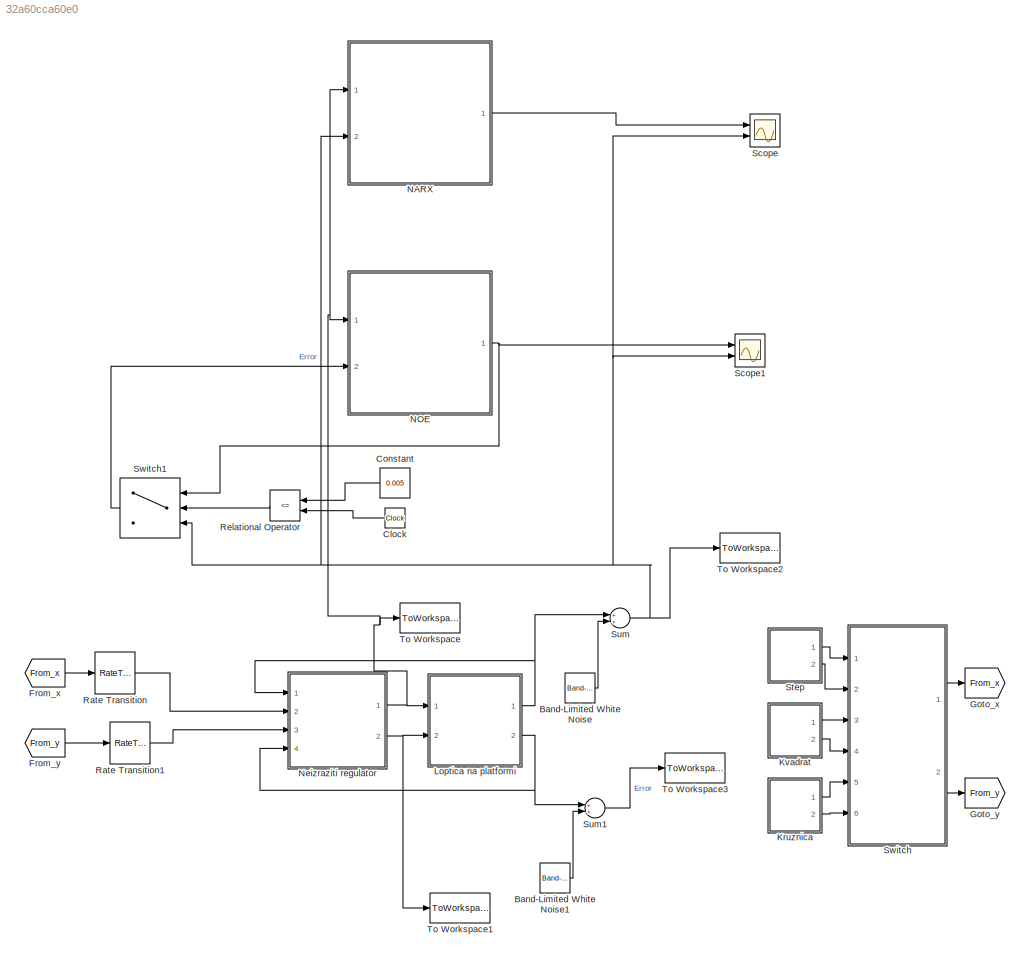
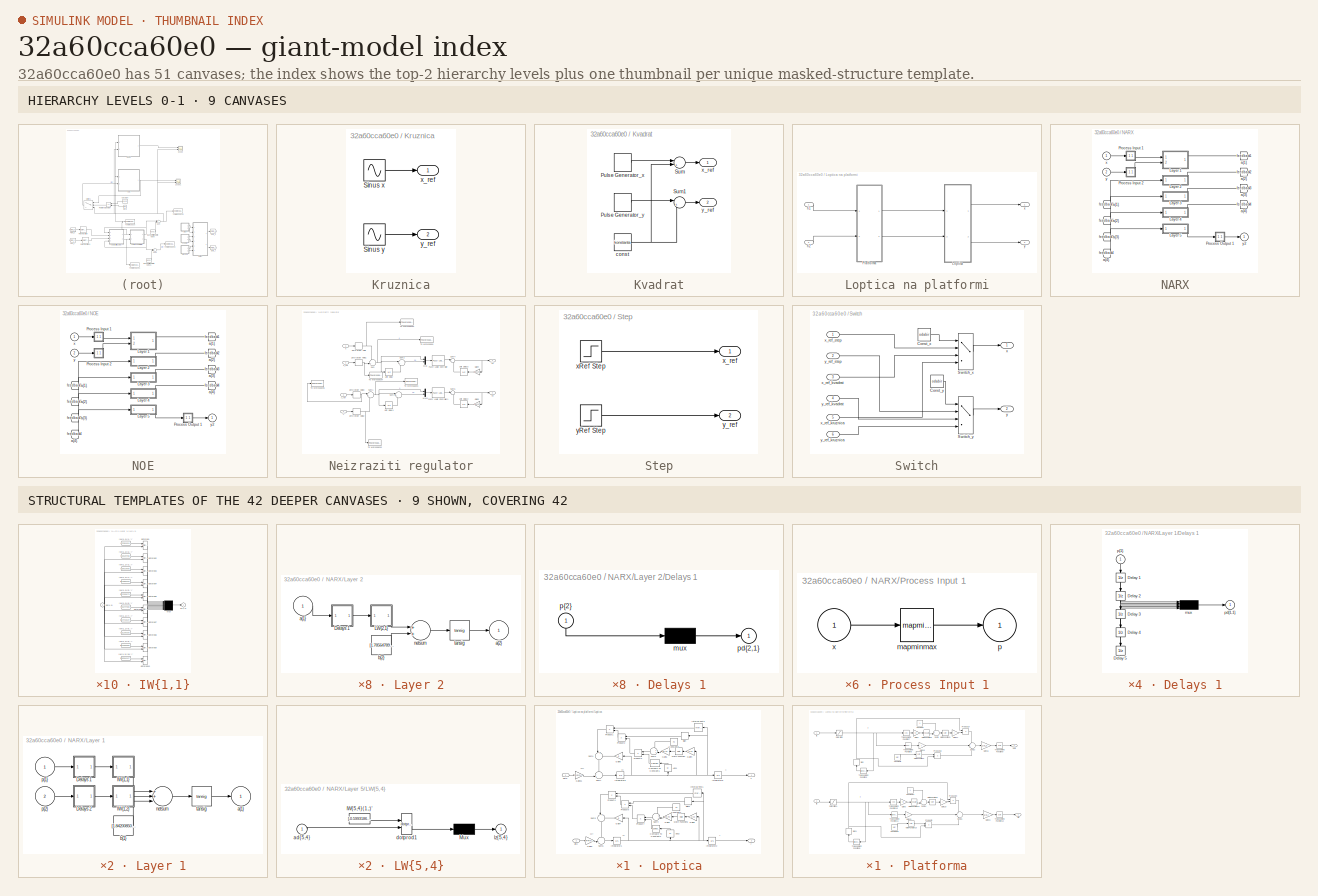
[diagram: thumbnail index - top-2 hierarchy levels (9 canvases) + 9 structural-template representatives of the remaining 42 canvases]
MODEL slx_32a60cca60e0
KIND model
CONFIG AbsTol = auto
CONFIG EnableMultiTasking = on
CONFIG FixedStep = auto
CONFIG MaxStep = auto
CONFIG MinStep = auto
CONFIG RelTol = 1e-3
CONFIG SampleTimeConstraint = Unconstrained
CONFIG Solver = ode45
CONFIG SolverName = ode45
CONFIG StartTime = 0.0
CONFIG StopTime = t_sim
BLOCK [Reference] Band-Limited White Noise  REF=simulink/Sources/Band-Limited
White Noise
  Ports = [0, 1]
  SourceBlock = simulink/Sources/Band-Limited\nWhite Noise
  SourceProductBaseCode = SL
  SourceProductName = Simulink
  SourceType = Band-Limited White Noise.
BLOCK [Reference] Band-Limited White Noise1  REF=simulink/Sources/Band-Limited
White Noise
  Ports = [0, 1]
  SourceBlock = simulink/Sources/Band-Limited\nWhite Noise
  SourceProductBaseCode = SL
  SourceProductName = Simulink
  SourceType = Band-Limited White Noise.
BLOCK [Clock] Clock
BLOCK [Constant] Constant
  OutDataTypeStr = double
  SampleTime = -1
  Value = 0.005
BLOCK [From] From_x
  GotoTag = From_x
BLOCK [From] From_y
  GotoTag = From_y
BLOCK [Goto] Goto_x
  GotoTag = From_x
BLOCK [Goto] Goto_y
  GotoTag = From_y
BLOCK [SubSystem] Kruznica
  Ports = [0, 2]
  RequestExecContextInheritance = off
BLOCK [Sin] Kruznica/Sinus x
  Amplitude = A_x
  Bias = x0
  Frequency = freq_x
  Phase = phase_x
  Ports = [0, 1]
  SampleTime = 0
BLOCK [Sin] Kruznica/Sinus y
  Amplitude = A_y
  Bias = y0
  Frequency = freq_y
  Phase = phase_y
  Ports = [0, 1]
  SampleTime = 0
BLOCK [Outport] Kruznica/x_ref
  IconDisplay = Port number
BLOCK [Outport] Kruznica/y_ref
  IconDisplay = Port number
  Port = 2
BLOCK [SubSystem] Kvadrat
  Ports = [0, 2]
  RequestExecContextInheritance = off
BLOCK [DiscretePulseGenerator] Kvadrat/Pulse Generator_x
  Amplitude = Ak_x
  Period = period_x
  PhaseDelay = phasedelay_x
  Ports = [0, 1]
  PulseType = Time based
  PulseWidth = pw_x
BLOCK [DiscretePulseGenerator] Kvadrat/Pulse Generator_y
  Amplitude = Ak_y
  Period = period_y
  PhaseDelay = phasedelay_y
  Ports = [0, 1]
  PulseType = Time based
  PulseWidth = pw_y
BLOCK [Sum] Kvadrat/Sum
  IconShape = round
  InputSameDT = off
  Inputs = |++
  OutDataTypeStr = Inherit: Inherit via internal rule
  Ports = [2, 1]
  SaturateOnIntegerOverflow = off
BLOCK [Sum] Kvadrat/Sum1
  IconShape = round
  InputSameDT = off
  Inputs = |++
  OutDataTypeStr = Inherit: Inherit via internal rule
  Ports = [2, 1]
  SaturateOnIntegerOverflow = off
BLOCK [Constant] Kvadrat/const
  Value = konstanta
BLOCK [Outport] Kvadrat/x_ref
  IconDisplay = Port number
BLOCK [Outport] Kvadrat/y_ref
  IconDisplay = Port number
  Port = 2
BLOCK [SubSystem] Loptica na platformi
  Ports = [2, 2]
  RequestExecContextInheritance = off
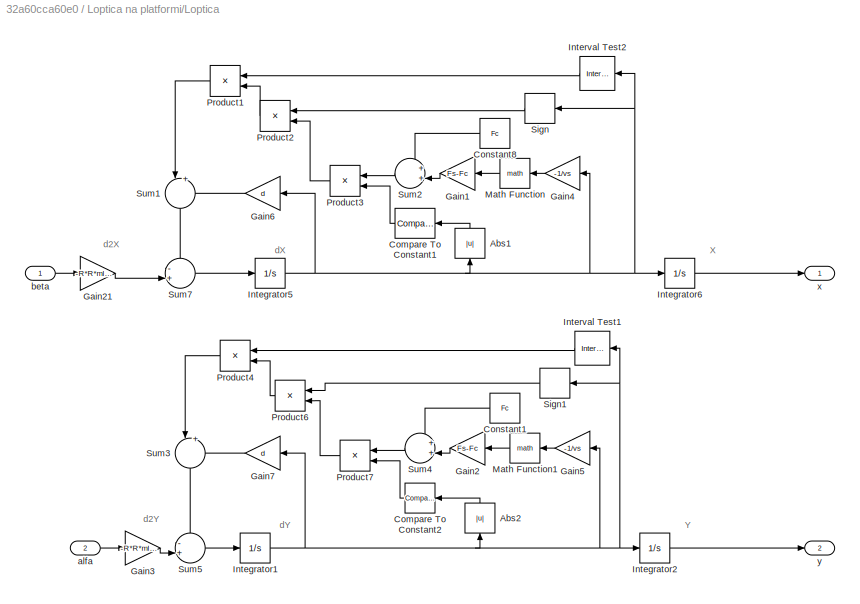
BLOCK [SubSystem] Loptica na platformi/Loptica
  Ports = [2, 2]
  RequestExecContextInheritance = off
BLOCK [Abs] Loptica na platformi/Loptica/Abs1
  SaturateOnIntegerOverflow = off
BLOCK [Abs] Loptica na platformi/Loptica/Abs2
  SaturateOnIntegerOverflow = off
BLOCK [Reference] Loptica na platformi/Loptica/Compare To Constant1  REF=simulink/Logic and Bit
Operations/Compare
To Constant
  Ports = [1, 1]
  SourceBlock = simulink/Logic and Bit\nOperations/Compare\nTo Constant
  SourceProductBaseCode = SL
  SourceProductName = Simulink
  SourceType = Compare To Constant
BLOCK [Reference] Loptica na platformi/Loptica/Compare To Constant2  REF=simulink/Logic and Bit
Operations/Compare
To Constant
  Ports = [1, 1]
  SourceBlock = simulink/Logic and Bit\nOperations/Compare\nTo Constant
  SourceProductBaseCode = SL
  SourceProductName = Simulink
  SourceType = Compare To Constant
BLOCK [Constant] Loptica na platformi/Loptica/Constant1
  SampleTime = 0
  Value = Fc
BLOCK [Constant] Loptica na platformi/Loptica/Constant8
  SampleTime = 0
  Value = Fc
BLOCK [Gain] Loptica na platformi/Loptica/Gain1
  Gain = Fs-Fc
  SaturateOnIntegerOverflow = off
BLOCK [Gain] Loptica na platformi/Loptica/Gain2
  Gain = Fs-Fc
  SaturateOnIntegerOverflow = off
BLOCK [Gain] Loptica na platformi/Loptica/Gain21
  Gain = -R*R*ml*g/(R*R*ml+Jl)
  OutDataTypeStr = Inherit: Inherit via internal rule
  ParamDataTypeStr = Inherit: Inherit via internal rule
  SaturateOnIntegerOverflow = off
BLOCK [Gain] Loptica na platformi/Loptica/Gain3
  Gain = -R*R*ml*g/(R*R*ml+Jl)
  OutDataTypeStr = Inherit: Inherit via internal rule
  ParamDataTypeStr = Inherit: Inherit via internal rule
  SaturateOnIntegerOverflow = off
BLOCK [Gain] Loptica na platformi/Loptica/Gain4
  Gain = -1/vs
  SaturateOnIntegerOverflow = off
BLOCK [Gain] Loptica na platformi/Loptica/Gain5
  Gain = -1/vs
  SaturateOnIntegerOverflow = off
BLOCK [Gain] Loptica na platformi/Loptica/Gain6
  Gain = d
  SaturateOnIntegerOverflow = off
BLOCK [Gain] Loptica na platformi/Loptica/Gain7
  Gain = d
  SaturateOnIntegerOverflow = off
BLOCK [Integrator] Loptica na platformi/Loptica/Integrator1
  Ports = [1, 1]
BLOCK [Integrator] Loptica na platformi/Loptica/Integrator2
  InitialCondition = y0_loptica
  Ports = [1, 1]
BLOCK [Integrator] Loptica na platformi/Loptica/Integrator5
  Ports = [1, 1]
BLOCK [Integrator] Loptica na platformi/Loptica/Integrator6
  InitialCondition = x0_loptica
  Ports = [1, 1]
BLOCK [Reference] Loptica na platformi/Loptica/Interval Test1  REF=simulink/Logic and Bit
Operations/Interval Test
  Ports = [1, 1]
  SourceBlock = simulink/Logic and Bit\nOperations/Interval Test
  SourceProductBaseCode = SL
  SourceProductName = Simulink
  SourceType = Interval Test
BLOCK [Reference] Loptica na platformi/Loptica/Interval Test2  REF=simulink/Logic and Bit
Operations/Interval Test
  Ports = [1, 1]
  SourceBlock = simulink/Logic and Bit\nOperations/Interval Test
  SourceProductBaseCode = SL
  SourceProductName = Simulink
  SourceType = Interval Test
BLOCK [Math] Loptica na platformi/Loptica/Math Function
  Ports = [1, 1]
BLOCK [Math] Loptica na platformi/Loptica/Math Function1
  Ports = [1, 1]
BLOCK [Product] Loptica na platformi/Loptica/Product1
  InputSameDT = off
  OutDataTypeStr = Inherit: Inherit via internal rule
  Ports = [2, 1]
  SaturateOnIntegerOverflow = off
BLOCK [Product] Loptica na platformi/Loptica/Product2
  InputSameDT = off
  OutDataTypeStr = Inherit: Inherit via internal rule
  Ports = [2, 1]
  SaturateOnIntegerOverflow = off
BLOCK [Product] Loptica na platformi/Loptica/Product3
  InputSameDT = off
  OutDataTypeStr = Inherit: Inherit via internal rule
  Ports = [2, 1]
  SaturateOnIntegerOverflow = off
BLOCK [Product] Loptica na platformi/Loptica/Product4
  InputSameDT = off
  OutDataTypeStr = Inherit: Inherit via internal rule
  Ports = [2, 1]
  SaturateOnIntegerOverflow = off
BLOCK [Product] Loptica na platformi/Loptica/Product6
  InputSameDT = off
  OutDataTypeStr = Inherit: Inherit via internal rule
  Ports = [2, 1]
  SaturateOnIntegerOverflow = off
BLOCK [Product] Loptica na platformi/Loptica/Product7
  InputSameDT = off
  OutDataTypeStr = Inherit: Inherit via internal rule
  Ports = [2, 1]
  SaturateOnIntegerOverflow = off
BLOCK [Signum] Loptica na platformi/Loptica/Sign
BLOCK [Signum] Loptica na platformi/Loptica/Sign1
BLOCK [Sum] Loptica na platformi/Loptica/Sum1
  IconShape = round
  InputSameDT = off
  Inputs = |++
  OutDataTypeStr = Inherit: Inherit via internal rule
  Ports = [2, 1]
  SaturateOnIntegerOverflow = off
BLOCK [Sum] Loptica na platformi/Loptica/Sum2
  IconShape = round
  InputSameDT = off
  Inputs = ++|
  OutDataTypeStr = Inherit: Inherit via internal rule
  Ports = [2, 1]
  SaturateOnIntegerOverflow = off
BLOCK [Sum] Loptica na platformi/Loptica/Sum3
  IconShape = round
  InputSameDT = off
  Inputs = |++
  OutDataTypeStr = Inherit: Inherit via internal rule
  Ports = [2, 1]
  SaturateOnIntegerOverflow = off
BLOCK [Sum] Loptica na platformi/Loptica/Sum4
  IconShape = round
  InputSameDT = off
  Inputs = ++|
  OutDataTypeStr = Inherit: Inherit via internal rule
  Ports = [2, 1]
  SaturateOnIntegerOverflow = off
BLOCK [Sum] Loptica na platformi/Loptica/Sum5
  IconShape = round
  InputSameDT = off
  Inputs = -+|
  OutDataTypeStr = Inherit: Inherit via internal rule
  Ports = [2, 1]
  SaturateOnIntegerOverflow = off
BLOCK [Sum] Loptica na platformi/Loptica/Sum7
  IconShape = round
  InputSameDT = off
  Inputs = -+|
  OutDataTypeStr = Inherit: Inherit via internal rule
  Ports = [2, 1]
  SaturateOnIntegerOverflow = off
BLOCK [Inport] Loptica na platformi/Loptica/alfa
  IconDisplay = Port number
  Port = 2
BLOCK [Inport] Loptica na platformi/Loptica/beta
  IconDisplay = Port number
BLOCK [Outport] Loptica na platformi/Loptica/x
  IconDisplay = Port number
BLOCK [Outport] Loptica na platformi/Loptica/y
  IconDisplay = Port number
  Port = 2
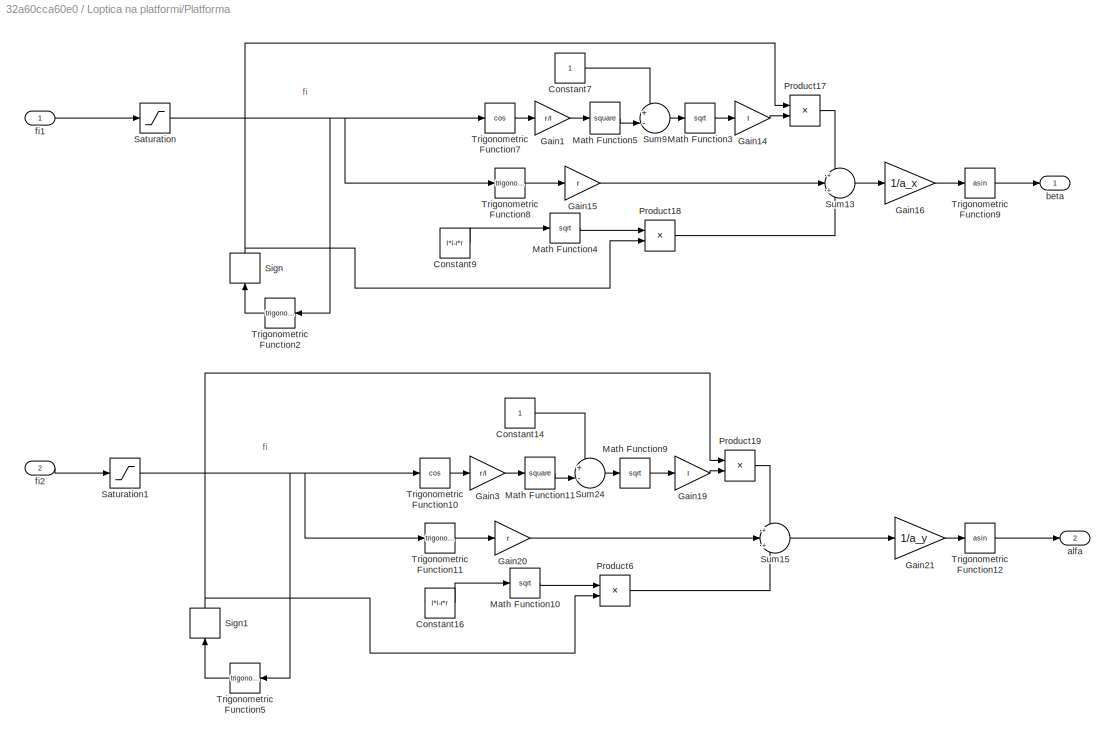
BLOCK [SubSystem] Loptica na platformi/Platforma
  Ports = [2, 2]
  RequestExecContextInheritance = off
BLOCK [Constant] Loptica na platformi/Platforma/Constant14
  SampleTime = 0
BLOCK [Constant] Loptica na platformi/Platforma/Constant16
  SampleTime = 0
  Value = l*l-r*r
BLOCK [Constant] Loptica na platformi/Platforma/Constant7
  SampleTime = 0
BLOCK [Constant] Loptica na platformi/Platforma/Constant9
  SampleTime = 0
  Value = l*l-r*r
BLOCK [Gain] Loptica na platformi/Platforma/Gain1
  Gain = r/l
  OutDataTypeStr = Inherit: Inherit via internal rule
  ParamDataTypeStr = Inherit: Inherit via internal rule
  SaturateOnIntegerOverflow = off
BLOCK [Gain] Loptica na platformi/Platforma/Gain14
  Gain = l
  OutDataTypeStr = Inherit: Inherit via internal rule
  ParamDataTypeStr = Inherit: Inherit via internal rule
  SaturateOnIntegerOverflow = off
BLOCK [Gain] Loptica na platformi/Platforma/Gain15
  Gain = r
  OutDataTypeStr = Inherit: Inherit via internal rule
  ParamDataTypeStr = Inherit: Inherit via internal rule
  SaturateOnIntegerOverflow = off
BLOCK [Gain] Loptica na platformi/Platforma/Gain16
  Gain = 1/a_x
  OutDataTypeStr = Inherit: Inherit via internal rule
  ParamDataTypeStr = Inherit: Inherit via internal rule
  SaturateOnIntegerOverflow = off
BLOCK [Gain] Loptica na platformi/Platforma/Gain19
  Gain = l
  OutDataTypeStr = Inherit: Inherit via internal rule
  ParamDataTypeStr = Inherit: Inherit via internal rule
  SaturateOnIntegerOverflow = off
BLOCK [Gain] Loptica na platformi/Platforma/Gain20
  Gain = r
  OutDataTypeStr = Inherit: Inherit via internal rule
  ParamDataTypeStr = Inherit: Inherit via internal rule
  SaturateOnIntegerOverflow = off
BLOCK [Gain] Loptica na platformi/Platforma/Gain21
  Gain = 1/a_y
  OutDataTypeStr = Inherit: Inherit via internal rule
  ParamDataTypeStr = Inherit: Inherit via internal rule
  SaturateOnIntegerOverflow = off
BLOCK [Gain] Loptica na platformi/Platforma/Gain3
  Gain = r/l
  OutDataTypeStr = Inherit: Inherit via internal rule
  ParamDataTypeStr = Inherit: Inherit via internal rule
  SaturateOnIntegerOverflow = off
BLOCK [Math] Loptica na platformi/Platforma/Math Function10
  Operator = sqrt
  Ports = [1, 1]
BLOCK [Math] Loptica na platformi/Platforma/Math Function11
  Operator = square
  Ports = [1, 1]
BLOCK [Math] Loptica na platformi/Platforma/Math Function3
  Operator = sqrt
  Ports = [1, 1]
BLOCK [Math] Loptica na platformi/Platforma/Math Function4
  Operator = sqrt
  Ports = [1, 1]
BLOCK [Math] Loptica na platformi/Platforma/Math Function5
  Operator = square
  Ports = [1, 1]
BLOCK [Math] Loptica na platformi/Platforma/Math Function9
  Operator = sqrt
  Ports = [1, 1]
BLOCK [Product] Loptica na platformi/Platforma/Product17
  InputSameDT = off
  OutDataTypeStr = Inherit: Inherit via internal rule
  Ports = [2, 1]
  SaturateOnIntegerOverflow = off
BLOCK [Product] Loptica na platformi/Platforma/Product18
  InputSameDT = off
  OutDataTypeStr = Inherit: Inherit via internal rule
  Ports = [2, 1]
  SaturateOnIntegerOverflow = off
BLOCK [Product] Loptica na platformi/Platforma/Product19
  InputSameDT = off
  OutDataTypeStr = Inherit: Inherit via internal rule
  Ports = [2, 1]
  SaturateOnIntegerOverflow = off
BLOCK [Product] Loptica na platformi/Platforma/Product6
  InputSameDT = off
  OutDataTypeStr = Inherit: Inherit via internal rule
  Ports = [2, 1]
  SaturateOnIntegerOverflow = off
BLOCK [Saturate] Loptica na platformi/Platforma/Saturation
  InputPortMap = u0
  LowerLimit = -pi/2
  Ports = [1, 1]
  UpperLimit = pi/2
BLOCK [Saturate] Loptica na platformi/Platforma/Saturation1
  InputPortMap = u0
  LowerLimit = -pi/2
  Ports = [1, 1]
  UpperLimit = pi/2
BLOCK [Signum] Loptica na platformi/Platforma/Sign
  ZeroCross = off
BLOCK [Signum] Loptica na platformi/Platforma/Sign1
  ZeroCross = off
BLOCK [Sum] Loptica na platformi/Platforma/Sum13
  IconShape = round
  Inputs = +|+|-
  OutDataTypeStr = Inherit: Inherit via internal rule
  Ports = [3, 1]
  SaturateOnIntegerOverflow = off
BLOCK [Sum] Loptica na platformi/Platforma/Sum15
  IconShape = round
  Inputs = +|+|-
  OutDataTypeStr = Inherit: Inherit via internal rule
  Ports = [3, 1]
  SaturateOnIntegerOverflow = off
BLOCK [Sum] Loptica na platformi/Platforma/Sum24
  IconShape = round
  InputSameDT = off
  Inputs = +-|
  OutDataTypeStr = Inherit: Inherit via internal rule
  Ports = [2, 1]
  SaturateOnIntegerOverflow = off
BLOCK [Sum] Loptica na platformi/Platforma/Sum9
  IconShape = round
  InputSameDT = off
  Inputs = +-|
  OutDataTypeStr = Inherit: Inherit via internal rule
  Ports = [2, 1]
  SaturateOnIntegerOverflow = off
BLOCK [Trigonometry] Loptica na platformi/Platforma/Trigonometric Function10
  Operator = cos
  Ports = [1, 1]
BLOCK [Trigonometry] Loptica na platformi/Platforma/Trigonometric Function11
  Ports = [1, 1]
BLOCK [Trigonometry] Loptica na platformi/Platforma/Trigonometric Function12
  Operator = asin
  Ports = [1, 1]
BLOCK [Trigonometry] Loptica na platformi/Platforma/Trigonometric Function2
  Ports = [1, 1]
BLOCK [Trigonometry] Loptica na platformi/Platforma/Trigonometric Function5
  Ports = [1, 1]
BLOCK [Trigonometry] Loptica na platformi/Platforma/Trigonometric Function7
  Operator = cos
  Ports = [1, 1]
BLOCK [Trigonometry] Loptica na platformi/Platforma/Trigonometric Function8
  Ports = [1, 1]
BLOCK [Trigonometry] Loptica na platformi/Platforma/Trigonometric Function9
  Operator = asin
  Ports = [1, 1]
BLOCK [Outport] Loptica na platformi/Platforma/alfa
  IconDisplay = Port number
  Port = 2
BLOCK [Outport] Loptica na platformi/Platforma/beta
  IconDisplay = Port number
BLOCK [Inport] Loptica na platformi/Platforma/fi1
  IconDisplay = Port number
BLOCK [Inport] Loptica na platformi/Platforma/fi2
  IconDisplay = Port number
  Port = 2
BLOCK [Inport] Loptica na platformi/fi1
  IconDisplay = Port number
BLOCK [Inport] Loptica na platformi/fi2
  IconDisplay = Port number
  Port = 2
BLOCK [Outport] Loptica na platformi/x
  IconDisplay = Port number
BLOCK [Outport] Loptica na platformi/y
  IconDisplay = Port number
  Port = 2
BLOCK [SubSystem] NARX
  Ports = [2, 1]
  RequestExecContextInheritance = off
BLOCK [From] NARX/ a{1} 
  GotoTag = feedback1
BLOCK [From] NARX/ a{2} 
  GotoTag = feedback2
BLOCK [From] NARX/ a{3} 
  GotoTag = feedback3
BLOCK [From] NARX/ a{4} 
  GotoTag = feedback4
BLOCK [SubSystem] NARX/Layer 1
  Ports = [2, 1]
  RequestExecContextInheritance = off
BLOCK [SubSystem] NARX/Layer 1/Delays 1
  Ports = [1, 1]
  RequestExecContextInheritance = off
BLOCK [UnitDelay] NARX/Layer 1/Delays 1/Delay 1
  InitialCondition = pi_input_1_delayed_1
  SampleTime = 0.001
BLOCK [UnitDelay] NARX/Layer 1/Delays 1/Delay 2
  InitialCondition = pi_input_1_delayed_2
  SampleTime = 0.001
BLOCK [UnitDelay] NARX/Layer 1/Delays 1/Delay 3
  InitialCondition = pi_input_1_delayed_3
  SampleTime = 0.001
BLOCK [UnitDelay] NARX/Layer 1/Delays 1/Delay 4
  InitialCondition = pi_input_1_delayed_4
  SampleTime = 0.001
BLOCK [UnitDelay] NARX/Layer 1/Delays 1/Delay 5
  InitialCondition = pi_input_1_delayed_5
  SampleTime = 0.001
BLOCK [Mux] NARX/Layer 1/Delays 1/mux
  Inputs = 5
  Ports = [5, 1]
BLOCK [Outport] NARX/Layer 1/Delays 1/pd{1,1}
  IconDisplay = Port number
BLOCK [Inport] NARX/Layer 1/Delays 1/p{1}
  IconDisplay = Port number
  PortDimensions = 1
  SampleTime = 0.001
BLOCK [SubSystem] NARX/Layer 1/Delays 2
  Ports = [1, 1]
  RequestExecContextInheritance = off
BLOCK [UnitDelay] NARX/Layer 1/Delays 2/Delay 1
  InitialCondition = pi_input_2_delayed_1
  SampleTime = 0.001
BLOCK [UnitDelay] NARX/Layer 1/Delays 2/Delay 2
  InitialCondition = pi_input_2_delayed_2
  SampleTime = 0.001
BLOCK [UnitDelay] NARX/Layer 1/Delays 2/Delay 3
  InitialCondition = pi_input_2_delayed_3
  SampleTime = 0.001
BLOCK [UnitDelay] NARX/Layer 1/Delays 2/Delay 4
  InitialCondition = pi_input_2_delayed_4
  SampleTime = 0.001
BLOCK [UnitDelay] NARX/Layer 1/Delays 2/Delay 5
  InitialCondition = pi_input_2_delayed_5
  SampleTime = 0.001
BLOCK [Mux] NARX/Layer 1/Delays 2/mux
  Inputs = 5
  Ports = [5, 1]
BLOCK [Outport] NARX/Layer 1/Delays 2/pd{1,2}
  IconDisplay = Port number
BLOCK [Inport] NARX/Layer 1/Delays 2/p{1}
  IconDisplay = Port number
  PortDimensions = 1
  SampleTime = 0.001
BLOCK [SubSystem] NARX/Layer 1/IW{1,1}
  Ports = [1, 1]
  RequestExecContextInheritance = off
BLOCK [Constant] NARX/Layer 1/IW{1,1}/IW{1,1}(1,:)'
  Value = [-0.78041545804284273568640628582215867936611175537109375;-0.1889168057158937263917408699853694997727870941162109375;0.624203755586431707769179411116056144237518310546875;0.38254385586967643018141416177968494594097137451171875;0.11132858481816297613331556703997193835675716400146484375]
BLOCK [Constant] NARX/Layer 1/IW{1,1}/IW{1,1}(10,:)'
  Value = [0.06584347744638797961247433931930572725832462310791015625;-0.14742080631494014486548849163227714598178863525390625;-0.449429553740740950207310788755421526730060577392578125;-0.10537733622991619919506689484478556551039218902587890625;0.57322556196782226134445181742194108664989471435546875]
BLOCK [Constant] NARX/Layer 1/IW{1,1}/IW{1,1}(2,:)'
  Value = [-0.26207884808871162451993086506263352930545806884765625;0.06367181522086796940929076527027064003050327301025390625;0.06797795577746899853277540159979253076016902923583984375;0.469471262437006375822790005258866585791110992431640625;0.196872246361272262848984837546595372259616851806640625]
BLOCK [Constant] NARX/Layer 1/IW{1,1}/IW{1,1}(3,:)'
  Value = [-0.06105086842811814629161659695455455221235752105712890625;0.4362035008337665775712821414344944059848785400390625;0.4757244892843950356819959779386408627033233642578125;-0.332950625751637419025286135365604422986507415771484375;-0.1849610518275301984658653964288532733917236328125]
BLOCK [Constant] NARX/Layer 1/IW{1,1}/IW{1,1}(4,:)'
  Value = [0.1408234223110425842317994238328537903726100921630859375;-0.13205465366012736350143086383468471467494964599609375;-0.493931339703755745151880773846642114222049713134765625;-0.2126283255869568511453593373516923747956752777099609375;-0.12407140487677166540425588436846737749874591827392578125]
BLOCK [Constant] NARX/Layer 1/IW{1,1}/IW{1,1}(5,:)'
  Value = [0.476091734332447114041997338063083589076995849609375;-0.63150999375165917104624213607166893780231475830078125;-0.515564815245219687511735173757188022136688232421875;-0.1465624758355017487332361270091496407985687255859375;0.2165017929034026844536953149145119823515415191650390625]
BLOCK [Constant] NARX/Layer 1/IW{1,1}/IW{1,1}(6,:)'
  Value = [-0.324448007382350411820226554482360370457172393798828125;-0.166002451601267642100623334044939838349819183349609375;0.297221055954937696252926571105490438640117645263671875;0.380975071646488083754178433082415722310543060302734375;-0.233386025845927436161986179286031983792781829833984375]
BLOCK [Constant] NARX/Layer 1/IW{1,1}/IW{1,1}(7,:)'
  Value = [0.1471013793978408756846221194791723974049091339111328125;-0.039050046429146945126120726854423992335796356201171875;0.441337535111876066995506562307127751410007476806640625;0.1489052345501019336548864657743251882493495941162109375;0.01257927307039984066161508735604002140462398529052734375]
BLOCK [Constant] NARX/Layer 1/IW{1,1}/IW{1,1}(8,:)'
  Value = [-0.11653309609751634490226734897078131325542926788330078125;0.377889179667925290129204540789942257106304168701171875;0.2200242920649362332596865599043667316436767578125;-0.07683035892270144440185930534426006488502025604248046875;0.462132111220164620846162506495602428913116455078125]
BLOCK [Constant] NARX/Layer 1/IW{1,1}/IW{1,1}(9,:)'
  Value = [0.11550266997215274944466045781155116856098175048828125;0.387383375581388078590094892206252552568912506103515625;-0.62457516979531668699365809516166336834430694580078125;-0.0744787101351869207377376369549892842769622802734375;0.83112863904779332724359619533061049878597259521484375]
BLOCK [Mux] NARX/Layer 1/IW{1,1}/Mux
  Inputs = 10
  Ports = [10, 1]
BLOCK [Reference] NARX/Layer 1/IW{1,1}/dotprod1  REF=neural/Weight Functions/dotprod
  Ports = [2, 1]
  SourceBlock = neural/Weight Functions/dotprod
  SourceProductBaseCode = NN
  SourceProductName = Neural Network Toolbox
  SourceType = DOTPROD
BLOCK [Reference] NARX/Layer 1/IW{1,1}/dotprod10  REF=neural/Weight Functions/dotprod
  Ports = [2, 1]
  SourceBlock = neural/Weight Functions/dotprod
  SourceProductBaseCode = NN
  SourceProductName = Neural Network Toolbox
  SourceType = DOTPROD
BLOCK [Reference] NARX/Layer 1/IW{1,1}/dotprod2  REF=neural/Weight Functions/dotprod
  Ports = [2, 1]
  SourceBlock = neural/Weight Functions/dotprod
  SourceProductBaseCode = NN
  SourceProductName = Neural Network Toolbox
  SourceType = DOTPROD
BLOCK [Reference] NARX/Layer 1/IW{1,1}/dotprod3  REF=neural/Weight Functions/dotprod
  Ports = [2, 1]
  SourceBlock = neural/Weight Functions/dotprod
  SourceProductBaseCode = NN
  SourceProductName = Neural Network Toolbox
  SourceType = DOTPROD
BLOCK [Reference] NARX/Layer 1/IW{1,1}/dotprod4  REF=neural/Weight Functions/dotprod
  Ports = [2, 1]
  SourceBlock = neural/Weight Functions/dotprod
  SourceProductBaseCode = NN
  SourceProductName = Neural Network Toolbox
  SourceType = DOTPROD
BLOCK [Reference] NARX/Layer 1/IW{1,1}/dotprod5  REF=neural/Weight Functions/dotprod
  Ports = [2, 1]
  SourceBlock = neural/Weight Functions/dotprod
  SourceProductBaseCode = NN
  SourceProductName = Neural Network Toolbox
  SourceType = DOTPROD
BLOCK [Reference] NARX/Layer 1/IW{1,1}/dotprod6  REF=neural/Weight Functions/dotprod
  Ports = [2, 1]
  SourceBlock = neural/Weight Functions/dotprod
  SourceProductBaseCode = NN
  SourceProductName = Neural Network Toolbox
  SourceType = DOTPROD
BLOCK [Reference] NARX/Layer 1/IW{1,1}/dotprod7  REF=neural/Weight Functions/dotprod
  Ports = [2, 1]
  SourceBlock = neural/Weight Functions/dotprod
  SourceProductBaseCode = NN
  SourceProductName = Neural Network Toolbox
  SourceType = DOTPROD
BLOCK [Reference] NARX/Layer 1/IW{1,1}/dotprod8  REF=neural/Weight Functions/dotprod
  Ports = [2, 1]
  SourceBlock = neural/Weight Functions/dotprod
  SourceProductBaseCode = NN
  SourceProductName = Neural Network Toolbox
  SourceType = DOTPROD
BLOCK [Reference] NARX/Layer 1/IW{1,1}/dotprod9  REF=neural/Weight Functions/dotprod
  Ports = [2, 1]
  SourceBlock = neural/Weight Functions/dotprod
  SourceProductBaseCode = NN
  SourceProductName = Neural Network Toolbox
  SourceType = DOTPROD
BLOCK [Outport] NARX/Layer 1/IW{1,1}/iz{1,1}
  IconDisplay = Port number
BLOCK [Inport] NARX/Layer 1/IW{1,1}/pd{1,1}
  IconDisplay = Port number
  PortDimensions = 5
  SampleTime = 0.001
BLOCK [SubSystem] NARX/Layer 1/IW{1,2}
  Ports = [1, 1]
  RequestExecContextInheritance = off
BLOCK [Constant] NARX/Layer 1/IW{1,2}/IW{1,2}(1,:)'
  Value = [-0.211405721260622792012640047687455080449581146240234375;0.9834201495236669643418281339108943939208984375;0.078318433789418495649670148850418627262115478515625;0.62573603116239862043101993549498729407787322998046875;-0.4606972890689788879825528056244365870952606201171875]
BLOCK [Constant] NARX/Layer 1/IW{1,2}/IW{1,2}(10,:)'
  Value = [0.64056145534157327148250260506756603717803955078125;0.600565723799352024769859781372360885143280029296875;0.2156582058706855153928927393280901014804840087890625;0.6943897986555647161566184877301566302776336669921875;-0.60339661147887768688491405555396340787410736083984375]
BLOCK [Constant] NARX/Layer 1/IW{1,2}/IW{1,2}(2,:)'
  Value = [0.2759148079449758039771722906152717769145965576171875;-0.42325449718057639447721385295153595507144927978515625;-0.1532778579257629003596008487875224091112613677978515625;-0.482010946294399167388888827190385200083255767822265625;-0.664216850422650662011392341810278594493865966796875]
BLOCK [Constant] NARX/Layer 1/IW{1,2}/IW{1,2}(3,:)'
  Value = [-0.39535090783148596482732273216242901980876922607421875;0.0030548046006235456302502218051131421816535294055938720703125;-0.381754713214691510092535509102162905037403106689453125;-0.137371181736283987095958991631050594151020050048828125;-0.54520998452879265716575218903017230331897735595703125]
BLOCK [Constant] NARX/Layer 1/IW{1,2}/IW{1,2}(4,:)'
  Value = [-0.85537959523864859345820832459139637649059295654296875;-0.003498486669252578139255316358458003378473222255706787109375;0.229525682886273785232589261795510537922382354736328125;-0.69954557852212229107635721447877585887908935546875;0.003780760113263581002895907801075736642815172672271728515625]
BLOCK [Constant] NARX/Layer 1/IW{1,2}/IW{1,2}(5,:)'
  Value = [-0.6704540284077300515974684458342380821704864501953125;-0.1356854228754304225734728106544935144484043121337890625;-0.668394792329869869007552551920525729656219482421875;0.44352275149486819483257704632706008851528167724609375;0.1269145397078425274717261572732240892946720123291015625]
BLOCK [Constant] NARX/Layer 1/IW{1,2}/IW{1,2}(6,:)'
  Value = [-0.153383512992241455297204311136738397181034088134765625;-0.1582862661763130562864176908988156355917453765869140625;-0.2420745637484461865174267813927144743502140045166015625;-0.574128226120135476406858288100920617580413818359375;-0.60140197031635145297201461289660073816776275634765625]
BLOCK [Constant] NARX/Layer 1/IW{1,2}/IW{1,2}(7,:)'
  Value = [0.1779458190130129568995442923551308922469615936279296875;0.79003871229958788635627797702909447252750396728515625;0.4392010876973493349595401014084927737712860107421875;0.51372629645238532258844088573823682963848114013671875;0.2078732017274463605982504077474004589021205902099609375]
BLOCK [Constant] NARX/Layer 1/IW{1,2}/IW{1,2}(8,:)'
  Value = [-0.29114437230780498833127012403565458953380584716796875;-0.7687057090658928615312106558121740818023681640625;0.1507041762917487315309728046486270613968372344970703125;-0.3169104871757533192777600561385042965412139892578125;0.475119755527989739984917605397640727460384368896484375]
BLOCK [Constant] NARX/Layer 1/IW{1,2}/IW{1,2}(9,:)'
  Value = [0.58882688215316736357607396712410263717174530029296875;-0.10413231615864219914424637636329862289130687713623046875;0.16252337571316655129294304060749709606170654296875;0.2493172541404560238476051381439901888370513916015625;-1.0104188868762673525480977332335896790027618408203125]
BLOCK [Mux] NARX/Layer 1/IW{1,2}/Mux
  Inputs = 10
  Ports = [10, 1]
BLOCK [Reference] NARX/Layer 1/IW{1,2}/dotprod1  REF=neural/Weight Functions/dotprod
  Ports = [2, 1]
  SourceBlock = neural/Weight Functions/dotprod
  SourceProductBaseCode = NN
  SourceProductName = Neural Network Toolbox
  SourceType = DOTPROD
BLOCK [Reference] NARX/Layer 1/IW{1,2}/dotprod10  REF=neural/Weight Functions/dotprod
  Ports = [2, 1]
  SourceBlock = neural/Weight Functions/dotprod
  SourceProductBaseCode = NN
  SourceProductName = Neural Network Toolbox
  SourceType = DOTPROD
BLOCK [Reference] NARX/Layer 1/IW{1,2}/dotprod2  REF=neural/Weight Functions/dotprod
  Ports = [2, 1]
  SourceBlock = neural/Weight Functions/dotprod
  SourceProductBaseCode = NN
  SourceProductName = Neural Network Toolbox
  SourceType = DOTPROD
BLOCK [Reference] NARX/Layer 1/IW{1,2}/dotprod3  REF=neural/Weight Functions/dotprod
  Ports = [2, 1]
  SourceBlock = neural/Weight Functions/dotprod
  SourceProductBaseCode = NN
  SourceProductName = Neural Network Toolbox
  SourceType = DOTPROD
BLOCK [Reference] NARX/Layer 1/IW{1,2}/dotprod4  REF=neural/Weight Functions/dotprod
  Ports = [2, 1]
  SourceBlock = neural/Weight Functions/dotprod
  SourceProductBaseCode = NN
  SourceProductName = Neural Network Toolbox
  SourceType = DOTPROD
BLOCK [Reference] NARX/Layer 1/IW{1,2}/dotprod5  REF=neural/Weight Functions/dotprod
  Ports = [2, 1]
  SourceBlock = neural/Weight Functions/dotprod
  SourceProductBaseCode = NN
  SourceProductName = Neural Network Toolbox
  SourceType = DOTPROD
BLOCK [Reference] NARX/Layer 1/IW{1,2}/dotprod6  REF=neural/Weight Functions/dotprod
  Ports = [2, 1]
  SourceBlock = neural/Weight Functions/dotprod
  SourceProductBaseCode = NN
  SourceProductName = Neural Network Toolbox
  SourceType = DOTPROD
BLOCK [Reference] NARX/Layer 1/IW{1,2}/dotprod7  REF=neural/Weight Functions/dotprod
  Ports = [2, 1]
  SourceBlock = neural/Weight Functions/dotprod
  SourceProductBaseCode = NN
  SourceProductName = Neural Network Toolbox
  SourceType = DOTPROD
BLOCK [Reference] NARX/Layer 1/IW{1,2}/dotprod8  REF=neural/Weight Functions/dotprod
  Ports = [2, 1]
  SourceBlock = neural/Weight Functions/dotprod
  SourceProductBaseCode = NN
  SourceProductName = Neural Network Toolbox
  SourceType = DOTPROD
BLOCK [Reference] NARX/Layer 1/IW{1,2}/dotprod9  REF=neural/Weight Functions/dotprod
  Ports = [2, 1]
  SourceBlock = neural/Weight Functions/dotprod
  SourceProductBaseCode = NN
  SourceProductName = Neural Network Toolbox
  SourceType = DOTPROD
BLOCK [Outport] NARX/Layer 1/IW{1,2}/iz{1,2}
  IconDisplay = Port number
BLOCK [Inport] NARX/Layer 1/IW{1,2}/pd{1,2}
  IconDisplay = Port number
  PortDimensions = 5
  SampleTime = 0.001
BLOCK [Outport] NARX/Layer 1/a{1}
  IconDisplay = Port number
  InitialOutput = [0;0;0;0;0;0;0;0;0;0]
BLOCK [Constant] NARX/Layer 1/b{1}
  Value = [1.8420085065380951139246690217987634241580963134765625;-1.6317189923451882460625483872718177735805511474609375;-0.78080933606115199285824246544507332146167755126953125;-0.90957261639388164997654939725180156528949737548828125;0.0509968115250476750066610520661924965679645538330078125;0.2969327933752257120403328372049145400524139404296875;0.76669410321683806319725817957078106701374053955078125;0.956...<+161ch>
BLOCK [Sum] NARX/Layer 1/netsum
  Inputs = 3
  Ports = [3, 1]
BLOCK [Inport] NARX/Layer 1/p{1}
  IconDisplay = Port number
  PortDimensions = 1
  SampleTime = 0.001
BLOCK [Inport] NARX/Layer 1/p{2}
  IconDisplay = Port number
  Port = 2
  PortDimensions = 1
  SampleTime = 0.001
BLOCK [Reference] NARX/Layer 1/tansig  REF=neural/Transfer Functions/tansig
  Ports = [1, 1]
  SourceBlock = neural/Transfer Functions/tansig
  SourceProductBaseCode = NN
  SourceProductName = Neural Network Toolbox
  SourceType = TANSIG
BLOCK [SubSystem] NARX/Layer 2
  Ports = [1, 1]
  RequestExecContextInheritance = off
BLOCK [SubSystem] NARX/Layer 2/Delays 1
  Ports = [1, 1]
  RequestExecContextInheritance = off
BLOCK [Mux] NARX/Layer 2/Delays 1/mux
  Inputs = 1
  Ports = [1, 1]
BLOCK [Outport] NARX/Layer 2/Delays 1/pd{2,1}
  IconDisplay = Port number
BLOCK [Inport] NARX/Layer 2/Delays 1/p{2}
  IconDisplay = Port number
  PortDimensions = 10
  SampleTime = 0.001
BLOCK [SubSystem] NARX/Layer 2/LW{2,1}
  Ports = [1, 1]
  RequestExecContextInheritance = off
BLOCK [Constant] NARX/Layer 2/LW{2,1}/IW{2,1}(1,:)'
  Value = [-0.751461741877256894639458550955168902873992919921875;0.01402301635471886638584226858483816613443195819854736328125;0.326442792203841147813392353782546706497669219970703125;0.90660022935466921811809015707694925367832183837890625;-0.407952329174343153450621457523084245622158050537109375;0.609601578751406858458494752994738519191741943359375;-0.255621626399888779435087826641392894089221954345703125...<+174ch>
BLOCK [Constant] NARX/Layer 2/LW{2,1}/IW{2,1}(10,:)'
  Value = [0.346581145248940847292118405675864778459072113037109375;-0.101987596917314904398921271422295831143856048583984375;-0.199988337664544435501312591441092081367969512939453125;-0.0897556143633064795750442499411292374134063720703125;-0.194407172548844597859130090000689961016178131103515625;-0.8538132542041305672597673037671484053134918212890625;-0.57795138239333410101750132525921799242496490478515625...<+171ch>
BLOCK [Constant] NARX/Layer 2/LW{2,1}/IW{2,1}(2,:)'
  Value = [0.56213951165120590314216997285257093608379364013671875;-0.40896438246015787143505804124288260936737060546875;-0.273757397181592476709255379319074563682079315185546875;-0.3103497860711339484396376064978539943695068359375;0.280879223850993786637531002270407043397426605224609375;0.89661471211202348197133460416807793080806732177734375;-0.340117465515137384901578343487926758825778961181640625;-0.2497...<+160ch>
BLOCK [Constant] NARX/Layer 2/LW{2,1}/IW{2,1}(3,:)'
  Value = [-0.70409224008847426379276157604181207716464996337890625;0.437857221912158312004947902096319012343883514404296875;0.387908650182214154167326114475145004689693450927734375;-0.313310564539420910445954859824269078671932220458984375;0.5966351041570219226883864394039846956729888916015625;0.25544146338399542628394556231796741485595703125;0.1801270507966407918853946057424764148890972137451171875;-0.1924...<+166ch>
BLOCK [Constant] NARX/Layer 2/LW{2,1}/IW{2,1}(4,:)'
  Value = [-0.46261552944577744028720189817249774932861328125;-0.6083303245955329341398964970721863210201263427734375;0.381563465677544011445121441283845342695713043212890625;0.80056607469864016213279001021874137222766876220703125;0.114817651105901308294932050557690672576427459716796875;-0.31942984216014080889323167866677977144718170166015625;-0.3081261823478540495813149391324259340763092041015625;-0.806724...<+158ch>
BLOCK [Constant] NARX/Layer 2/LW{2,1}/IW{2,1}(5,:)'
  Value = [-0.72268074492281775267343846280709840357303619384765625;-0.8099425973058613781319081681431271135807037353515625;-0.48012472297759967165831085367244668304920196533203125;-0.374216308436248923374733976743300445377826690673828125;0.32503796485929414838977891122340224683284759521484375;0.6499760510715775208012701114057563245296478271484375;0.1020332046731853570253889529340085573494434356689453125;-0...<+168ch>
BLOCK [Constant] NARX/Layer 2/LW{2,1}/IW{2,1}(6,:)'
  Value = [-0.629750293245689096721662281197495758533477783203125;-0.66644903841917801923244724093819968402385711669921875;-0.279327203788677869145118393134907819330692291259765625;-0.440689146090105177133722236249013803899288177490234375;0.309771552515399839489163014150108210742473602294921875;0.460903085493117148363495516605325974524021148681640625;-0.22998472818172943643588723716675303876399993896484375;...<+175ch>
BLOCK [Constant] NARX/Layer 2/LW{2,1}/IW{2,1}(7,:)'
  Value = [0.620637533906118310511601521284319460391998291015625;0.83539867376766940854082577061490155756473541259765625;0.27920936398507711917460483164177276194095611572265625;0.7752021630701910748229011005605570971965789794921875;-0.52686260303715248820566330323345027863979339599609375;-0.072403514346486785857592849424690939486026763916015625;-0.05991633433839561873046619666638434864580631256103515625;0.5...<+164ch>
BLOCK [Constant] NARX/Layer 2/LW{2,1}/IW{2,1}(8,:)'
  Value = [0.27060758154395336827491291842306964099407196044921875;0.608715135034168408623145296587608754634857177734375;0.55085779675167356739251545150182209908962249755859375;-0.51104733314616945794028879390680231153964996337890625;0.07656481679459646583207899084300152026116847991943359375;0.55887912740008005574310345764388330280780792236328125;-0.37549430899164482067220660610473714768886566162109375;-0.7...<+166ch>
BLOCK [Constant] NARX/Layer 2/LW{2,1}/IW{2,1}(9,:)'
  Value = [0.384837743561070311226757212352822534739971160888671875;-0.651296741851778104859249651781283318996429443359375;0.2163767641188421020359555768663994967937469482421875;-0.455812576127146484861185626868973486125469207763671875;-0.91015595086147105252649680551257915794849395751953125;-0.79631028649259560925344203496933914721012115478515625;-0.273943343590692334199587776311091147363185882568359375;0....<+171ch>
BLOCK [Mux] NARX/Layer 2/LW{2,1}/Mux
  Inputs = 10
  Ports = [10, 1]
BLOCK [Inport] NARX/Layer 2/LW{2,1}/ad{2,1}
  IconDisplay = Port number
  PortDimensions = 10
  SampleTime = 0.001
BLOCK [Reference] NARX/Layer 2/LW{2,1}/dotprod1  REF=neural/Weight Functions/dotprod
  Ports = [2, 1]
  SourceBlock = neural/Weight Functions/dotprod
  SourceProductBaseCode = NN
  SourceProductName = Neural Network Toolbox
  SourceType = DOTPROD
BLOCK [Reference] NARX/Layer 2/LW{2,1}/dotprod10  REF=neural/Weight Functions/dotprod
  Ports = [2, 1]
  SourceBlock = neural/Weight Functions/dotprod
  SourceProductBaseCode = NN
  SourceProductName = Neural Network Toolbox
  SourceType = DOTPROD
BLOCK [Reference] NARX/Layer 2/LW{2,1}/dotprod2  REF=neural/Weight Functions/dotprod
  Ports = [2, 1]
  SourceBlock = neural/Weight Functions/dotprod
  SourceProductBaseCode = NN
  SourceProductName = Neural Network Toolbox
  SourceType = DOTPROD
BLOCK [Reference] NARX/Layer 2/LW{2,1}/dotprod3  REF=neural/Weight Functions/dotprod
  Ports = [2, 1]
  SourceBlock = neural/Weight Functions/dotprod
  SourceProductBaseCode = NN
  SourceProductName = Neural Network Toolbox
  SourceType = DOTPROD
BLOCK [Reference] NARX/Layer 2/LW{2,1}/dotprod4  REF=neural/Weight Functions/dotprod
  Ports = [2, 1]
  SourceBlock = neural/Weight Functions/dotprod
  SourceProductBaseCode = NN
  SourceProductName = Neural Network Toolbox
  SourceType = DOTPROD
BLOCK [Reference] NARX/Layer 2/LW{2,1}/dotprod5  REF=neural/Weight Functions/dotprod
  Ports = [2, 1]
  SourceBlock = neural/Weight Functions/dotprod
  SourceProductBaseCode = NN
  SourceProductName = Neural Network Toolbox
  SourceType = DOTPROD
BLOCK [Reference] NARX/Layer 2/LW{2,1}/dotprod6  REF=neural/Weight Functions/dotprod
  Ports = [2, 1]
  SourceBlock = neural/Weight Functions/dotprod
  SourceProductBaseCode = NN
  SourceProductName = Neural Network Toolbox
  SourceType = DOTPROD
BLOCK [Reference] NARX/Layer 2/LW{2,1}/dotprod7  REF=neural/Weight Functions/dotprod
  Ports = [2, 1]
  SourceBlock = neural/Weight Functions/dotprod
  SourceProductBaseCode = NN
  SourceProductName = Neural Network Toolbox
  SourceType = DOTPROD
BLOCK [Reference] NARX/Layer 2/LW{2,1}/dotprod8  REF=neural/Weight Functions/dotprod
  Ports = [2, 1]
  SourceBlock = neural/Weight Functions/dotprod
  SourceProductBaseCode = NN
  SourceProductName = Neural Network Toolbox
  SourceType = DOTPROD
BLOCK [Reference] NARX/Layer 2/LW{2,1}/dotprod9  REF=neural/Weight Functions/dotprod
  Ports = [2, 1]
  SourceBlock = neural/Weight Functions/dotprod
  SourceProductBaseCode = NN
  SourceProductName = Neural Network Toolbox
  SourceType = DOTPROD
BLOCK [Outport] NARX/Layer 2/LW{2,1}/lz{2,1}
  IconDisplay = Port number
BLOCK [Inport] NARX/Layer 2/a{1} 
  IconDisplay = Port number
  PortDimensions = 10
  SampleTime = 0.001
BLOCK [Outport] NARX/Layer 2/a{2}
  IconDisplay = Port number
  InitialOutput = [0;0;0;0;0;0;0;0;0;0]
BLOCK [Constant] NARX/Layer 2/b{2}
  Value = [1.7856478998898819288143613448482938110828399658203125;-1.363202280426936141566329752095043659210205078125;1.1308291989835830282373763111536391079425811767578125;0.534348442996380956770963166491128504276275634765625;0.289070659837180998774641693671583198010921478271484375;-0.2502460788162519378374781808815896511077880859375;0.58002126559116840009977522640838287770748138427734375;0.931646678857204...<+147ch>
BLOCK [Sum] NARX/Layer 2/netsum
  Inputs = 2
  Ports = [2, 1]
BLOCK [Reference] NARX/Layer 2/tansig  REF=neural/Transfer Functions/tansig
  Ports = [1, 1]
  SourceBlock = neural/Transfer Functions/tansig
  SourceProductBaseCode = NN
  SourceProductName = Neural Network Toolbox
  SourceType = TANSIG
BLOCK [SubSystem] NARX/Layer 3
  Ports = [1, 1]
  RequestExecContextInheritance = off
BLOCK [SubSystem] NARX/Layer 3/Delays 1
  Ports = [1, 1]
  RequestExecContextInheritance = off
BLOCK [Mux] NARX/Layer 3/Delays 1/mux
  Inputs = 1
  Ports = [1, 1]
BLOCK [Outport] NARX/Layer 3/Delays 1/pd{3,2}
  IconDisplay = Port number
BLOCK [Inport] NARX/Layer 3/Delays 1/p{3}
  IconDisplay = Port number
  PortDimensions = 10
  SampleTime = 0.001
BLOCK [SubSystem] NARX/Layer 3/LW{3,2}
  Ports = [1, 1]
  RequestExecContextInheritance = off
BLOCK [Constant] NARX/Layer 3/LW{3,2}/IW{3,2}(1,:)'
  Value = [0.040413860274551162421463601504001417197287082672119140625;-0.922390700485416825671336482628248631954193115234375;-0.2847704915836410943796863648458383977413177490234375;-0.119375039110782898976736987606273032724857330322265625;-0.341439083972712775771896076548728160560131072998046875;-0.50733485064919781049042057929909788072109222412109375;0.8200616320720737206784178852103650569915771484375;-0....<+163ch>
BLOCK [Constant] NARX/Layer 3/LW{3,2}/IW{3,2}(10,:)'
  Value = [0.346366935233423045570333442810806445777416229248046875;0.57982113783220901037651628939784131944179534912109375;0.57340249697952316854099308329750783741474151611328125;-0.63663622611961334651908828163868747651576995849609375;0.493057047298153694470101982005871832370758056640625;-0.61295474090280033241384671782725490629673004150390625;-0.307687812221070278173584711112198419868946075439453125;0.88...<+158ch>
BLOCK [Constant] NARX/Layer 3/LW{3,2}/IW{3,2}(2,:)'
  Value = [-0.247919268078307719616049098476651124656200408935546875;0.94436124925423892140230464065098203718662261962890625;0.9270543276709377611410900499322451651096343994140625;-0.392239860060123957108402237281552515923976898193359375;-0.28425051274919932442486469881259836256504058837890625;0.482043595032938976263636732255690731108188629150390625;0.055639342668838687178123336707358248531818389892578125;-...<+166ch>
BLOCK [Constant] NARX/Layer 3/LW{3,2}/IW{3,2}(3,:)'
  Value = [0.7988372884423233788453444503829814493656158447265625;0.10264407291714987280339954622832010500133037567138671875;-0.30225989466886293843828070748713798820972442626953125;1.28639752379728378173240344040095806121826171875;0.555473538436132230344810523092746734619140625;0.258883734010433685934771119718789122998714447021484375;-0.6018171316378688739945346242166124284267425537109375;0.155025731162292...<+153ch>
BLOCK [Constant] NARX/Layer 3/LW{3,2}/IW{3,2}(4,:)'
  Value = [0.1877421742496100109942602784940390847623348236083984375;0.073772548326666242957116992329247295856475830078125;0.98389896042601099335200842688209377229213714599609375;0.1587567177918024763361160012209438718855381011962890625;-0.68414865746699071724634677593712694942951202392578125;0.90332478490211898236594834088464267551898956298828125;0.0626931921731869457037333859261707402765750885009765625;-0...<+173ch>
BLOCK [Constant] NARX/Layer 3/LW{3,2}/IW{3,2}(5,:)'
  Value = [0.34567979903814627373748180616530589759349822998046875;0.1689745227071446087574457806113059632480144500732421875;-0.65511477638029180781131799449212849140167236328125;-0.06799106151517965435093771020547137595713138580322265625;0.94811307052564597341870467062108218669891357421875;0.17434245159570094241274773594341240823268890380859375;0.399634533379687739707009086487232707440853118896484375;0.230...<+164ch>
BLOCK [Constant] NARX/Layer 3/LW{3,2}/IW{3,2}(6,:)'
  Value = [0.64148017317841821149926317957579158246517181396484375;0.371266902779530116873729639337398111820220947265625;-0.54654195876076572258028818396269343793392181396484375;-0.6314329269674636702092129780794493854045867919921875;-0.69913434240755389925681129170698113739490509033203125;0.70557959923069846208676381138502620160579681396484375;0.007333167928958259952632037226294414722360670566558837890625;...<+168ch>
BLOCK [Constant] NARX/Layer 3/LW{3,2}/IW{3,2}(7,:)'
  Value = [-0.3769751902976870017170085702673532068729400634765625;0.74558407385953240353870796752744354307651519775390625;0.82763245776990423951957609460805542767047882080078125;-0.351946351905890908451368659370928071439266204833984375;-0.054512753614597987683598745434210286475718021392822265625;0.1042060761942014968095548965720809064805507659912109375;-0.322029392920679891076929379778448492288589477539062...<+168ch>
BLOCK [Constant] NARX/Layer 3/LW{3,2}/IW{3,2}(8,:)'
  Value = [-0.724881375936054173081402041134424507617950439453125;-0.224228758994157562067783828751998953521251678466796875;-0.878991633763001711798779069795273244380950927734375;-0.34410970441512434003783482694416306912899017333984375;-0.796031048304059130060750248958356678485870361328125;-0.28685401288189849022813859846792183816432952880859375;0.597673707986199342911959320190362632274627685546875;0.204473...<+163ch>
BLOCK [Constant] NARX/Layer 3/LW{3,2}/IW{3,2}(9,:)'
  Value = [0.7355596049033739092237738077528774738311767578125;-0.61561420101332864351917351086740382015705108642578125;0.63945812650363631490790794487111270427703857421875;0.39810918430234931708611156864208169281482696533203125;0.45761704785750267898691845402936451137065887451171875;-0.01410886982849469777068218689919376629404723644256591796875;0.464929409371541313422682151212939061224460601806640625;-0.06...<+166ch>
BLOCK [Mux] NARX/Layer 3/LW{3,2}/Mux
  Inputs = 10
  Ports = [10, 1]
BLOCK [Inport] NARX/Layer 3/LW{3,2}/ad{3,2}
  IconDisplay = Port number
  PortDimensions = 10
  SampleTime = 0.001
BLOCK [Reference] NARX/Layer 3/LW{3,2}/dotprod1  REF=neural/Weight Functions/dotprod
  Ports = [2, 1]
  SourceBlock = neural/Weight Functions/dotprod
  SourceProductBaseCode = NN
  SourceProductName = Neural Network Toolbox
  SourceType = DOTPROD
BLOCK [Reference] NARX/Layer 3/LW{3,2}/dotprod10  REF=neural/Weight Functions/dotprod
  Ports = [2, 1]
  SourceBlock = neural/Weight Functions/dotprod
  SourceProductBaseCode = NN
  SourceProductName = Neural Network Toolbox
  SourceType = DOTPROD
BLOCK [Reference] NARX/Layer 3/LW{3,2}/dotprod2  REF=neural/Weight Functions/dotprod
  Ports = [2, 1]
  SourceBlock = neural/Weight Functions/dotprod
  SourceProductBaseCode = NN
  SourceProductName = Neural Network Toolbox
  SourceType = DOTPROD
BLOCK [Reference] NARX/Layer 3/LW{3,2}/dotprod3  REF=neural/Weight Functions/dotprod
  Ports = [2, 1]
  SourceBlock = neural/Weight Functions/dotprod
  SourceProductBaseCode = NN
  SourceProductName = Neural Network Toolbox
  SourceType = DOTPROD
BLOCK [Reference] NARX/Layer 3/LW{3,2}/dotprod4  REF=neural/Weight Functions/dotprod
  Ports = [2, 1]
  SourceBlock = neural/Weight Functions/dotprod
  SourceProductBaseCode = NN
  SourceProductName = Neural Network Toolbox
  SourceType = DOTPROD
BLOCK [Reference] NARX/Layer 3/LW{3,2}/dotprod5  REF=neural/Weight Functions/dotprod
  Ports = [2, 1]
  SourceBlock = neural/Weight Functions/dotprod
  SourceProductBaseCode = NN
  SourceProductName = Neural Network Toolbox
  SourceType = DOTPROD
BLOCK [Reference] NARX/Layer 3/LW{3,2}/dotprod6  REF=neural/Weight Functions/dotprod
  Ports = [2, 1]
  SourceBlock = neural/Weight Functions/dotprod
  SourceProductBaseCode = NN
  SourceProductName = Neural Network Toolbox
  SourceType = DOTPROD
BLOCK [Reference] NARX/Layer 3/LW{3,2}/dotprod7  REF=neural/Weight Functions/dotprod
  Ports = [2, 1]
  SourceBlock = neural/Weight Functions/dotprod
  SourceProductBaseCode = NN
  SourceProductName = Neural Network Toolbox
  SourceType = DOTPROD
BLOCK [Reference] NARX/Layer 3/LW{3,2}/dotprod8  REF=neural/Weight Functions/dotprod
  Ports = [2, 1]
  SourceBlock = neural/Weight Functions/dotprod
  SourceProductBaseCode = NN
  SourceProductName = Neural Network Toolbox
  SourceType = DOTPROD
BLOCK [Reference] NARX/Layer 3/LW{3,2}/dotprod9  REF=neural/Weight Functions/dotprod
  Ports = [2, 1]
  SourceBlock = neural/Weight Functions/dotprod
  SourceProductBaseCode = NN
  SourceProductName = Neural Network Toolbox
  SourceType = DOTPROD
BLOCK [Outport] NARX/Layer 3/LW{3,2}/lz{3,2}
  IconDisplay = Port number
BLOCK [Inport] NARX/Layer 3/a{2} 
  IconDisplay = Port number
  PortDimensions = 10
  SampleTime = 0.001
BLOCK [Outport] NARX/Layer 3/a{3}
  IconDisplay = Port number
  InitialOutput = [0;0;0;0;0;0;0;0;0;0]
BLOCK [Constant] NARX/Layer 3/b{3}
  Value = [-1.7638228629634251642954723138245753943920135498046875;1.403736568653132454898013747879303991794586181640625;-1.0007086734653263260241828902508132159709930419921875;-0.456696511950927142020617566231521777808666229248046875;-0.1925083850201146640213067939839675091207027435302734375;0.30164519788435339986421013236395083367824554443359375;-0.6208600540910456100363035147893242537975311279296875;-0.9...<+162ch>
BLOCK [Sum] NARX/Layer 3/netsum
  Inputs = 2
  Ports = [2, 1]
BLOCK [Reference] NARX/Layer 3/tansig  REF=neural/Transfer Functions/tansig
  Ports = [1, 1]
  SourceBlock = neural/Transfer Functions/tansig
  SourceProductBaseCode = NN
  SourceProductName = Neural Network Toolbox
  SourceType = TANSIG
BLOCK [SubSystem] NARX/Layer 4
  Ports = [1, 1]
  RequestExecContextInheritance = off
BLOCK [SubSystem] NARX/Layer 4/Delays 1
  Ports = [1, 1]
  RequestExecContextInheritance = off
BLOCK [Mux] NARX/Layer 4/Delays 1/mux
  Inputs = 1
  Ports = [1, 1]
BLOCK [Outport] NARX/Layer 4/Delays 1/pd{4,3}
  IconDisplay = Port number
BLOCK [Inport] NARX/Layer 4/Delays 1/p{4}
  IconDisplay = Port number
  PortDimensions = 10
  SampleTime = 0.001
BLOCK [SubSystem] NARX/Layer 4/LW{4,3}
  Ports = [1, 1]
  RequestExecContextInheritance = off
BLOCK [Constant] NARX/Layer 4/LW{4,3}/IW{4,3}(1,:)'
  Value = [0.40870539709809461381695427917293272912502288818359375;-0.2540888691627125606231629717512987554073333740234375;-0.57666466027429830187855941403540782630443572998046875;-0.80617111640670457983759433773229829967021942138671875;-0.3095025876504846618075816877535544335842132568359375;0.01232055950833396869292801767414857749827206134796142578125;0.91501847459988361332960948857362382113933563232421875...<+173ch>
BLOCK [Constant] NARX/Layer 4/LW{4,3}/IW{4,3}(10,:)'
  Value = [0.391841205571248296646302833323716185986995697021484375;-0.77287431052964972177932168051484040915966033935546875;-0.2218660454561571515608164872901397757232189178466796875;-0.9501743690746662363011409979662857949733734130859375;-0.1314231945874096141313458474542130716145038604736328125;0.575969759172148432213589330785907804965972900390625;-0.50019731440796999510922660192591138184070587158203125;...<+169ch>
BLOCK [Constant] NARX/Layer 4/LW{4,3}/IW{4,3}(2,:)'
  Value = [0.5417872549415123639704461311339400708675384521484375;0.26188639563861493275709335648571141064167022705078125;-1.060594195346266754853559177718125283718109130859375;-0.048002513012465684860696768510024412535130977630615234375;-0.1780902217946197796383245304241427220404148101806640625;0.054981556481401593072799727224264643155038356781005859375;-0.81666236417747395393007536767981946468353271484375...<+168ch>
BLOCK [Constant] NARX/Layer 4/LW{4,3}/IW{4,3}(3,:)'
  Value = [0.000939344033684942798789752060883984086103737354278564453125;0.84524127369610091431439968800987116992473602294921875;-0.3941174691466595714217646673205308616161346435546875;1.0034068425839268723365194091456942260265350341796875;0.231753049913562048089943345985375344753265380859375;-0.5192550117031713430293393685133196413516998291015625;-0.208887211309706610773417878590407781302928924560546875;0...<+168ch>
BLOCK [Constant] NARX/Layer 4/LW{4,3}/IW{4,3}(4,:)'
  Value = [-0.06791209967671564540214745875346125103533267974853515625;0.66430400356172680798039209548733197152614593505859375;-0.25316358100225777594260989644681103527545928955078125;-0.351702647292925385524853254537447355687618255615234375;0.87479107515515075466083771971170790493488311767578125;-0.94018974009686306914090891950763761997222900390625;0.795091425512663096952792329830117523670196533203125;0.21...<+167ch>
BLOCK [Constant] NARX/Layer 4/LW{4,3}/IW{4,3}(5,:)'
  Value = [0.1767258987712781170831277677280013449490070343017578125;0.91630858276520676941601095677469857037067413330078125;0.2007543073089513574469577861236757598817348480224609375;0.154980445589328663658079676679335534572601318359375;-0.1683306701251934267560272928676567971706390380859375;-0.84826572881355699617955679059377871453762054443359375;0.293111189214277256809282334870658814907073974609375;-0.202...<+165ch>
BLOCK [Constant] NARX/Layer 4/LW{4,3}/IW{4,3}(6,:)'
  Value = [0.54328328957335891846724962306325323879718780517578125;0.691608251953872876782725143129937350749969482421875;0.6078641552083838828224315875559113919734954833984375;0.25679773545168027570895219469093717634677886962890625;-0.054190034319975328991336738226891611702740192413330078125;0.6238359561945963083218202882562763988971710205078125;0.81508785066547806419379185172147117555141448974609375;-0.453...<+164ch>
BLOCK [Constant] NARX/Layer 4/LW{4,3}/IW{4,3}(7,:)'
  Value = [0.416922666869295743818923938306397758424282073974609375;0.79366518187884260715492246163194067776203155517578125;-0.484883128064957535929835330534842796623706817626953125;-0.1164025271941328265601356406477862037718296051025390625;0.6113968684917006068957334719016216695308685302734375;-0.66721431902438299577084990232833661139011383056640625;-0.044172263035992830049192292563020600937306880950927734...<+173ch>
BLOCK [Constant] NARX/Layer 4/LW{4,3}/IW{4,3}(8,:)'
  Value = [0.044487985093605221520451920014238567091524600982666015625;-0.8464129571423535391971881836070679128170013427734375;-0.10913072854795903554592229056652286089956760406494140625;-0.1547982046578038894946161008192575536668300628662109375;-0.1417084793712377333019247771517257206141948699951171875;0.5689093401124012405745133946766145527362823486328125;-0.85969885445430749282280658007948659360408782958...<+174ch>
BLOCK [Constant] NARX/Layer 4/LW{4,3}/IW{4,3}(9,:)'
  Value = [-0.36253332852955555409835142199881374835968017578125;-0.86417254264218901216310086965677328407764434814453125;0.61938491178412935500574576508370228111743927001953125;0.79094265482623649088367301374091766774654388427734375;0.63959137502408525133290595476864837110042572021484375;0.382269537268440540156433371521416120231151580810546875;0.2201585580218360649329412126462557353079319000244140625;0.182...<+166ch>
BLOCK [Mux] NARX/Layer 4/LW{4,3}/Mux
  Inputs = 10
  Ports = [10, 1]
BLOCK [Inport] NARX/Layer 4/LW{4,3}/ad{4,3}
  IconDisplay = Port number
  PortDimensions = 10
  SampleTime = 0.001
BLOCK [Reference] NARX/Layer 4/LW{4,3}/dotprod1  REF=neural/Weight Functions/dotprod
  Ports = [2, 1]
  SourceBlock = neural/Weight Functions/dotprod
  SourceProductBaseCode = NN
  SourceProductName = Neural Network Toolbox
  SourceType = DOTPROD
BLOCK [Reference] NARX/Layer 4/LW{4,3}/dotprod10  REF=neural/Weight Functions/dotprod
  Ports = [2, 1]
  SourceBlock = neural/Weight Functions/dotprod
  SourceProductBaseCode = NN
  SourceProductName = Neural Network Toolbox
  SourceType = DOTPROD
BLOCK [Reference] NARX/Layer 4/LW{4,3}/dotprod2  REF=neural/Weight Functions/dotprod
  Ports = [2, 1]
  SourceBlock = neural/Weight Functions/dotprod
  SourceProductBaseCode = NN
  SourceProductName = Neural Network Toolbox
  SourceType = DOTPROD
BLOCK [Reference] NARX/Layer 4/LW{4,3}/dotprod3  REF=neural/Weight Functions/dotprod
  Ports = [2, 1]
  SourceBlock = neural/Weight Functions/dotprod
  SourceProductBaseCode = NN
  SourceProductName = Neural Network Toolbox
  SourceType = DOTPROD
BLOCK [Reference] NARX/Layer 4/LW{4,3}/dotprod4  REF=neural/Weight Functions/dotprod
  Ports = [2, 1]
  SourceBlock = neural/Weight Functions/dotprod
  SourceProductBaseCode = NN
  SourceProductName = Neural Network Toolbox
  SourceType = DOTPROD
BLOCK [Reference] NARX/Layer 4/LW{4,3}/dotprod5  REF=neural/Weight Functions/dotprod
  Ports = [2, 1]
  SourceBlock = neural/Weight Functions/dotprod
  SourceProductBaseCode = NN
  SourceProductName = Neural Network Toolbox
  SourceType = DOTPROD
BLOCK [Reference] NARX/Layer 4/LW{4,3}/dotprod6  REF=neural/Weight Functions/dotprod
  Ports = [2, 1]
  SourceBlock = neural/Weight Functions/dotprod
  SourceProductBaseCode = NN
  SourceProductName = Neural Network Toolbox
  SourceType = DOTPROD
BLOCK [Reference] NARX/Layer 4/LW{4,3}/dotprod7  REF=neural/Weight Functions/dotprod
  Ports = [2, 1]
  SourceBlock = neural/Weight Functions/dotprod
  SourceProductBaseCode = NN
  SourceProductName = Neural Network Toolbox
  SourceType = DOTPROD
BLOCK [Reference] NARX/Layer 4/LW{4,3}/dotprod8  REF=neural/Weight Functions/dotprod
  Ports = [2, 1]
  SourceBlock = neural/Weight Functions/dotprod
  SourceProductBaseCode = NN
  SourceProductName = Neural Network Toolbox
  SourceType = DOTPROD
BLOCK [Reference] NARX/Layer 4/LW{4,3}/dotprod9  REF=neural/Weight Functions/dotprod
  Ports = [2, 1]
  SourceBlock = neural/Weight Functions/dotprod
  SourceProductBaseCode = NN
  SourceProductName = Neural Network Toolbox
  SourceType = DOTPROD
BLOCK [Outport] NARX/Layer 4/LW{4,3}/lz{4,3}
  IconDisplay = Port number
BLOCK [Inport] NARX/Layer 4/a{3} 
  IconDisplay = Port number
  PortDimensions = 10
  SampleTime = 0.001
BLOCK [Outport] NARX/Layer 4/a{4}
  IconDisplay = Port number
  InitialOutput = [0;0;0;0;0;0;0;0;0;0]
BLOCK [Constant] NARX/Layer 4/b{4}
  Value = [-1.73705513261448896145111575606279075145721435546875;-1.300503843080388133301994457724504172801971435546875;-0.9942067398095797425838782146456651389598846435546875;0.52099365259874674816131800980656407773494720458984375;-0.13341810709417700753220970000256784260272979736328125;0.1960689883242954234532362534082494676113128662109375;0.59537718387321236779285982265719212591648101806640625;0.96989881...<+149ch>
BLOCK [Sum] NARX/Layer 4/netsum
  Inputs = 2
  Ports = [2, 1]
BLOCK [Reference] NARX/Layer 4/tansig  REF=neural/Transfer Functions/tansig
  Ports = [1, 1]
  SourceBlock = neural/Transfer Functions/tansig
  SourceProductBaseCode = NN
  SourceProductName = Neural Network Toolbox
  SourceType = TANSIG
BLOCK [SubSystem] NARX/Layer 5
  Ports = [1, 1]
  RequestExecContextInheritance = off
BLOCK [SubSystem] NARX/Layer 5/Delays 1
  Ports = [1, 1]
  RequestExecContextInheritance = off
BLOCK [Mux] NARX/Layer 5/Delays 1/mux
  Inputs = 1
  Ports = [1, 1]
BLOCK [Outport] NARX/Layer 5/Delays 1/pd{5,4}
  IconDisplay = Port number
BLOCK [Inport] NARX/Layer 5/Delays 1/p{5}
  IconDisplay = Port number
  PortDimensions = 10
  SampleTime = 0.001
BLOCK [SubSystem] NARX/Layer 5/LW{5,4}
  Ports = [1, 1]
  RequestExecContextInheritance = off
BLOCK [Constant] NARX/Layer 5/LW{5,4}/IW{5,4}(1,:)'
  Value = [-0.5993186560139383001200030776089988648891448974609375;1.15220156548277685715220286510884761810302734375;-1.04801006435799326510505125042982399463653564453125;0.588818598760254108270828510285355150699615478515625;0.81314572435573106989892266938113607466220855712890625;-0.90504484675990093389685853253467939794063568115234375;0.0700781095534457609819156687080976553261280059814453125;0.701276266982...<+155ch>
BLOCK [Mux] NARX/Layer 5/LW{5,4}/Mux
  Inputs = 1
  Ports = [1, 1]
BLOCK [Inport] NARX/Layer 5/LW{5,4}/ad{5,4}
  IconDisplay = Port number
  PortDimensions = 10
  SampleTime = 0.001
BLOCK [Reference] NARX/Layer 5/LW{5,4}/dotprod1  REF=neural/Weight Functions/dotprod
  Ports = [2, 1]
  SourceBlock = neural/Weight Functions/dotprod
  SourceProductBaseCode = NN
  SourceProductName = Neural Network Toolbox
  SourceType = DOTPROD
BLOCK [Outport] NARX/Layer 5/LW{5,4}/lz{5,4}
  IconDisplay = Port number
BLOCK [Inport] NARX/Layer 5/a{4} 
  IconDisplay = Port number
  PortDimensions = 10
  SampleTime = 0.001
BLOCK [Outport] NARX/Layer 5/a{5}
  IconDisplay = Port number
  InitialOutput = 0
BLOCK [Constant] NARX/Layer 5/b{5}
  Value = 0.033345244642292527770255361474482924677431583404541015625
BLOCK [Sum] NARX/Layer 5/netsum
  Inputs = 2
  Ports = [2, 1]
BLOCK [Reference] NARX/Layer 5/purelin  REF=neural/Transfer Functions/purelin
  Ports = [1, 1]
  SourceBlock = neural/Transfer Functions/purelin
  SourceProductBaseCode = NN
  SourceProductName = Neural Network Toolbox
  SourceType = PURELIN
BLOCK [SubSystem] NARX/Process Input 1
  Ports = [1, 1]
  RequestExecContextInheritance = off
BLOCK [Reference] NARX/Process Input 1/mapminmax  REF=neural/Processing Functions/mapminmax
  Ports = [1, 1]
  SourceBlock = neural/Processing Functions/mapminmax
  SourceProductBaseCode = NN
  SourceProductName = Neural Network Toolbox
  SourceType = MAPMINMAX Preprocess
BLOCK [Outport] NARX/Process Input 1/p
  IconDisplay = Port number
  PortDimensions = 1
  SampleTime = 0.001
BLOCK [Inport] NARX/Process Input 1/x
  IconDisplay = Port number
  PortDimensions = 1
  SampleTime = 0.001
BLOCK [SubSystem] NARX/Process Input 2
  Ports = [1, 1]
  RequestExecContextInheritance = off
BLOCK [Reference] NARX/Process Input 2/mapminmax  REF=neural/Processing Functions/mapminmax
  Ports = [1, 1]
  SourceBlock = neural/Processing Functions/mapminmax
  SourceProductBaseCode = NN
  SourceProductName = Neural Network Toolbox
  SourceType = MAPMINMAX Preprocess
BLOCK [Outport] NARX/Process Input 2/p
  IconDisplay = Port number
  PortDimensions = 1
  SampleTime = 0.001
BLOCK [Inport] NARX/Process Input 2/x
  IconDisplay = Port number
  PortDimensions = 1
  SampleTime = 0.001
BLOCK [SubSystem] NARX/Process Output 1
  Ports = [1, 1]
  RequestExecContextInheritance = off
BLOCK [Inport] NARX/Process Output 1/a
  IconDisplay = Port number
  PortDimensions = 1
  SampleTime = 0.001
BLOCK [Reference] NARX/Process Output 1/mapminmax_reverse  REF=neural/Processing Functions/mapminmax_reverse
  Ports = [1, 1]
  SourceBlock = neural/Processing Functions/mapminmax_reverse
  SourceProductBaseCode = NN
  SourceProductName = Neural Network Toolbox
  SourceType = MAPMINMAX Reverse Process
BLOCK [Outport] NARX/Process Output 1/y
  IconDisplay = Port number
  PortDimensions = 1
  SampleTime = 0.001
BLOCK [Goto] NARX/a{1}
  GotoTag = feedback1
BLOCK [Goto] NARX/a{2}
  GotoTag = feedback2
BLOCK [Goto] NARX/a{3}
  GotoTag = feedback3
BLOCK [Goto] NARX/a{4}
  GotoTag = feedback4
BLOCK [Inport] NARX/x
  IconDisplay = Port number
  PortDimensions = 1
  SampleTime = 0.001
BLOCK [Inport] NARX/y
  IconDisplay = Port number
  Port = 2
  PortDimensions = 1
  SampleTime = 0.001
BLOCK [Outport] NARX/y2
  IconDisplay = Port number
  InitialOutput = 0
BLOCK [SubSystem] NOE
  Ports = [2, 1]
  RequestExecContextInheritance = off
BLOCK [From] NOE/ a{1} 
  GotoTag = feedback1
BLOCK [From] NOE/ a{2} 
  GotoTag = feedback2
BLOCK [From] NOE/ a{3} 
  GotoTag = feedback3
BLOCK [From] NOE/ a{4} 
  GotoTag = feedback4
BLOCK [SubSystem] NOE/Layer 1
  Ports = [2, 1]
  RequestExecContextInheritance = off
BLOCK [SubSystem] NOE/Layer 1/Delays 1
  Ports = [1, 1]
  RequestExecContextInheritance = off
BLOCK [UnitDelay] NOE/Layer 1/Delays 1/Delay 1
  InitialCondition = pi_input_1_delayed_1
  SampleTime = 0.001
BLOCK [UnitDelay] NOE/Layer 1/Delays 1/Delay 2
  InitialCondition = pi_input_1_delayed_2
  SampleTime = 0.001
BLOCK [UnitDelay] NOE/Layer 1/Delays 1/Delay 3
  InitialCondition = pi_input_1_delayed_3
  SampleTime = 0.001
BLOCK [UnitDelay] NOE/Layer 1/Delays 1/Delay 4
  InitialCondition = pi_input_1_delayed_4
  SampleTime = 0.001
BLOCK [UnitDelay] NOE/Layer 1/Delays 1/Delay 5
  InitialCondition = pi_input_1_delayed_5
  SampleTime = 0.001
BLOCK [Mux] NOE/Layer 1/Delays 1/mux
  Inputs = 5
  Ports = [5, 1]
BLOCK [Outport] NOE/Layer 1/Delays 1/pd{1,1}
  IconDisplay = Port number
BLOCK [Inport] NOE/Layer 1/Delays 1/p{1}
  IconDisplay = Port number
  PortDimensions = 1
  SampleTime = 0.001
BLOCK [SubSystem] NOE/Layer 1/Delays 2
  Ports = [1, 1]
  RequestExecContextInheritance = off
BLOCK [UnitDelay] NOE/Layer 1/Delays 2/Delay 1
  InitialCondition = pi_input_2_delayed_1
  SampleTime = 0.001
BLOCK [UnitDelay] NOE/Layer 1/Delays 2/Delay 2
  InitialCondition = pi_input_2_delayed_2
  SampleTime = 0.001
BLOCK [UnitDelay] NOE/Layer 1/Delays 2/Delay 3
  InitialCondition = pi_input_2_delayed_3
  SampleTime = 0.001
BLOCK [UnitDelay] NOE/Layer 1/Delays 2/Delay 4
  InitialCondition = pi_input_2_delayed_4
  SampleTime = 0.001
BLOCK [UnitDelay] NOE/Layer 1/Delays 2/Delay 5
  InitialCondition = pi_input_2_delayed_5
  SampleTime = 0.001
BLOCK [Mux] NOE/Layer 1/Delays 2/mux
  Inputs = 5
  Ports = [5, 1]
BLOCK [Outport] NOE/Layer 1/Delays 2/pd{1,2}
  IconDisplay = Port number
BLOCK [Inport] NOE/Layer 1/Delays 2/p{1}
  IconDisplay = Port number
  PortDimensions = 1
  SampleTime = 0.001
BLOCK [SubSystem] NOE/Layer 1/IW{1,1}
  Ports = [1, 1]
  RequestExecContextInheritance = off
BLOCK [Constant] NOE/Layer 1/IW{1,1}/IW{1,1}(1,:)'
  Value = [-0.78041545804284273568640628582215867936611175537109375;-0.1889168057158937263917408699853694997727870941162109375;0.624203755586431707769179411116056144237518310546875;0.38254385586967643018141416177968494594097137451171875;0.11132858481816297613331556703997193835675716400146484375]
BLOCK [Constant] NOE/Layer 1/IW{1,1}/IW{1,1}(10,:)'
  Value = [0.06584347744638797961247433931930572725832462310791015625;-0.14742080631494014486548849163227714598178863525390625;-0.449429553740740950207310788755421526730060577392578125;-0.10537733622991619919506689484478556551039218902587890625;0.57322556196782226134445181742194108664989471435546875]
BLOCK [Constant] NOE/Layer 1/IW{1,1}/IW{1,1}(2,:)'
  Value = [-0.26207884808871162451993086506263352930545806884765625;0.06367181522086796940929076527027064003050327301025390625;0.06797795577746899853277540159979253076016902923583984375;0.469471262437006375822790005258866585791110992431640625;0.196872246361272262848984837546595372259616851806640625]
BLOCK [Constant] NOE/Layer 1/IW{1,1}/IW{1,1}(3,:)'
  Value = [-0.06105086842811814629161659695455455221235752105712890625;0.4362035008337665775712821414344944059848785400390625;0.4757244892843950356819959779386408627033233642578125;-0.332950625751637419025286135365604422986507415771484375;-0.1849610518275301984658653964288532733917236328125]
BLOCK [Constant] NOE/Layer 1/IW{1,1}/IW{1,1}(4,:)'
  Value = [0.1408234223110425842317994238328537903726100921630859375;-0.13205465366012736350143086383468471467494964599609375;-0.493931339703755745151880773846642114222049713134765625;-0.2126283255869568511453593373516923747956752777099609375;-0.12407140487677166540425588436846737749874591827392578125]
BLOCK [Constant] NOE/Layer 1/IW{1,1}/IW{1,1}(5,:)'
  Value = [0.476091734332447114041997338063083589076995849609375;-0.63150999375165917104624213607166893780231475830078125;-0.515564815245219687511735173757188022136688232421875;-0.1465624758355017487332361270091496407985687255859375;0.2165017929034026844536953149145119823515415191650390625]
BLOCK [Constant] NOE/Layer 1/IW{1,1}/IW{1,1}(6,:)'
  Value = [-0.324448007382350411820226554482360370457172393798828125;-0.166002451601267642100623334044939838349819183349609375;0.297221055954937696252926571105490438640117645263671875;0.380975071646488083754178433082415722310543060302734375;-0.233386025845927436161986179286031983792781829833984375]
BLOCK [Constant] NOE/Layer 1/IW{1,1}/IW{1,1}(7,:)'
  Value = [0.1471013793978408756846221194791723974049091339111328125;-0.039050046429146945126120726854423992335796356201171875;0.441337535111876066995506562307127751410007476806640625;0.1489052345501019336548864657743251882493495941162109375;0.01257927307039984066161508735604002140462398529052734375]
BLOCK [Constant] NOE/Layer 1/IW{1,1}/IW{1,1}(8,:)'
  Value = [-0.11653309609751634490226734897078131325542926788330078125;0.377889179667925290129204540789942257106304168701171875;0.2200242920649362332596865599043667316436767578125;-0.07683035892270144440185930534426006488502025604248046875;0.462132111220164620846162506495602428913116455078125]
BLOCK [Constant] NOE/Layer 1/IW{1,1}/IW{1,1}(9,:)'
  Value = [0.11550266997215274944466045781155116856098175048828125;0.387383375581388078590094892206252552568912506103515625;-0.62457516979531668699365809516166336834430694580078125;-0.0744787101351869207377376369549892842769622802734375;0.83112863904779332724359619533061049878597259521484375]
BLOCK [Mux] NOE/Layer 1/IW{1,1}/Mux
  Inputs = 10
  Ports = [10, 1]
BLOCK [Reference] NOE/Layer 1/IW{1,1}/dotprod1  REF=neural/Weight Functions/dotprod
  Ports = [2, 1]
  SourceBlock = neural/Weight Functions/dotprod
  SourceProductBaseCode = NN
  SourceProductName = Neural Network Toolbox
  SourceType = DOTPROD
BLOCK [Reference] NOE/Layer 1/IW{1,1}/dotprod10  REF=neural/Weight Functions/dotprod
  Ports = [2, 1]
  SourceBlock = neural/Weight Functions/dotprod
  SourceProductBaseCode = NN
  SourceProductName = Neural Network Toolbox
  SourceType = DOTPROD
BLOCK [Reference] NOE/Layer 1/IW{1,1}/dotprod2  REF=neural/Weight Functions/dotprod
  Ports = [2, 1]
  SourceBlock = neural/Weight Functions/dotprod
  SourceProductBaseCode = NN
  SourceProductName = Neural Network Toolbox
  SourceType = DOTPROD
BLOCK [Reference] NOE/Layer 1/IW{1,1}/dotprod3  REF=neural/Weight Functions/dotprod
  Ports = [2, 1]
  SourceBlock = neural/Weight Functions/dotprod
  SourceProductBaseCode = NN
  SourceProductName = Neural Network Toolbox
  SourceType = DOTPROD
BLOCK [Reference] NOE/Layer 1/IW{1,1}/dotprod4  REF=neural/Weight Functions/dotprod
  Ports = [2, 1]
  SourceBlock = neural/Weight Functions/dotprod
  SourceProductBaseCode = NN
  SourceProductName = Neural Network Toolbox
  SourceType = DOTPROD
BLOCK [Reference] NOE/Layer 1/IW{1,1}/dotprod5  REF=neural/Weight Functions/dotprod
  Ports = [2, 1]
  SourceBlock = neural/Weight Functions/dotprod
  SourceProductBaseCode = NN
  SourceProductName = Neural Network Toolbox
  SourceType = DOTPROD
BLOCK [Reference] NOE/Layer 1/IW{1,1}/dotprod6  REF=neural/Weight Functions/dotprod
  Ports = [2, 1]
  SourceBlock = neural/Weight Functions/dotprod
  SourceProductBaseCode = NN
  SourceProductName = Neural Network Toolbox
  SourceType = DOTPROD
BLOCK [Reference] NOE/Layer 1/IW{1,1}/dotprod7  REF=neural/Weight Functions/dotprod
  Ports = [2, 1]
  SourceBlock = neural/Weight Functions/dotprod
  SourceProductBaseCode = NN
  SourceProductName = Neural Network Toolbox
  SourceType = DOTPROD
BLOCK [Reference] NOE/Layer 1/IW{1,1}/dotprod8  REF=neural/Weight Functions/dotprod
  Ports = [2, 1]
  SourceBlock = neural/Weight Functions/dotprod
  SourceProductBaseCode = NN
  SourceProductName = Neural Network Toolbox
  SourceType = DOTPROD
BLOCK [Reference] NOE/Layer 1/IW{1,1}/dotprod9  REF=neural/Weight Functions/dotprod
  Ports = [2, 1]
  SourceBlock = neural/Weight Functions/dotprod
  SourceProductBaseCode = NN
  SourceProductName = Neural Network Toolbox
  SourceType = DOTPROD
BLOCK [Outport] NOE/Layer 1/IW{1,1}/iz{1,1}
  IconDisplay = Port number
BLOCK [Inport] NOE/Layer 1/IW{1,1}/pd{1,1}
  IconDisplay = Port number
  PortDimensions = 5
  SampleTime = 0.001
BLOCK [SubSystem] NOE/Layer 1/IW{1,2}
  Ports = [1, 1]
  RequestExecContextInheritance = off
BLOCK [Constant] NOE/Layer 1/IW{1,2}/IW{1,2}(1,:)'
  Value = [-0.211405721260622792012640047687455080449581146240234375;0.9834201495236669643418281339108943939208984375;0.078318433789418495649670148850418627262115478515625;0.62573603116239862043101993549498729407787322998046875;-0.4606972890689788879825528056244365870952606201171875]
BLOCK [Constant] NOE/Layer 1/IW{1,2}/IW{1,2}(10,:)'
  Value = [0.64056145534157327148250260506756603717803955078125;0.600565723799352024769859781372360885143280029296875;0.2156582058706855153928927393280901014804840087890625;0.6943897986555647161566184877301566302776336669921875;-0.60339661147887768688491405555396340787410736083984375]
BLOCK [Constant] NOE/Layer 1/IW{1,2}/IW{1,2}(2,:)'
  Value = [0.2759148079449758039771722906152717769145965576171875;-0.42325449718057639447721385295153595507144927978515625;-0.1532778579257629003596008487875224091112613677978515625;-0.482010946294399167388888827190385200083255767822265625;-0.664216850422650662011392341810278594493865966796875]
BLOCK [Constant] NOE/Layer 1/IW{1,2}/IW{1,2}(3,:)'
  Value = [-0.39535090783148596482732273216242901980876922607421875;0.0030548046006235456302502218051131421816535294055938720703125;-0.381754713214691510092535509102162905037403106689453125;-0.137371181736283987095958991631050594151020050048828125;-0.54520998452879265716575218903017230331897735595703125]
BLOCK [Constant] NOE/Layer 1/IW{1,2}/IW{1,2}(4,:)'
  Value = [-0.85537959523864859345820832459139637649059295654296875;-0.003498486669252578139255316358458003378473222255706787109375;0.229525682886273785232589261795510537922382354736328125;-0.69954557852212229107635721447877585887908935546875;0.003780760113263581002895907801075736642815172672271728515625]
BLOCK [Constant] NOE/Layer 1/IW{1,2}/IW{1,2}(5,:)'
  Value = [-0.6704540284077300515974684458342380821704864501953125;-0.1356854228754304225734728106544935144484043121337890625;-0.668394792329869869007552551920525729656219482421875;0.44352275149486819483257704632706008851528167724609375;0.1269145397078425274717261572732240892946720123291015625]
BLOCK [Constant] NOE/Layer 1/IW{1,2}/IW{1,2}(6,:)'
  Value = [-0.153383512992241455297204311136738397181034088134765625;-0.1582862661763130562864176908988156355917453765869140625;-0.2420745637484461865174267813927144743502140045166015625;-0.574128226120135476406858288100920617580413818359375;-0.60140197031635145297201461289660073816776275634765625]
BLOCK [Constant] NOE/Layer 1/IW{1,2}/IW{1,2}(7,:)'
  Value = [0.1779458190130129568995442923551308922469615936279296875;0.79003871229958788635627797702909447252750396728515625;0.4392010876973493349595401014084927737712860107421875;0.51372629645238532258844088573823682963848114013671875;0.2078732017274463605982504077474004589021205902099609375]
BLOCK [Constant] NOE/Layer 1/IW{1,2}/IW{1,2}(8,:)'
  Value = [-0.29114437230780498833127012403565458953380584716796875;-0.7687057090658928615312106558121740818023681640625;0.1507041762917487315309728046486270613968372344970703125;-0.3169104871757533192777600561385042965412139892578125;0.475119755527989739984917605397640727460384368896484375]
BLOCK [Constant] NOE/Layer 1/IW{1,2}/IW{1,2}(9,:)'
  Value = [0.58882688215316736357607396712410263717174530029296875;-0.10413231615864219914424637636329862289130687713623046875;0.16252337571316655129294304060749709606170654296875;0.2493172541404560238476051381439901888370513916015625;-1.0104188868762673525480977332335896790027618408203125]
BLOCK [Mux] NOE/Layer 1/IW{1,2}/Mux
  Inputs = 10
  Ports = [10, 1]
BLOCK [Reference] NOE/Layer 1/IW{1,2}/dotprod1  REF=neural/Weight Functions/dotprod
  Ports = [2, 1]
  SourceBlock = neural/Weight Functions/dotprod
  SourceProductBaseCode = NN
  SourceProductName = Neural Network Toolbox
  SourceType = DOTPROD
BLOCK [Reference] NOE/Layer 1/IW{1,2}/dotprod10  REF=neural/Weight Functions/dotprod
  Ports = [2, 1]
  SourceBlock = neural/Weight Functions/dotprod
  SourceProductBaseCode = NN
  SourceProductName = Neural Network Toolbox
  SourceType = DOTPROD
BLOCK [Reference] NOE/Layer 1/IW{1,2}/dotprod2  REF=neural/Weight Functions/dotprod
  Ports = [2, 1]
  SourceBlock = neural/Weight Functions/dotprod
  SourceProductBaseCode = NN
  SourceProductName = Neural Network Toolbox
  SourceType = DOTPROD
BLOCK [Reference] NOE/Layer 1/IW{1,2}/dotprod3  REF=neural/Weight Functions/dotprod
  Ports = [2, 1]
  SourceBlock = neural/Weight Functions/dotprod
  SourceProductBaseCode = NN
  SourceProductName = Neural Network Toolbox
  SourceType = DOTPROD
BLOCK [Reference] NOE/Layer 1/IW{1,2}/dotprod4  REF=neural/Weight Functions/dotprod
  Ports = [2, 1]
  SourceBlock = neural/Weight Functions/dotprod
  SourceProductBaseCode = NN
  SourceProductName = Neural Network Toolbox
  SourceType = DOTPROD
BLOCK [Reference] NOE/Layer 1/IW{1,2}/dotprod5  REF=neural/Weight Functions/dotprod
  Ports = [2, 1]
  SourceBlock = neural/Weight Functions/dotprod
  SourceProductBaseCode = NN
  SourceProductName = Neural Network Toolbox
  SourceType = DOTPROD
BLOCK [Reference] NOE/Layer 1/IW{1,2}/dotprod6  REF=neural/Weight Functions/dotprod
  Ports = [2, 1]
  SourceBlock = neural/Weight Functions/dotprod
  SourceProductBaseCode = NN
  SourceProductName = Neural Network Toolbox
  SourceType = DOTPROD
BLOCK [Reference] NOE/Layer 1/IW{1,2}/dotprod7  REF=neural/Weight Functions/dotprod
  Ports = [2, 1]
  SourceBlock = neural/Weight Functions/dotprod
  SourceProductBaseCode = NN
  SourceProductName = Neural Network Toolbox
  SourceType = DOTPROD
BLOCK [Reference] NOE/Layer 1/IW{1,2}/dotprod8  REF=neural/Weight Functions/dotprod
  Ports = [2, 1]
  SourceBlock = neural/Weight Functions/dotprod
  SourceProductBaseCode = NN
  SourceProductName = Neural Network Toolbox
  SourceType = DOTPROD
BLOCK [Reference] NOE/Layer 1/IW{1,2}/dotprod9  REF=neural/Weight Functions/dotprod
  Ports = [2, 1]
  SourceBlock = neural/Weight Functions/dotprod
  SourceProductBaseCode = NN
  SourceProductName = Neural Network Toolbox
  SourceType = DOTPROD
BLOCK [Outport] NOE/Layer 1/IW{1,2}/iz{1,2}
  IconDisplay = Port number
BLOCK [Inport] NOE/Layer 1/IW{1,2}/pd{1,2}
  IconDisplay = Port number
  PortDimensions = 5
  SampleTime = 0.001
BLOCK [Outport] NOE/Layer 1/a{1}
  IconDisplay = Port number
  InitialOutput = [0;0;0;0;0;0;0;0;0;0]
BLOCK [Constant] NOE/Layer 1/b{1}
  Value = [1.8420085065380951139246690217987634241580963134765625;-1.6317189923451882460625483872718177735805511474609375;-0.78080933606115199285824246544507332146167755126953125;-0.90957261639388164997654939725180156528949737548828125;0.0509968115250476750066610520661924965679645538330078125;0.2969327933752257120403328372049145400524139404296875;0.76669410321683806319725817957078106701374053955078125;0.956...<+161ch>
BLOCK [Sum] NOE/Layer 1/netsum
  Inputs = 3
  Ports = [3, 1]
BLOCK [Inport] NOE/Layer 1/p{1}
  IconDisplay = Port number
  PortDimensions = 1
  SampleTime = 0.001
BLOCK [Inport] NOE/Layer 1/p{2}
  IconDisplay = Port number
  Port = 2
  PortDimensions = 1
  SampleTime = 0.001
BLOCK [Reference] NOE/Layer 1/tansig  REF=neural/Transfer Functions/tansig
  Ports = [1, 1]
  SourceBlock = neural/Transfer Functions/tansig
  SourceProductBaseCode = NN
  SourceProductName = Neural Network Toolbox
  SourceType = TANSIG
BLOCK [SubSystem] NOE/Layer 2
  Ports = [1, 1]
  RequestExecContextInheritance = off
BLOCK [SubSystem] NOE/Layer 2/Delays 1
  Ports = [1, 1]
  RequestExecContextInheritance = off
BLOCK [Mux] NOE/Layer 2/Delays 1/mux
  Inputs = 1
  Ports = [1, 1]
BLOCK [Outport] NOE/Layer 2/Delays 1/pd{2,1}
  IconDisplay = Port number
BLOCK [Inport] NOE/Layer 2/Delays 1/p{2}
  IconDisplay = Port number
  PortDimensions = 10
  SampleTime = 0.001
BLOCK [SubSystem] NOE/Layer 2/LW{2,1}
  Ports = [1, 1]
  RequestExecContextInheritance = off
BLOCK [Constant] NOE/Layer 2/LW{2,1}/IW{2,1}(1,:)'
  Value = [-0.751461741877256894639458550955168902873992919921875;0.01402301635471886638584226858483816613443195819854736328125;0.326442792203841147813392353782546706497669219970703125;0.90660022935466921811809015707694925367832183837890625;-0.407952329174343153450621457523084245622158050537109375;0.609601578751406858458494752994738519191741943359375;-0.255621626399888779435087826641392894089221954345703125...<+174ch>
BLOCK [Constant] NOE/Layer 2/LW{2,1}/IW{2,1}(10,:)'
  Value = [0.346581145248940847292118405675864778459072113037109375;-0.101987596917314904398921271422295831143856048583984375;-0.199988337664544435501312591441092081367969512939453125;-0.0897556143633064795750442499411292374134063720703125;-0.194407172548844597859130090000689961016178131103515625;-0.8538132542041305672597673037671484053134918212890625;-0.57795138239333410101750132525921799242496490478515625...<+171ch>
BLOCK [Constant] NOE/Layer 2/LW{2,1}/IW{2,1}(2,:)'
  Value = [0.56213951165120590314216997285257093608379364013671875;-0.40896438246015787143505804124288260936737060546875;-0.273757397181592476709255379319074563682079315185546875;-0.3103497860711339484396376064978539943695068359375;0.280879223850993786637531002270407043397426605224609375;0.89661471211202348197133460416807793080806732177734375;-0.340117465515137384901578343487926758825778961181640625;-0.2497...<+160ch>
BLOCK [Constant] NOE/Layer 2/LW{2,1}/IW{2,1}(3,:)'
  Value = [-0.70409224008847426379276157604181207716464996337890625;0.437857221912158312004947902096319012343883514404296875;0.387908650182214154167326114475145004689693450927734375;-0.313310564539420910445954859824269078671932220458984375;0.5966351041570219226883864394039846956729888916015625;0.25544146338399542628394556231796741485595703125;0.1801270507966407918853946057424764148890972137451171875;-0.1924...<+166ch>
BLOCK [Constant] NOE/Layer 2/LW{2,1}/IW{2,1}(4,:)'
  Value = [-0.46261552944577744028720189817249774932861328125;-0.6083303245955329341398964970721863210201263427734375;0.381563465677544011445121441283845342695713043212890625;0.80056607469864016213279001021874137222766876220703125;0.114817651105901308294932050557690672576427459716796875;-0.31942984216014080889323167866677977144718170166015625;-0.3081261823478540495813149391324259340763092041015625;-0.806724...<+158ch>
BLOCK [Constant] NOE/Layer 2/LW{2,1}/IW{2,1}(5,:)'
  Value = [-0.72268074492281775267343846280709840357303619384765625;-0.8099425973058613781319081681431271135807037353515625;-0.48012472297759967165831085367244668304920196533203125;-0.374216308436248923374733976743300445377826690673828125;0.32503796485929414838977891122340224683284759521484375;0.6499760510715775208012701114057563245296478271484375;0.1020332046731853570253889529340085573494434356689453125;-0...<+168ch>
BLOCK [Constant] NOE/Layer 2/LW{2,1}/IW{2,1}(6,:)'
  Value = [-0.629750293245689096721662281197495758533477783203125;-0.66644903841917801923244724093819968402385711669921875;-0.279327203788677869145118393134907819330692291259765625;-0.440689146090105177133722236249013803899288177490234375;0.309771552515399839489163014150108210742473602294921875;0.460903085493117148363495516605325974524021148681640625;-0.22998472818172943643588723716675303876399993896484375;...<+175ch>
BLOCK [Constant] NOE/Layer 2/LW{2,1}/IW{2,1}(7,:)'
  Value = [0.620637533906118310511601521284319460391998291015625;0.83539867376766940854082577061490155756473541259765625;0.27920936398507711917460483164177276194095611572265625;0.7752021630701910748229011005605570971965789794921875;-0.52686260303715248820566330323345027863979339599609375;-0.072403514346486785857592849424690939486026763916015625;-0.05991633433839561873046619666638434864580631256103515625;0.5...<+164ch>
BLOCK [Constant] NOE/Layer 2/LW{2,1}/IW{2,1}(8,:)'
  Value = [0.27060758154395336827491291842306964099407196044921875;0.608715135034168408623145296587608754634857177734375;0.55085779675167356739251545150182209908962249755859375;-0.51104733314616945794028879390680231153964996337890625;0.07656481679459646583207899084300152026116847991943359375;0.55887912740008005574310345764388330280780792236328125;-0.37549430899164482067220660610473714768886566162109375;-0.7...<+166ch>
BLOCK [Constant] NOE/Layer 2/LW{2,1}/IW{2,1}(9,:)'
  Value = [0.384837743561070311226757212352822534739971160888671875;-0.651296741851778104859249651781283318996429443359375;0.2163767641188421020359555768663994967937469482421875;-0.455812576127146484861185626868973486125469207763671875;-0.91015595086147105252649680551257915794849395751953125;-0.79631028649259560925344203496933914721012115478515625;-0.273943343590692334199587776311091147363185882568359375;0....<+171ch>
BLOCK [Mux] NOE/Layer 2/LW{2,1}/Mux
  Inputs = 10
  Ports = [10, 1]
BLOCK [Inport] NOE/Layer 2/LW{2,1}/ad{2,1}
  IconDisplay = Port number
  PortDimensions = 10
  SampleTime = 0.001
BLOCK [Reference] NOE/Layer 2/LW{2,1}/dotprod1  REF=neural/Weight Functions/dotprod
  Ports = [2, 1]
  SourceBlock = neural/Weight Functions/dotprod
  SourceProductBaseCode = NN
  SourceProductName = Neural Network Toolbox
  SourceType = DOTPROD
BLOCK [Reference] NOE/Layer 2/LW{2,1}/dotprod10  REF=neural/Weight Functions/dotprod
  Ports = [2, 1]
  SourceBlock = neural/Weight Functions/dotprod
  SourceProductBaseCode = NN
  SourceProductName = Neural Network Toolbox
  SourceType = DOTPROD
BLOCK [Reference] NOE/Layer 2/LW{2,1}/dotprod2  REF=neural/Weight Functions/dotprod
  Ports = [2, 1]
  SourceBlock = neural/Weight Functions/dotprod
  SourceProductBaseCode = NN
  SourceProductName = Neural Network Toolbox
  SourceType = DOTPROD
BLOCK [Reference] NOE/Layer 2/LW{2,1}/dotprod3  REF=neural/Weight Functions/dotprod
  Ports = [2, 1]
  SourceBlock = neural/Weight Functions/dotprod
  SourceProductBaseCode = NN
  SourceProductName = Neural Network Toolbox
  SourceType = DOTPROD
BLOCK [Reference] NOE/Layer 2/LW{2,1}/dotprod4  REF=neural/Weight Functions/dotprod
  Ports = [2, 1]
  SourceBlock = neural/Weight Functions/dotprod
  SourceProductBaseCode = NN
  SourceProductName = Neural Network Toolbox
  SourceType = DOTPROD
BLOCK [Reference] NOE/Layer 2/LW{2,1}/dotprod5  REF=neural/Weight Functions/dotprod
  Ports = [2, 1]
  SourceBlock = neural/Weight Functions/dotprod
  SourceProductBaseCode = NN
  SourceProductName = Neural Network Toolbox
  SourceType = DOTPROD
BLOCK [Reference] NOE/Layer 2/LW{2,1}/dotprod6  REF=neural/Weight Functions/dotprod
  Ports = [2, 1]
  SourceBlock = neural/Weight Functions/dotprod
  SourceProductBaseCode = NN
  SourceProductName = Neural Network Toolbox
  SourceType = DOTPROD
BLOCK [Reference] NOE/Layer 2/LW{2,1}/dotprod7  REF=neural/Weight Functions/dotprod
  Ports = [2, 1]
  SourceBlock = neural/Weight Functions/dotprod
  SourceProductBaseCode = NN
  SourceProductName = Neural Network Toolbox
  SourceType = DOTPROD
BLOCK [Reference] NOE/Layer 2/LW{2,1}/dotprod8  REF=neural/Weight Functions/dotprod
  Ports = [2, 1]
  SourceBlock = neural/Weight Functions/dotprod
  SourceProductBaseCode = NN
  SourceProductName = Neural Network Toolbox
  SourceType = DOTPROD
BLOCK [Reference] NOE/Layer 2/LW{2,1}/dotprod9  REF=neural/Weight Functions/dotprod
  Ports = [2, 1]
  SourceBlock = neural/Weight Functions/dotprod
  SourceProductBaseCode = NN
  SourceProductName = Neural Network Toolbox
  SourceType = DOTPROD
BLOCK [Outport] NOE/Layer 2/LW{2,1}/lz{2,1}
  IconDisplay = Port number
BLOCK [Inport] NOE/Layer 2/a{1} 
  IconDisplay = Port number
  PortDimensions = 10
  SampleTime = 0.001
BLOCK [Outport] NOE/Layer 2/a{2}
  IconDisplay = Port number
  InitialOutput = [0;0;0;0;0;0;0;0;0;0]
BLOCK [Constant] NOE/Layer 2/b{2}
  Value = [1.7856478998898819288143613448482938110828399658203125;-1.363202280426936141566329752095043659210205078125;1.1308291989835830282373763111536391079425811767578125;0.534348442996380956770963166491128504276275634765625;0.289070659837180998774641693671583198010921478271484375;-0.2502460788162519378374781808815896511077880859375;0.58002126559116840009977522640838287770748138427734375;0.931646678857204...<+147ch>
BLOCK [Sum] NOE/Layer 2/netsum
  Inputs = 2
  Ports = [2, 1]
BLOCK [Reference] NOE/Layer 2/tansig  REF=neural/Transfer Functions/tansig
  Ports = [1, 1]
  SourceBlock = neural/Transfer Functions/tansig
  SourceProductBaseCode = NN
  SourceProductName = Neural Network Toolbox
  SourceType = TANSIG
BLOCK [SubSystem] NOE/Layer 3
  Ports = [1, 1]
  RequestExecContextInheritance = off
BLOCK [SubSystem] NOE/Layer 3/Delays 1
  Ports = [1, 1]
  RequestExecContextInheritance = off
BLOCK [Mux] NOE/Layer 3/Delays 1/mux
  Inputs = 1
  Ports = [1, 1]
BLOCK [Outport] NOE/Layer 3/Delays 1/pd{3,2}
  IconDisplay = Port number
BLOCK [Inport] NOE/Layer 3/Delays 1/p{3}
  IconDisplay = Port number
  PortDimensions = 10
  SampleTime = 0.001
BLOCK [SubSystem] NOE/Layer 3/LW{3,2}
  Ports = [1, 1]
  RequestExecContextInheritance = off
BLOCK [Constant] NOE/Layer 3/LW{3,2}/IW{3,2}(1,:)'
  Value = [0.040413860274551162421463601504001417197287082672119140625;-0.922390700485416825671336482628248631954193115234375;-0.2847704915836410943796863648458383977413177490234375;-0.119375039110782898976736987606273032724857330322265625;-0.341439083972712775771896076548728160560131072998046875;-0.50733485064919781049042057929909788072109222412109375;0.8200616320720737206784178852103650569915771484375;-0....<+163ch>
BLOCK [Constant] NOE/Layer 3/LW{3,2}/IW{3,2}(10,:)'
  Value = [0.346366935233423045570333442810806445777416229248046875;0.57982113783220901037651628939784131944179534912109375;0.57340249697952316854099308329750783741474151611328125;-0.63663622611961334651908828163868747651576995849609375;0.493057047298153694470101982005871832370758056640625;-0.61295474090280033241384671782725490629673004150390625;-0.307687812221070278173584711112198419868946075439453125;0.88...<+158ch>
BLOCK [Constant] NOE/Layer 3/LW{3,2}/IW{3,2}(2,:)'
  Value = [-0.247919268078307719616049098476651124656200408935546875;0.94436124925423892140230464065098203718662261962890625;0.9270543276709377611410900499322451651096343994140625;-0.392239860060123957108402237281552515923976898193359375;-0.28425051274919932442486469881259836256504058837890625;0.482043595032938976263636732255690731108188629150390625;0.055639342668838687178123336707358248531818389892578125;-...<+166ch>
BLOCK [Constant] NOE/Layer 3/LW{3,2}/IW{3,2}(3,:)'
  Value = [0.7988372884423233788453444503829814493656158447265625;0.10264407291714987280339954622832010500133037567138671875;-0.30225989466886293843828070748713798820972442626953125;1.28639752379728378173240344040095806121826171875;0.555473538436132230344810523092746734619140625;0.258883734010433685934771119718789122998714447021484375;-0.6018171316378688739945346242166124284267425537109375;0.155025731162292...<+153ch>
BLOCK [Constant] NOE/Layer 3/LW{3,2}/IW{3,2}(4,:)'
  Value = [0.1877421742496100109942602784940390847623348236083984375;0.073772548326666242957116992329247295856475830078125;0.98389896042601099335200842688209377229213714599609375;0.1587567177918024763361160012209438718855381011962890625;-0.68414865746699071724634677593712694942951202392578125;0.90332478490211898236594834088464267551898956298828125;0.0626931921731869457037333859261707402765750885009765625;-0...<+173ch>
BLOCK [Constant] NOE/Layer 3/LW{3,2}/IW{3,2}(5,:)'
  Value = [0.34567979903814627373748180616530589759349822998046875;0.1689745227071446087574457806113059632480144500732421875;-0.65511477638029180781131799449212849140167236328125;-0.06799106151517965435093771020547137595713138580322265625;0.94811307052564597341870467062108218669891357421875;0.17434245159570094241274773594341240823268890380859375;0.399634533379687739707009086487232707440853118896484375;0.230...<+164ch>
BLOCK [Constant] NOE/Layer 3/LW{3,2}/IW{3,2}(6,:)'
  Value = [0.64148017317841821149926317957579158246517181396484375;0.371266902779530116873729639337398111820220947265625;-0.54654195876076572258028818396269343793392181396484375;-0.6314329269674636702092129780794493854045867919921875;-0.69913434240755389925681129170698113739490509033203125;0.70557959923069846208676381138502620160579681396484375;0.007333167928958259952632037226294414722360670566558837890625;...<+168ch>
BLOCK [Constant] NOE/Layer 3/LW{3,2}/IW{3,2}(7,:)'
  Value = [-0.3769751902976870017170085702673532068729400634765625;0.74558407385953240353870796752744354307651519775390625;0.82763245776990423951957609460805542767047882080078125;-0.351946351905890908451368659370928071439266204833984375;-0.054512753614597987683598745434210286475718021392822265625;0.1042060761942014968095548965720809064805507659912109375;-0.322029392920679891076929379778448492288589477539062...<+168ch>
BLOCK [Constant] NOE/Layer 3/LW{3,2}/IW{3,2}(8,:)'
  Value = [-0.724881375936054173081402041134424507617950439453125;-0.224228758994157562067783828751998953521251678466796875;-0.878991633763001711798779069795273244380950927734375;-0.34410970441512434003783482694416306912899017333984375;-0.796031048304059130060750248958356678485870361328125;-0.28685401288189849022813859846792183816432952880859375;0.597673707986199342911959320190362632274627685546875;0.204473...<+163ch>
BLOCK [Constant] NOE/Layer 3/LW{3,2}/IW{3,2}(9,:)'
  Value = [0.7355596049033739092237738077528774738311767578125;-0.61561420101332864351917351086740382015705108642578125;0.63945812650363631490790794487111270427703857421875;0.39810918430234931708611156864208169281482696533203125;0.45761704785750267898691845402936451137065887451171875;-0.01410886982849469777068218689919376629404723644256591796875;0.464929409371541313422682151212939061224460601806640625;-0.06...<+166ch>
BLOCK [Mux] NOE/Layer 3/LW{3,2}/Mux
  Inputs = 10
  Ports = [10, 1]
BLOCK [Inport] NOE/Layer 3/LW{3,2}/ad{3,2}
  IconDisplay = Port number
  PortDimensions = 10
  SampleTime = 0.001
BLOCK [Reference] NOE/Layer 3/LW{3,2}/dotprod1  REF=neural/Weight Functions/dotprod
  Ports = [2, 1]
  SourceBlock = neural/Weight Functions/dotprod
  SourceProductBaseCode = NN
  SourceProductName = Neural Network Toolbox
  SourceType = DOTPROD
BLOCK [Reference] NOE/Layer 3/LW{3,2}/dotprod10  REF=neural/Weight Functions/dotprod
  Ports = [2, 1]
  SourceBlock = neural/Weight Functions/dotprod
  SourceProductBaseCode = NN
  SourceProductName = Neural Network Toolbox
  SourceType = DOTPROD
BLOCK [Reference] NOE/Layer 3/LW{3,2}/dotprod2  REF=neural/Weight Functions/dotprod
  Ports = [2, 1]
  SourceBlock = neural/Weight Functions/dotprod
  SourceProductBaseCode = NN
  SourceProductName = Neural Network Toolbox
  SourceType = DOTPROD
BLOCK [Reference] NOE/Layer 3/LW{3,2}/dotprod3  REF=neural/Weight Functions/dotprod
  Ports = [2, 1]
  SourceBlock = neural/Weight Functions/dotprod
  SourceProductBaseCode = NN
  SourceProductName = Neural Network Toolbox
  SourceType = DOTPROD
BLOCK [Reference] NOE/Layer 3/LW{3,2}/dotprod4  REF=neural/Weight Functions/dotprod
  Ports = [2, 1]
  SourceBlock = neural/Weight Functions/dotprod
  SourceProductBaseCode = NN
  SourceProductName = Neural Network Toolbox
  SourceType = DOTPROD
BLOCK [Reference] NOE/Layer 3/LW{3,2}/dotprod5  REF=neural/Weight Functions/dotprod
  Ports = [2, 1]
  SourceBlock = neural/Weight Functions/dotprod
  SourceProductBaseCode = NN
  SourceProductName = Neural Network Toolbox
  SourceType = DOTPROD
BLOCK [Reference] NOE/Layer 3/LW{3,2}/dotprod6  REF=neural/Weight Functions/dotprod
  Ports = [2, 1]
  SourceBlock = neural/Weight Functions/dotprod
  SourceProductBaseCode = NN
  SourceProductName = Neural Network Toolbox
  SourceType = DOTPROD
BLOCK [Reference] NOE/Layer 3/LW{3,2}/dotprod7  REF=neural/Weight Functions/dotprod
  Ports = [2, 1]
  SourceBlock = neural/Weight Functions/dotprod
  SourceProductBaseCode = NN
  SourceProductName = Neural Network Toolbox
  SourceType = DOTPROD
BLOCK [Reference] NOE/Layer 3/LW{3,2}/dotprod8  REF=neural/Weight Functions/dotprod
  Ports = [2, 1]
  SourceBlock = neural/Weight Functions/dotprod
  SourceProductBaseCode = NN
  SourceProductName = Neural Network Toolbox
  SourceType = DOTPROD
BLOCK [Reference] NOE/Layer 3/LW{3,2}/dotprod9  REF=neural/Weight Functions/dotprod
  Ports = [2, 1]
  SourceBlock = neural/Weight Functions/dotprod
  SourceProductBaseCode = NN
  SourceProductName = Neural Network Toolbox
  SourceType = DOTPROD
BLOCK [Outport] NOE/Layer 3/LW{3,2}/lz{3,2}
  IconDisplay = Port number
BLOCK [Inport] NOE/Layer 3/a{2} 
  IconDisplay = Port number
  PortDimensions = 10
  SampleTime = 0.001
BLOCK [Outport] NOE/Layer 3/a{3}
  IconDisplay = Port number
  InitialOutput = [0;0;0;0;0;0;0;0;0;0]
BLOCK [Constant] NOE/Layer 3/b{3}
  Value = [-1.7638228629634251642954723138245753943920135498046875;1.403736568653132454898013747879303991794586181640625;-1.0007086734653263260241828902508132159709930419921875;-0.456696511950927142020617566231521777808666229248046875;-0.1925083850201146640213067939839675091207027435302734375;0.30164519788435339986421013236395083367824554443359375;-0.6208600540910456100363035147893242537975311279296875;-0.9...<+162ch>
BLOCK [Sum] NOE/Layer 3/netsum
  Inputs = 2
  Ports = [2, 1]
BLOCK [Reference] NOE/Layer 3/tansig  REF=neural/Transfer Functions/tansig
  Ports = [1, 1]
  SourceBlock = neural/Transfer Functions/tansig
  SourceProductBaseCode = NN
  SourceProductName = Neural Network Toolbox
  SourceType = TANSIG
BLOCK [SubSystem] NOE/Layer 4
  Ports = [1, 1]
  RequestExecContextInheritance = off
BLOCK [SubSystem] NOE/Layer 4/Delays 1
  Ports = [1, 1]
  RequestExecContextInheritance = off
BLOCK [Mux] NOE/Layer 4/Delays 1/mux
  Inputs = 1
  Ports = [1, 1]
BLOCK [Outport] NOE/Layer 4/Delays 1/pd{4,3}
  IconDisplay = Port number
BLOCK [Inport] NOE/Layer 4/Delays 1/p{4}
  IconDisplay = Port number
  PortDimensions = 10
  SampleTime = 0.001
BLOCK [SubSystem] NOE/Layer 4/LW{4,3}
  Ports = [1, 1]
  RequestExecContextInheritance = off
BLOCK [Constant] NOE/Layer 4/LW{4,3}/IW{4,3}(1,:)'
  Value = [0.40870539709809461381695427917293272912502288818359375;-0.2540888691627125606231629717512987554073333740234375;-0.57666466027429830187855941403540782630443572998046875;-0.80617111640670457983759433773229829967021942138671875;-0.3095025876504846618075816877535544335842132568359375;0.01232055950833396869292801767414857749827206134796142578125;0.91501847459988361332960948857362382113933563232421875...<+173ch>
BLOCK [Constant] NOE/Layer 4/LW{4,3}/IW{4,3}(10,:)'
  Value = [0.391841205571248296646302833323716185986995697021484375;-0.77287431052964972177932168051484040915966033935546875;-0.2218660454561571515608164872901397757232189178466796875;-0.9501743690746662363011409979662857949733734130859375;-0.1314231945874096141313458474542130716145038604736328125;0.575969759172148432213589330785907804965972900390625;-0.50019731440796999510922660192591138184070587158203125;...<+169ch>
BLOCK [Constant] NOE/Layer 4/LW{4,3}/IW{4,3}(2,:)'
  Value = [0.5417872549415123639704461311339400708675384521484375;0.26188639563861493275709335648571141064167022705078125;-1.060594195346266754853559177718125283718109130859375;-0.048002513012465684860696768510024412535130977630615234375;-0.1780902217946197796383245304241427220404148101806640625;0.054981556481401593072799727224264643155038356781005859375;-0.81666236417747395393007536767981946468353271484375...<+168ch>
BLOCK [Constant] NOE/Layer 4/LW{4,3}/IW{4,3}(3,:)'
  Value = [0.000939344033684942798789752060883984086103737354278564453125;0.84524127369610091431439968800987116992473602294921875;-0.3941174691466595714217646673205308616161346435546875;1.0034068425839268723365194091456942260265350341796875;0.231753049913562048089943345985375344753265380859375;-0.5192550117031713430293393685133196413516998291015625;-0.208887211309706610773417878590407781302928924560546875;0...<+168ch>
BLOCK [Constant] NOE/Layer 4/LW{4,3}/IW{4,3}(4,:)'
  Value = [-0.06791209967671564540214745875346125103533267974853515625;0.66430400356172680798039209548733197152614593505859375;-0.25316358100225777594260989644681103527545928955078125;-0.351702647292925385524853254537447355687618255615234375;0.87479107515515075466083771971170790493488311767578125;-0.94018974009686306914090891950763761997222900390625;0.795091425512663096952792329830117523670196533203125;0.21...<+167ch>
BLOCK [Constant] NOE/Layer 4/LW{4,3}/IW{4,3}(5,:)'
  Value = [0.1767258987712781170831277677280013449490070343017578125;0.91630858276520676941601095677469857037067413330078125;0.2007543073089513574469577861236757598817348480224609375;0.154980445589328663658079676679335534572601318359375;-0.1683306701251934267560272928676567971706390380859375;-0.84826572881355699617955679059377871453762054443359375;0.293111189214277256809282334870658814907073974609375;-0.202...<+165ch>
BLOCK [Constant] NOE/Layer 4/LW{4,3}/IW{4,3}(6,:)'
  Value = [0.54328328957335891846724962306325323879718780517578125;0.691608251953872876782725143129937350749969482421875;0.6078641552083838828224315875559113919734954833984375;0.25679773545168027570895219469093717634677886962890625;-0.054190034319975328991336738226891611702740192413330078125;0.6238359561945963083218202882562763988971710205078125;0.81508785066547806419379185172147117555141448974609375;-0.453...<+164ch>
BLOCK [Constant] NOE/Layer 4/LW{4,3}/IW{4,3}(7,:)'
  Value = [0.416922666869295743818923938306397758424282073974609375;0.79366518187884260715492246163194067776203155517578125;-0.484883128064957535929835330534842796623706817626953125;-0.1164025271941328265601356406477862037718296051025390625;0.6113968684917006068957334719016216695308685302734375;-0.66721431902438299577084990232833661139011383056640625;-0.044172263035992830049192292563020600937306880950927734...<+173ch>
BLOCK [Constant] NOE/Layer 4/LW{4,3}/IW{4,3}(8,:)'
  Value = [0.044487985093605221520451920014238567091524600982666015625;-0.8464129571423535391971881836070679128170013427734375;-0.10913072854795903554592229056652286089956760406494140625;-0.1547982046578038894946161008192575536668300628662109375;-0.1417084793712377333019247771517257206141948699951171875;0.5689093401124012405745133946766145527362823486328125;-0.85969885445430749282280658007948659360408782958...<+174ch>
BLOCK [Constant] NOE/Layer 4/LW{4,3}/IW{4,3}(9,:)'
  Value = [-0.36253332852955555409835142199881374835968017578125;-0.86417254264218901216310086965677328407764434814453125;0.61938491178412935500574576508370228111743927001953125;0.79094265482623649088367301374091766774654388427734375;0.63959137502408525133290595476864837110042572021484375;0.382269537268440540156433371521416120231151580810546875;0.2201585580218360649329412126462557353079319000244140625;0.182...<+166ch>
BLOCK [Mux] NOE/Layer 4/LW{4,3}/Mux
  Inputs = 10
  Ports = [10, 1]
BLOCK [Inport] NOE/Layer 4/LW{4,3}/ad{4,3}
  IconDisplay = Port number
  PortDimensions = 10
  SampleTime = 0.001
BLOCK [Reference] NOE/Layer 4/LW{4,3}/dotprod1  REF=neural/Weight Functions/dotprod
  Ports = [2, 1]
  SourceBlock = neural/Weight Functions/dotprod
  SourceProductBaseCode = NN
  SourceProductName = Neural Network Toolbox
  SourceType = DOTPROD
BLOCK [Reference] NOE/Layer 4/LW{4,3}/dotprod10  REF=neural/Weight Functions/dotprod
  Ports = [2, 1]
  SourceBlock = neural/Weight Functions/dotprod
  SourceProductBaseCode = NN
  SourceProductName = Neural Network Toolbox
  SourceType = DOTPROD
BLOCK [Reference] NOE/Layer 4/LW{4,3}/dotprod2  REF=neural/Weight Functions/dotprod
  Ports = [2, 1]
  SourceBlock = neural/Weight Functions/dotprod
  SourceProductBaseCode = NN
  SourceProductName = Neural Network Toolbox
  SourceType = DOTPROD
BLOCK [Reference] NOE/Layer 4/LW{4,3}/dotprod3  REF=neural/Weight Functions/dotprod
  Ports = [2, 1]
  SourceBlock = neural/Weight Functions/dotprod
  SourceProductBaseCode = NN
  SourceProductName = Neural Network Toolbox
  SourceType = DOTPROD
BLOCK [Reference] NOE/Layer 4/LW{4,3}/dotprod4  REF=neural/Weight Functions/dotprod
  Ports = [2, 1]
  SourceBlock = neural/Weight Functions/dotprod
  SourceProductBaseCode = NN
  SourceProductName = Neural Network Toolbox
  SourceType = DOTPROD
BLOCK [Reference] NOE/Layer 4/LW{4,3}/dotprod5  REF=neural/Weight Functions/dotprod
  Ports = [2, 1]
  SourceBlock = neural/Weight Functions/dotprod
  SourceProductBaseCode = NN
  SourceProductName = Neural Network Toolbox
  SourceType = DOTPROD
BLOCK [Reference] NOE/Layer 4/LW{4,3}/dotprod6  REF=neural/Weight Functions/dotprod
  Ports = [2, 1]
  SourceBlock = neural/Weight Functions/dotprod
  SourceProductBaseCode = NN
  SourceProductName = Neural Network Toolbox
  SourceType = DOTPROD
BLOCK [Reference] NOE/Layer 4/LW{4,3}/dotprod7  REF=neural/Weight Functions/dotprod
  Ports = [2, 1]
  SourceBlock = neural/Weight Functions/dotprod
  SourceProductBaseCode = NN
  SourceProductName = Neural Network Toolbox
  SourceType = DOTPROD
BLOCK [Reference] NOE/Layer 4/LW{4,3}/dotprod8  REF=neural/Weight Functions/dotprod
  Ports = [2, 1]
  SourceBlock = neural/Weight Functions/dotprod
  SourceProductBaseCode = NN
  SourceProductName = Neural Network Toolbox
  SourceType = DOTPROD
BLOCK [Reference] NOE/Layer 4/LW{4,3}/dotprod9  REF=neural/Weight Functions/dotprod
  Ports = [2, 1]
  SourceBlock = neural/Weight Functions/dotprod
  SourceProductBaseCode = NN
  SourceProductName = Neural Network Toolbox
  SourceType = DOTPROD
BLOCK [Outport] NOE/Layer 4/LW{4,3}/lz{4,3}
  IconDisplay = Port number
BLOCK [Inport] NOE/Layer 4/a{3} 
  IconDisplay = Port number
  PortDimensions = 10
  SampleTime = 0.001
BLOCK [Outport] NOE/Layer 4/a{4}
  IconDisplay = Port number
  InitialOutput = [0;0;0;0;0;0;0;0;0;0]
BLOCK [Constant] NOE/Layer 4/b{4}
  Value = [-1.73705513261448896145111575606279075145721435546875;-1.300503843080388133301994457724504172801971435546875;-0.9942067398095797425838782146456651389598846435546875;0.52099365259874674816131800980656407773494720458984375;-0.13341810709417700753220970000256784260272979736328125;0.1960689883242954234532362534082494676113128662109375;0.59537718387321236779285982265719212591648101806640625;0.96989881...<+149ch>
BLOCK [Sum] NOE/Layer 4/netsum
  Inputs = 2
  Ports = [2, 1]
BLOCK [Reference] NOE/Layer 4/tansig  REF=neural/Transfer Functions/tansig
  Ports = [1, 1]
  SourceBlock = neural/Transfer Functions/tansig
  SourceProductBaseCode = NN
  SourceProductName = Neural Network Toolbox
  SourceType = TANSIG
BLOCK [SubSystem] NOE/Layer 5
  Ports = [1, 1]
  RequestExecContextInheritance = off
BLOCK [SubSystem] NOE/Layer 5/Delays 1
  Ports = [1, 1]
  RequestExecContextInheritance = off
BLOCK [Mux] NOE/Layer 5/Delays 1/mux
  Inputs = 1
  Ports = [1, 1]
BLOCK [Outport] NOE/Layer 5/Delays 1/pd{5,4}
  IconDisplay = Port number
BLOCK [Inport] NOE/Layer 5/Delays 1/p{5}
  IconDisplay = Port number
  PortDimensions = 10
  SampleTime = 0.001
BLOCK [SubSystem] NOE/Layer 5/LW{5,4}
  Ports = [1, 1]
  RequestExecContextInheritance = off
BLOCK [Constant] NOE/Layer 5/LW{5,4}/IW{5,4}(1,:)'
  Value = [-0.5993186560139383001200030776089988648891448974609375;1.15220156548277685715220286510884761810302734375;-1.04801006435799326510505125042982399463653564453125;0.588818598760254108270828510285355150699615478515625;0.81314572435573106989892266938113607466220855712890625;-0.90504484675990093389685853253467939794063568115234375;0.0700781095534457609819156687080976553261280059814453125;0.701276266982...<+155ch>
BLOCK [Mux] NOE/Layer 5/LW{5,4}/Mux
  Inputs = 1
  Ports = [1, 1]
BLOCK [Inport] NOE/Layer 5/LW{5,4}/ad{5,4}
  IconDisplay = Port number
  PortDimensions = 10
  SampleTime = 0.001
BLOCK [Reference] NOE/Layer 5/LW{5,4}/dotprod1  REF=neural/Weight Functions/dotprod
  Ports = [2, 1]
  SourceBlock = neural/Weight Functions/dotprod
  SourceProductBaseCode = NN
  SourceProductName = Neural Network Toolbox
  SourceType = DOTPROD
BLOCK [Outport] NOE/Layer 5/LW{5,4}/lz{5,4}
  IconDisplay = Port number
BLOCK [Inport] NOE/Layer 5/a{4} 
  IconDisplay = Port number
  PortDimensions = 10
  SampleTime = 0.001
BLOCK [Outport] NOE/Layer 5/a{5}
  IconDisplay = Port number
  InitialOutput = 0
BLOCK [Constant] NOE/Layer 5/b{5}
  Value = 0.033345244642292527770255361474482924677431583404541015625
BLOCK [Sum] NOE/Layer 5/netsum
  Inputs = 2
  Ports = [2, 1]
BLOCK [Reference] NOE/Layer 5/purelin  REF=neural/Transfer Functions/purelin
  Ports = [1, 1]
  SourceBlock = neural/Transfer Functions/purelin
  SourceProductBaseCode = NN
  SourceProductName = Neural Network Toolbox
  SourceType = PURELIN
BLOCK [SubSystem] NOE/Process Input 1
  Ports = [1, 1]
  RequestExecContextInheritance = off
BLOCK [Reference] NOE/Process Input 1/mapminmax  REF=neural/Processing Functions/mapminmax
  Ports = [1, 1]
  SourceBlock = neural/Processing Functions/mapminmax
  SourceProductBaseCode = NN
  SourceProductName = Neural Network Toolbox
  SourceType = MAPMINMAX Preprocess
BLOCK [Outport] NOE/Process Input 1/p
  IconDisplay = Port number
  PortDimensions = 1
  SampleTime = 0.001
BLOCK [Inport] NOE/Process Input 1/x
  IconDisplay = Port number
  PortDimensions = 1
  SampleTime = 0.001
BLOCK [SubSystem] NOE/Process Input 2
  Ports = [1, 1]
  RequestExecContextInheritance = off
BLOCK [Reference] NOE/Process Input 2/mapminmax  REF=neural/Processing Functions/mapminmax
  Ports = [1, 1]
  SourceBlock = neural/Processing Functions/mapminmax
  SourceProductBaseCode = NN
  SourceProductName = Neural Network Toolbox
  SourceType = MAPMINMAX Preprocess
BLOCK [Outport] NOE/Process Input 2/p
  IconDisplay = Port number
  PortDimensions = 1
  SampleTime = 0.001
BLOCK [Inport] NOE/Process Input 2/x
  IconDisplay = Port number
  PortDimensions = 1
  SampleTime = 0.001
BLOCK [SubSystem] NOE/Process Output 1
  Ports = [1, 1]
  RequestExecContextInheritance = off
BLOCK [Inport] NOE/Process Output 1/a
  IconDisplay = Port number
  PortDimensions = 1
  SampleTime = 0.001
BLOCK [Reference] NOE/Process Output 1/mapminmax_reverse  REF=neural/Processing Functions/mapminmax_reverse
  Ports = [1, 1]
  SourceBlock = neural/Processing Functions/mapminmax_reverse
  SourceProductBaseCode = NN
  SourceProductName = Neural Network Toolbox
  SourceType = MAPMINMAX Reverse Process
BLOCK [Outport] NOE/Process Output 1/y
  IconDisplay = Port number
  PortDimensions = 1
  SampleTime = 0.001
BLOCK [Goto] NOE/a{1}
  GotoTag = feedback1
BLOCK [Goto] NOE/a{2}
  GotoTag = feedback2
BLOCK [Goto] NOE/a{3}
  GotoTag = feedback3
BLOCK [Goto] NOE/a{4}
  GotoTag = feedback4
BLOCK [Inport] NOE/x
  IconDisplay = Port number
  PortDimensions = 1
  SampleTime = 0.001
BLOCK [Inport] NOE/y
  IconDisplay = Port number
  Port = 2
  PortDimensions = 1
  SampleTime = 0.001
BLOCK [Outport] NOE/y2
  IconDisplay = Port number
  InitialOutput = 0
BLOCK [SubSystem] Neizraziti regulator
  Ports = [4, 2]
  RequestExecContextInheritance = off
BLOCK [Reference] Neizraziti regulator/Fuzzy Logic Controller  REF=fuzblock/Fuzzy Logic   (lib defined in mdl_858b3b3e7478)
Controller
  Ports = [1, 1]
  SourceBlock = fuzblock/Fuzzy Logic \nController
  SourceProductBaseCode = FL
  SourceProductName = Fuzzy Logic Toolbox
  SourceType = Fuzzy Inference System
BLOCK [Reference] Neizraziti regulator/Fuzzy Logic Controller1  REF=fuzblock/Fuzzy Logic   (lib defined in mdl_858b3b3e7478)
Controller
  Ports = [1, 1]
  SourceBlock = fuzblock/Fuzzy Logic \nController
  SourceProductBaseCode = FL
  SourceProductName = Fuzzy Logic Toolbox
  SourceType = Fuzzy Inference System
BLOCK [Gain] Neizraziti regulator/Gain4
  Gain = 0.8019
  OutDataTypeStr = Inherit: Inherit via internal rule
  ParamDataTypeStr = Inherit: Inherit via internal rule
  SaturateOnIntegerOverflow = off
BLOCK [Gain] Neizraziti regulator/Gain5
  Gain = 0.8019
  OutDataTypeStr = Inherit: Inherit via internal rule
  ParamDataTypeStr = Inherit: Inherit via internal rule
  SaturateOnIntegerOverflow = off
BLOCK [Mux] Neizraziti regulator/Mux
  DisplayOption = bar
  Inputs = 2
  Ports = [2, 1]
BLOCK [Mux] Neizraziti regulator/Mux1
  DisplayOption = bar
  Inputs = 2
  Ports = [2, 1]
BLOCK [Sum] Neizraziti regulator/Sum
  IconShape = round
  InputSameDT = off
  Inputs = -+|
  OutDataTypeStr = Inherit: Inherit via internal rule
  Ports = [2, 1]
  RndMeth = Nearest
  SaturateOnIntegerOverflow = off
BLOCK [Sum] Neizraziti regulator/Sum1
  IconShape = round
  InputSameDT = off
  Inputs = |+-
  OutDataTypeStr = Inherit: Inherit via internal rule
  Ports = [2, 1]
  RndMeth = Nearest
  SaturateOnIntegerOverflow = off
BLOCK [Sum] Neizraziti regulator/Sum2
  IconShape = round
  InputSameDT = off
  Inputs = |+-
  OutDataTypeStr = Inherit: Inherit via internal rule
  Ports = [2, 1]
  SaturateOnIntegerOverflow = off
BLOCK [Sum] Neizraziti regulator/Sum3
  IconShape = round
  InputSameDT = off
  Inputs = |+-
  OutDataTypeStr = Inherit: Inherit via internal rule
  Ports = [2, 1]
  SaturateOnIntegerOverflow = off
BLOCK [Sum] Neizraziti regulator/Sum4
  IconShape = round
  InputSameDT = off
  Inputs = |++
  OutDataTypeStr = Inherit: Inherit via internal rule
  Ports = [2, 1]
  SaturateOnIntegerOverflow = off
BLOCK [Sum] Neizraziti regulator/Sum5
  IconShape = round
  InputSameDT = off
  Inputs = |++
  OutDataTypeStr = Inherit: Inherit via internal rule
  Ports = [2, 1]
  SaturateOnIntegerOverflow = off
BLOCK [ToWorkspace] Neizraziti regulator/To Workspace
  FixptAsFi = on
  MaxDataPoints = inf
  Ports = [1]
  SampleTime = 0.001
  Save2DSignal = 3-D array (concatenate along third dimension)
  SaveFormat = Structure With Time
  VariableName = x_error
BLOCK [ToWorkspace] Neizraziti regulator/To Workspace1
  FixptAsFi = on
  MaxDataPoints = inf
  Ports = [1]
  SampleTime = 0.001
  Save2DSignal = 3-D array (concatenate along third dimension)
  SaveFormat = Structure With Time
  VariableName = y_error
BLOCK [ToWorkspace] Neizraziti regulator/To Workspace2
  FixptAsFi = on
  MaxDataPoints = inf
  Ports = [1]
  SampleTime = 0.001
  Save2DSignal = 3-D array (concatenate along third dimension)
  SaveFormat = Structure With Time
  VariableName = x_current
BLOCK [ToWorkspace] Neizraziti regulator/To Workspace3
  FixptAsFi = on
  MaxDataPoints = inf
  Ports = [1]
  SampleTime = 0.001
  Save2DSignal = 3-D array (concatenate along third dimension)
  SaveFormat = Structure With Time
  VariableName = y_current
BLOCK [ToWorkspace] Neizraziti regulator/To Workspace4
  FixptAsFi = on
  MaxDataPoints = inf
  Ports = [1]
  SampleTime = 0.001
  Save2DSignal = 3-D array (concatenate along third dimension)
  SaveFormat = Structure With Time
  VariableName = x_ref
BLOCK [ToWorkspace] Neizraziti regulator/To Workspace5
  FixptAsFi = on
  MaxDataPoints = inf
  Ports = [1]
  SampleTime = 0.001
  Save2DSignal = 3-D array (concatenate along third dimension)
  SaveFormat = Structure With Time
  VariableName = y_ref
BLOCK [UnitDelay] Neizraziti regulator/Unit Delay
  InputProcessing = Elements as channels (sample based)
  SampleTime = -1
BLOCK [UnitDelay] Neizraziti regulator/Unit Delay1
  InputProcessing = Elements as channels (sample based)
  SampleTime = -1
BLOCK [UnitDelay] Neizraziti regulator/Unit Delay2
  InputProcessing = Elements as channels (sample based)
  SampleTime = Td
BLOCK [UnitDelay] Neizraziti regulator/Unit Delay3
  InputProcessing = Elements as channels (sample based)
  SampleTime = Td
BLOCK [ZeroOrderHold] Neizraziti regulator/Zero-Order Hold
  SampleTime = Td
BLOCK [ZeroOrderHold] Neizraziti regulator/Zero-Order Hold1
  SampleTime = Td
BLOCK [ZeroOrderHold] Neizraziti regulator/Zero-Order Hold2
  SampleTime = Td
BLOCK [ZeroOrderHold] Neizraziti regulator/Zero-Order Hold3
  SampleTime = Td
BLOCK [Outport] Neizraziti regulator/u1
  IconDisplay = Port number
BLOCK [Outport] Neizraziti regulator/u2
  IconDisplay = Port number
  Port = 2
BLOCK [Inport] Neizraziti regulator/x
  IconDisplay = Port number
BLOCK [Inport] Neizraziti regulator/x_ref
  IconDisplay = Port number
  Port = 2
BLOCK [Inport] Neizraziti regulator/y
  IconDisplay = Port number
  Port = 4
BLOCK [Inport] Neizraziti regulator/y_ref
  IconDisplay = Port number
  Port = 3
BLOCK [RateTransition] Rate Transition
  OutPortSampleTime = 0.001
BLOCK [RateTransition] Rate Transition1
  OutPortSampleTime = 0.001
BLOCK [RelationalOperator] Relational Operator
  InputSameDT = off
  Operator = <=
  OutDataTypeStr = boolean
  Ports = [2, 1]
  RndMeth = Simplest
BLOCK [Scope] Scope
  Floating = off
  NumInputPorts = 2
  Ports = [2]
  ScopeSpecificationString = Simulink.scopes.TimeScopeBlockCfg('CurrentConfiguration', extmgr.ConfigurationSet(extmgr.Configuration('Core','General UI',true),extmgr.Configuration('Core','Source UI',true),extmgr.Configuration('Sources','WiredSimulink',true,'DataLogging',true,'DataLoggingVariableName','NARX','DataLoggingSaveFormat','StructureWithTime'),extmgr.Configuration('Visuals','Time Domain',true,'SerializedDisplays',{stru...<+1827ch>
BLOCK [Scope] Scope1
  Floating = off
  NumInputPorts = 2
  Ports = [2]
  ScopeSpecificationString = Simulink.scopes.TimeScopeBlockCfg('CurrentConfiguration', extmgr.ConfigurationSet(extmgr.Configuration('Core','General UI',true),extmgr.Configuration('Core','Source UI',true),extmgr.Configuration('Sources','WiredSimulink',true,'DataLoggingVariableName','NOE','DataLogging',true,'DataLoggingSaveFormat','StructureWithTime','SampleTime','0.001'),extmgr.Configuration('Visuals','Time Domain',true,'Seria...<+1472ch>
BLOCK [SubSystem] Step
  Ports = [0, 2]
  RequestExecContextInheritance = off
BLOCK [Step] Step/xRef Step
  After = x_step
  Before = x0_loptica
  SampleTime = 0
  Time = t_step
BLOCK [Outport] Step/x_ref
  IconDisplay = Port number
BLOCK [Step] Step/yRef Step
  After = y_step
  Before = y0_loptica
  SampleTime = 0
  Time = t_step
BLOCK [Outport] Step/y_ref
  IconDisplay = Port number
  Port = 2
BLOCK [Sum] Sum
  InputSameDT = off
  OutDataTypeStr = Inherit: Inherit via internal rule
  Ports = [2, 1]
  SaturateOnIntegerOverflow = off
BLOCK [Sum] Sum1
  InputSameDT = off
  OutDataTypeStr = Inherit: Inherit via internal rule
  Ports = [2, 1]
  SaturateOnIntegerOverflow = off
BLOCK [SubSystem] Switch
  Ports = [6, 2]
  RequestExecContextInheritance = off
BLOCK [Constant] Switch/Const_x
  Value = odabir
BLOCK [Constant] Switch/Const_y
  Value = odabir
BLOCK [MultiPortSwitch] Switch/Switch_x
  DiagnosticForDefault = None
  InputSameDT = off
  Ports = [4, 1]
  SaturateOnIntegerOverflow = off
BLOCK [MultiPortSwitch] Switch/Switch_y
  DiagnosticForDefault = None
  InputSameDT = off
  Ports = [4, 1]
  SaturateOnIntegerOverflow = off
BLOCK [Outport] Switch/x
  IconDisplay = Port number
BLOCK [Inport] Switch/x_ref_kruznica
  IconDisplay = Port number
  Port = 5
BLOCK [Inport] Switch/x_ref_kvadrat
  IconDisplay = Port number
  Port = 3
BLOCK [Inport] Switch/x_ref_step
  IconDisplay = Port number
BLOCK [Outport] Switch/y
  IconDisplay = Port number
  Port = 2
BLOCK [Inport] Switch/y_ref_kruznica
  IconDisplay = Port number
  Port = 6
BLOCK [Inport] Switch/y_ref_kvadrat
  IconDisplay = Port number
  Port = 4
BLOCK [Inport] Switch/y_ref_step
  IconDisplay = Port number
  Port = 2
BLOCK [Switch] Switch1
  Criteria = u2 > Threshold
  InputSameDT = off
  SaturateOnIntegerOverflow = off
BLOCK [ToWorkspace] To Workspace
  FixptAsFi = on
  MaxDataPoints = inf
  Ports = [1]
  SampleTime = 0.001
  Save2DSignal = 3-D array (concatenate along third dimension)
  SaveFormat = Structure With Time
  VariableName = u_x
BLOCK [ToWorkspace] To Workspace1
  FixptAsFi = on
  MaxDataPoints = inf
  Ports = [1]
  SampleTime = 0.001
  Save2DSignal = 3-D array (concatenate along third dimension)
  SaveFormat = Structure With Time
  VariableName = u_y
BLOCK [ToWorkspace] To Workspace2
  FixptAsFi = on
  MaxDataPoints = inf
  Ports = [1]
  SampleTime = 0.001
  Save2DSignal = 3-D array (concatenate along third dimension)
  SaveFormat = Structure With Time
  VariableName = y_x
BLOCK [ToWorkspace] To Workspace3
  FixptAsFi = on
  MaxDataPoints = inf
  Ports = [1]
  SampleTime = 0.001
  Save2DSignal = 3-D array (concatenate along third dimension)
  SaveFormat = Structure With Time
  VariableName = y_y
ANNOTATION Loptica na platformi/Loptica: X
ANNOTATION Loptica na platformi/Loptica: Y
ANNOTATION Loptica na platformi/Loptica: d2X
ANNOTATION Loptica na platformi/Loptica: d2Y
ANNOTATION Loptica na platformi/Loptica: dX
ANNOTATION Loptica na platformi/Loptica: dY
ANNOTATION Loptica na platformi/Platforma: fi
LINE Band-Limited White Noise1:1 -> Sum1:2
LINE Band-Limited White Noise:1 -> Sum:2
LINE Clock:1 -> Relational Operator:2
LINE Constant:1 -> Relational Operator:1
LINE From_x:1 -> Rate Transition:1
LINE From_y:1 -> Rate Transition1:1
LINE Kruznica/Sinus x:1 -> Kruznica/x_ref:1
LINE Kruznica/Sinus y:1 -> Kruznica/y_ref:1
LINE Kruznica:1 -> Switch:5
LINE Kruznica:2 -> Switch:6
LINE Kvadrat/Pulse Generator_x:1 -> Kvadrat/Sum:1
LINE Kvadrat/Pulse Generator_y:1 -> Kvadrat/Sum1:1
LINE Kvadrat/Sum1:1 -> Kvadrat/y_ref:1
LINE Kvadrat/Sum:1 -> Kvadrat/x_ref:1
NET Kvadrat/const:1 -> Kvadrat/Sum1:2, Kvadrat/Sum:2
LINE Kvadrat:1 -> Switch:3
LINE Kvadrat:2 -> Switch:4
LINE Loptica na platformi/Loptica/Abs1:1 -> Loptica na platformi/Loptica/Compare To Constant1:1
LINE Loptica na platformi/Loptica/Abs2:1 -> Loptica na platformi/Loptica/Compare To Constant2:1
LINE Loptica na platformi/Loptica/Compare To Constant1:1 -> Loptica na platformi/Loptica/Product3:2
LINE Loptica na platformi/Loptica/Compare To Constant2:1 -> Loptica na platformi/Loptica/Product7:2
LINE Loptica na platformi/Loptica/Constant1:1 -> Loptica na platformi/Loptica/Sum4:1
LINE Loptica na platformi/Loptica/Constant8:1 -> Loptica na platformi/Loptica/Sum2:1
LINE Loptica na platformi/Loptica/Gain1:1 -> Loptica na platformi/Loptica/Sum2:2
LINE Loptica na platformi/Loptica/Gain21:1 -> Loptica na platformi/Loptica/Sum7:2
LINE Loptica na platformi/Loptica/Gain2:1 -> Loptica na platformi/Loptica/Sum4:2
LINE Loptica na platformi/Loptica/Gain3:1 -> Loptica na platformi/Loptica/Sum5:2
LINE Loptica na platformi/Loptica/Gain4:1 -> Loptica na platformi/Loptica/Math Function:1
LINE Loptica na platformi/Loptica/Gain5:1 -> Loptica na platformi/Loptica/Math Function1:1
LINE Loptica na platformi/Loptica/Gain6:1 -> Loptica na platformi/Loptica/Sum1:2
LINE Loptica na platformi/Loptica/Gain7:1 -> Loptica na platformi/Loptica/Sum3:2
NET Loptica na platformi/Loptica/Integrator1:1 -> Loptica na platformi/Loptica/Abs2:1, Loptica na platformi/Loptica/Gain5:1, Loptica na platformi/Loptica/Gain7:1, Loptica na platformi/Loptica/Integrator2:1, Loptica na platformi/Loptica/Interval Test1:1, Loptica na platformi/Loptica/Sign1:1
LINE Loptica na platformi/Loptica/Integrator2:1 -> Loptica na platformi/Loptica/y:1
NET Loptica na platformi/Loptica/Integrator5:1 -> Loptica na platformi/Loptica/Abs1:1, Loptica na platformi/Loptica/Gain4:1, Loptica na platformi/Loptica/Gain6:1, Loptica na platformi/Loptica/Integrator6:1, Loptica na platformi/Loptica/Interval Test2:1, Loptica na platformi/Loptica/Sign:1
LINE Loptica na platformi/Loptica/Integrator6:1 -> Loptica na platformi/Loptica/x:1
LINE Loptica na platformi/Loptica/Interval Test1:1 -> Loptica na platformi/Loptica/Product4:1
LINE Loptica na platformi/Loptica/Interval Test2:1 -> Loptica na platformi/Loptica/Product1:1
LINE Loptica na platformi/Loptica/Math Function1:1 -> Loptica na platformi/Loptica/Gain2:1
LINE Loptica na platformi/Loptica/Math Function:1 -> Loptica na platformi/Loptica/Gain1:1
LINE Loptica na platformi/Loptica/Product1:1 -> Loptica na platformi/Loptica/Sum1:1
LINE Loptica na platformi/Loptica/Product2:1 -> Loptica na platformi/Loptica/Product1:2
LINE Loptica na platformi/Loptica/Product3:1 -> Loptica na platformi/Loptica/Product2:2
LINE Loptica na platformi/Loptica/Product4:1 -> Loptica na platformi/Loptica/Sum3:1
LINE Loptica na platformi/Loptica/Product6:1 -> Loptica na platformi/Loptica/Product4:2
LINE Loptica na platformi/Loptica/Product7:1 -> Loptica na platformi/Loptica/Product6:2
LINE Loptica na platformi/Loptica/Sign1:1 -> Loptica na platformi/Loptica/Product6:1
LINE Loptica na platformi/Loptica/Sign:1 -> Loptica na platformi/Loptica/Product2:1
LINE Loptica na platformi/Loptica/Sum1:1 -> Loptica na platformi/Loptica/Sum7:1
LINE Loptica na platformi/Loptica/Sum2:1 -> Loptica na platformi/Loptica/Product3:1
LINE Loptica na platformi/Loptica/Sum3:1 -> Loptica na platformi/Loptica/Sum5:1
LINE Loptica na platformi/Loptica/Sum4:1 -> Loptica na platformi/Loptica/Product7:1
LINE Loptica na platformi/Loptica/Sum5:1 -> Loptica na platformi/Loptica/Integrator1:1
LINE Loptica na platformi/Loptica/Sum7:1 -> Loptica na platformi/Loptica/Integrator5:1
LINE Loptica na platformi/Loptica/alfa:1 -> Loptica na platformi/Loptica/Gain3:1
LINE Loptica na platformi/Loptica/beta:1 -> Loptica na platformi/Loptica/Gain21:1
LINE Loptica na platformi/Loptica:1 -> Loptica na platformi/x:1
LINE Loptica na platformi/Loptica:2 -> Loptica na platformi/y:1
LINE Loptica na platformi/Platforma/Constant14:1 -> Loptica na platformi/Platforma/Sum24:1
LINE Loptica na platformi/Platforma/Constant16:1 -> Loptica na platformi/Platforma/Math Function10:1
LINE Loptica na platformi/Platforma/Constant7:1 -> Loptica na platformi/Platforma/Sum9:1
LINE Loptica na platformi/Platforma/Constant9:1 -> Loptica na platformi/Platforma/Math Function4:1
LINE Loptica na platformi/Platforma/Gain14:1 -> Loptica na platformi/Platforma/Product17:2
LINE Loptica na platformi/Platforma/Gain15:1 -> Loptica na platformi/Platforma/Sum13:2
LINE Loptica na platformi/Platforma/Gain16:1 -> Loptica na platformi/Platforma/Trigonometric Function9:1
LINE Loptica na platformi/Platforma/Gain19:1 -> Loptica na platformi/Platforma/Product19:2
LINE Loptica na platformi/Platforma/Gain1:1 -> Loptica na platformi/Platforma/Math Function5:1
LINE Loptica na platformi/Platforma/Gain20:1 -> Loptica na platformi/Platforma/Sum15:2
LINE Loptica na platformi/Platforma/Gain21:1 -> Loptica na platformi/Platforma/Trigonometric Function12:1
LINE Loptica na platformi/Platforma/Gain3:1 -> Loptica na platformi/Platforma/Math Function11:1
LINE Loptica na platformi/Platforma/Math Function10:1 -> Loptica na platformi/Platforma/Product6:1
LINE Loptica na platformi/Platforma/Math Function11:1 -> Loptica na platformi/Platforma/Sum24:2
LINE Loptica na platformi/Platforma/Math Function3:1 -> Loptica na platformi/Platforma/Gain14:1
LINE Loptica na platformi/Platforma/Math Function4:1 -> Loptica na platformi/Platforma/Product18:1
LINE Loptica na platformi/Platforma/Math Function5:1 -> Loptica na platformi/Platforma/Sum9:2
LINE Loptica na platformi/Platforma/Math Function9:1 -> Loptica na platformi/Platforma/Gain19:1
LINE Loptica na platformi/Platforma/Product17:1 -> Loptica na platformi/Platforma/Sum13:1
LINE Loptica na platformi/Platforma/Product18:1 -> Loptica na platformi/Platforma/Sum13:3
LINE Loptica na platformi/Platforma/Product19:1 -> Loptica na platformi/Platforma/Sum15:1
LINE Loptica na platformi/Platforma/Product6:1 -> Loptica na platformi/Platforma/Sum15:3
NET Loptica na platformi/Platforma/Saturation1:1 -> Loptica na platformi/Platforma/Trigonometric Function10:1, Loptica na platformi/Platforma/Trigonometric Function11:1, Loptica na platformi/Platforma/Trigonometric Function5:1
NET Loptica na platformi/Platforma/Saturation:1 -> Loptica na platformi/Platforma/Trigonometric Function2:1, Loptica na platformi/Platforma/Trigonometric Function7:1, Loptica na platformi/Platforma/Trigonometric Function8:1
NET Loptica na platformi/Platforma/Sign1:1 -> Loptica na platformi/Platforma/Product19:1, Loptica na platformi/Platforma/Product6:2
NET Loptica na platformi/Platforma/Sign:1 -> Loptica na platformi/Platforma/Product17:1, Loptica na platformi/Platforma/Product18:2
LINE Loptica na platformi/Platforma/Sum13:1 -> Loptica na platformi/Platforma/Gain16:1
LINE Loptica na platformi/Platforma/Sum15:1 -> Loptica na platformi/Platforma/Gain21:1
LINE Loptica na platformi/Platforma/Sum24:1 -> Loptica na platformi/Platforma/Math Function9:1
LINE Loptica na platformi/Platforma/Sum9:1 -> Loptica na platformi/Platforma/Math Function3:1
LINE Loptica na platformi/Platforma/Trigonometric Function10:1 -> Loptica na platformi/Platforma/Gain3:1
LINE Loptica na platformi/Platforma/Trigonometric Function11:1 -> Loptica na platformi/Platforma/Gain20:1
LINE Loptica na platformi/Platforma/Trigonometric Function12:1 -> Loptica na platformi/Platforma/alfa:1
LINE Loptica na platformi/Platforma/Trigonometric Function2:1 -> Loptica na platformi/Platforma/Sign:1
LINE Loptica na platformi/Platforma/Trigonometric Function5:1 -> Loptica na platformi/Platforma/Sign1:1
LINE Loptica na platformi/Platforma/Trigonometric Function7:1 -> Loptica na platformi/Platforma/Gain1:1
LINE Loptica na platformi/Platforma/Trigonometric Function8:1 -> Loptica na platformi/Platforma/Gain15:1
LINE Loptica na platformi/Platforma/Trigonometric Function9:1 -> Loptica na platformi/Platforma/beta:1
LINE Loptica na platformi/Platforma/fi1:1 -> Loptica na platformi/Platforma/Saturation:1
LINE Loptica na platformi/Platforma/fi2:1 -> Loptica na platformi/Platforma/Saturation1:1
LINE Loptica na platformi/Platforma:1 -> Loptica na platformi/Loptica:1
LINE Loptica na platformi/Platforma:2 -> Loptica na platformi/Loptica:2
LINE Loptica na platformi/fi1:1 -> Loptica na platformi/Platforma:1
LINE Loptica na platformi/fi2:1 -> Loptica na platformi/Platforma:2
NET Loptica na platformi:1 -> Neizraziti regulator:1, Sum:1
NET Loptica na platformi:2 -> Neizraziti regulator:4, Sum1:1
LINE NARX/ a{1} :1 -> NARX/Layer 2:1
LINE NARX/ a{2} :1 -> NARX/Layer 3:1
LINE NARX/ a{3} :1 -> NARX/Layer 4:1
LINE NARX/ a{4} :1 -> NARX/Layer 5:1
NET NARX/Layer 1/Delays 1/Delay 1:1 -> NARX/Layer 1/Delays 1/Delay 2:1, NARX/Layer 1/Delays 1/mux:1
NET NARX/Layer 1/Delays 1/Delay 2:1 -> NARX/Layer 1/Delays 1/Delay 3:1, NARX/Layer 1/Delays 1/mux:2
NET NARX/Layer 1/Delays 1/Delay 3:1 -> NARX/Layer 1/Delays 1/Delay 4:1, NARX/Layer 1/Delays 1/mux:3
NET NARX/Layer 1/Delays 1/Delay 4:1 -> NARX/Layer 1/Delays 1/Delay 5:1, NARX/Layer 1/Delays 1/mux:4
LINE NARX/Layer 1/Delays 1/Delay 5:1 -> NARX/Layer 1/Delays 1/mux:5
LINE NARX/Layer 1/Delays 1/mux:1 -> NARX/Layer 1/Delays 1/pd{1,1}:1
LINE NARX/Layer 1/Delays 1/p{1}:1 -> NARX/Layer 1/Delays 1/Delay 1:1
LINE NARX/Layer 1/Delays 1:1 -> NARX/Layer 1/IW{1,1}:1
NET NARX/Layer 1/Delays 2/Delay 1:1 -> NARX/Layer 1/Delays 2/Delay 2:1, NARX/Layer 1/Delays 2/mux:1
NET NARX/Layer 1/Delays 2/Delay 2:1 -> NARX/Layer 1/Delays 2/Delay 3:1, NARX/Layer 1/Delays 2/mux:2
NET NARX/Layer 1/Delays 2/Delay 3:1 -> NARX/Layer 1/Delays 2/Delay 4:1, NARX/Layer 1/Delays 2/mux:3
NET NARX/Layer 1/Delays 2/Delay 4:1 -> NARX/Layer 1/Delays 2/Delay 5:1, NARX/Layer 1/Delays 2/mux:4
LINE NARX/Layer 1/Delays 2/Delay 5:1 -> NARX/Layer 1/Delays 2/mux:5
LINE NARX/Layer 1/Delays 2/mux:1 -> NARX/Layer 1/Delays 2/pd{1,2}:1
LINE NARX/Layer 1/Delays 2/p{1}:1 -> NARX/Layer 1/Delays 2/Delay 1:1
LINE NARX/Layer 1/Delays 2:1 -> NARX/Layer 1/IW{1,2}:1
LINE NARX/Layer 1/IW{1,1}/IW{1,1}(1,:)':1 -> NARX/Layer 1/IW{1,1}/dotprod1:1
LINE NARX/Layer 1/IW{1,1}/IW{1,1}(10,:)':1 -> NARX/Layer 1/IW{1,1}/dotprod10:1
LINE NARX/Layer 1/IW{1,1}/IW{1,1}(2,:)':1 -> NARX/Layer 1/IW{1,1}/dotprod2:1
LINE NARX/Layer 1/IW{1,1}/IW{1,1}(3,:)':1 -> NARX/Layer 1/IW{1,1}/dotprod3:1
LINE NARX/Layer 1/IW{1,1}/IW{1,1}(4,:)':1 -> NARX/Layer 1/IW{1,1}/dotprod4:1
LINE NARX/Layer 1/IW{1,1}/IW{1,1}(5,:)':1 -> NARX/Layer 1/IW{1,1}/dotprod5:1
LINE NARX/Layer 1/IW{1,1}/IW{1,1}(6,:)':1 -> NARX/Layer 1/IW{1,1}/dotprod6:1
LINE NARX/Layer 1/IW{1,1}/IW{1,1}(7,:)':1 -> NARX/Layer 1/IW{1,1}/dotprod7:1
LINE NARX/Layer 1/IW{1,1}/IW{1,1}(8,:)':1 -> NARX/Layer 1/IW{1,1}/dotprod8:1
LINE NARX/Layer 1/IW{1,1}/IW{1,1}(9,:)':1 -> NARX/Layer 1/IW{1,1}/dotprod9:1
LINE NARX/Layer 1/IW{1,1}/Mux:1 -> NARX/Layer 1/IW{1,1}/iz{1,1}:1
LINE NARX/Layer 1/IW{1,1}/dotprod10:1 -> NARX/Layer 1/IW{1,1}/Mux:10
LINE NARX/Layer 1/IW{1,1}/dotprod1:1 -> NARX/Layer 1/IW{1,1}/Mux:1
LINE NARX/Layer 1/IW{1,1}/dotprod2:1 -> NARX/Layer 1/IW{1,1}/Mux:2
LINE NARX/Layer 1/IW{1,1}/dotprod3:1 -> NARX/Layer 1/IW{1,1}/Mux:3
LINE NARX/Layer 1/IW{1,1}/dotprod4:1 -> NARX/Layer 1/IW{1,1}/Mux:4
LINE NARX/Layer 1/IW{1,1}/dotprod5:1 -> NARX/Layer 1/IW{1,1}/Mux:5
LINE NARX/Layer 1/IW{1,1}/dotprod6:1 -> NARX/Layer 1/IW{1,1}/Mux:6
LINE NARX/Layer 1/IW{1,1}/dotprod7:1 -> NARX/Layer 1/IW{1,1}/Mux:7
LINE NARX/Layer 1/IW{1,1}/dotprod8:1 -> NARX/Layer 1/IW{1,1}/Mux:8
LINE NARX/Layer 1/IW{1,1}/dotprod9:1 -> NARX/Layer 1/IW{1,1}/Mux:9
NET NARX/Layer 1/IW{1,1}/pd{1,1}:1 -> NARX/Layer 1/IW{1,1}/dotprod10:2, NARX/Layer 1/IW{1,1}/dotprod1:2, NARX/Layer 1/IW{1,1}/dotprod2:2, NARX/Layer 1/IW{1,1}/dotprod3:2, NARX/Layer 1/IW{1,1}/dotprod4:2, NARX/Layer 1/IW{1,1}/dotprod5:2, NARX/Layer 1/IW{1,1}/dotprod6:2, NARX/Layer 1/IW{1,1}/dotprod7:2, NARX/Layer 1/IW{1,1}/dotprod8:2, NARX/Layer 1/IW{1,1}/dotprod9:2
LINE NARX/Layer 1/IW{1,1}:1 -> NARX/Layer 1/netsum:1
LINE NARX/Layer 1/IW{1,2}/IW{1,2}(1,:)':1 -> NARX/Layer 1/IW{1,2}/dotprod1:1
LINE NARX/Layer 1/IW{1,2}/IW{1,2}(10,:)':1 -> NARX/Layer 1/IW{1,2}/dotprod10:1
LINE NARX/Layer 1/IW{1,2}/IW{1,2}(2,:)':1 -> NARX/Layer 1/IW{1,2}/dotprod2:1
LINE NARX/Layer 1/IW{1,2}/IW{1,2}(3,:)':1 -> NARX/Layer 1/IW{1,2}/dotprod3:1
LINE NARX/Layer 1/IW{1,2}/IW{1,2}(4,:)':1 -> NARX/Layer 1/IW{1,2}/dotprod4:1
LINE NARX/Layer 1/IW{1,2}/IW{1,2}(5,:)':1 -> NARX/Layer 1/IW{1,2}/dotprod5:1
LINE NARX/Layer 1/IW{1,2}/IW{1,2}(6,:)':1 -> NARX/Layer 1/IW{1,2}/dotprod6:1
LINE NARX/Layer 1/IW{1,2}/IW{1,2}(7,:)':1 -> NARX/Layer 1/IW{1,2}/dotprod7:1
LINE NARX/Layer 1/IW{1,2}/IW{1,2}(8,:)':1 -> NARX/Layer 1/IW{1,2}/dotprod8:1
LINE NARX/Layer 1/IW{1,2}/IW{1,2}(9,:)':1 -> NARX/Layer 1/IW{1,2}/dotprod9:1
LINE NARX/Layer 1/IW{1,2}/Mux:1 -> NARX/Layer 1/IW{1,2}/iz{1,2}:1
LINE NARX/Layer 1/IW{1,2}/dotprod10:1 -> NARX/Layer 1/IW{1,2}/Mux:10
LINE NARX/Layer 1/IW{1,2}/dotprod1:1 -> NARX/Layer 1/IW{1,2}/Mux:1
LINE NARX/Layer 1/IW{1,2}/dotprod2:1 -> NARX/Layer 1/IW{1,2}/Mux:2
LINE NARX/Layer 1/IW{1,2}/dotprod3:1 -> NARX/Layer 1/IW{1,2}/Mux:3
LINE NARX/Layer 1/IW{1,2}/dotprod4:1 -> NARX/Layer 1/IW{1,2}/Mux:4
LINE NARX/Layer 1/IW{1,2}/dotprod5:1 -> NARX/Layer 1/IW{1,2}/Mux:5
LINE NARX/Layer 1/IW{1,2}/dotprod6:1 -> NARX/Layer 1/IW{1,2}/Mux:6
LINE NARX/Layer 1/IW{1,2}/dotprod7:1 -> NARX/Layer 1/IW{1,2}/Mux:7
LINE NARX/Layer 1/IW{1,2}/dotprod8:1 -> NARX/Layer 1/IW{1,2}/Mux:8
LINE NARX/Layer 1/IW{1,2}/dotprod9:1 -> NARX/Layer 1/IW{1,2}/Mux:9
NET NARX/Layer 1/IW{1,2}/pd{1,2}:1 -> NARX/Layer 1/IW{1,2}/dotprod10:2, NARX/Layer 1/IW{1,2}/dotprod1:2, NARX/Layer 1/IW{1,2}/dotprod2:2, NARX/Layer 1/IW{1,2}/dotprod3:2, NARX/Layer 1/IW{1,2}/dotprod4:2, NARX/Layer 1/IW{1,2}/dotprod5:2, NARX/Layer 1/IW{1,2}/dotprod6:2, NARX/Layer 1/IW{1,2}/dotprod7:2, NARX/Layer 1/IW{1,2}/dotprod8:2, NARX/Layer 1/IW{1,2}/dotprod9:2
LINE NARX/Layer 1/IW{1,2}:1 -> NARX/Layer 1/netsum:2
LINE NARX/Layer 1/b{1}:1 -> NARX/Layer 1/netsum:3
LINE NARX/Layer 1/netsum:1 -> NARX/Layer 1/tansig:1
LINE NARX/Layer 1/p{1}:1 -> NARX/Layer 1/Delays 1:1
LINE NARX/Layer 1/p{2}:1 -> NARX/Layer 1/Delays 2:1
LINE NARX/Layer 1/tansig:1 -> NARX/Layer 1/a{1}:1
LINE NARX/Layer 1:1 -> NARX/a{1}:1
LINE NARX/Layer 2/Delays 1/mux:1 -> NARX/Layer 2/Delays 1/pd{2,1}:1
LINE NARX/Layer 2/Delays 1/p{2}:1 -> NARX/Layer 2/Delays 1/mux:1
LINE NARX/Layer 2/Delays 1:1 -> NARX/Layer 2/LW{2,1}:1
LINE NARX/Layer 2/LW{2,1}/IW{2,1}(1,:)':1 -> NARX/Layer 2/LW{2,1}/dotprod1:1
LINE NARX/Layer 2/LW{2,1}/IW{2,1}(10,:)':1 -> NARX/Layer 2/LW{2,1}/dotprod10:1
LINE NARX/Layer 2/LW{2,1}/IW{2,1}(2,:)':1 -> NARX/Layer 2/LW{2,1}/dotprod2:1
LINE NARX/Layer 2/LW{2,1}/IW{2,1}(3,:)':1 -> NARX/Layer 2/LW{2,1}/dotprod3:1
LINE NARX/Layer 2/LW{2,1}/IW{2,1}(4,:)':1 -> NARX/Layer 2/LW{2,1}/dotprod4:1
LINE NARX/Layer 2/LW{2,1}/IW{2,1}(5,:)':1 -> NARX/Layer 2/LW{2,1}/dotprod5:1
LINE NARX/Layer 2/LW{2,1}/IW{2,1}(6,:)':1 -> NARX/Layer 2/LW{2,1}/dotprod6:1
LINE NARX/Layer 2/LW{2,1}/IW{2,1}(7,:)':1 -> NARX/Layer 2/LW{2,1}/dotprod7:1
LINE NARX/Layer 2/LW{2,1}/IW{2,1}(8,:)':1 -> NARX/Layer 2/LW{2,1}/dotprod8:1
LINE NARX/Layer 2/LW{2,1}/IW{2,1}(9,:)':1 -> NARX/Layer 2/LW{2,1}/dotprod9:1
LINE NARX/Layer 2/LW{2,1}/Mux:1 -> NARX/Layer 2/LW{2,1}/lz{2,1}:1
NET NARX/Layer 2/LW{2,1}/ad{2,1}:1 -> NARX/Layer 2/LW{2,1}/dotprod10:2, NARX/Layer 2/LW{2,1}/dotprod1:2, NARX/Layer 2/LW{2,1}/dotprod2:2, NARX/Layer 2/LW{2,1}/dotprod3:2, NARX/Layer 2/LW{2,1}/dotprod4:2, NARX/Layer 2/LW{2,1}/dotprod5:2, NARX/Layer 2/LW{2,1}/dotprod6:2, NARX/Layer 2/LW{2,1}/dotprod7:2, NARX/Layer 2/LW{2,1}/dotprod8:2, NARX/Layer 2/LW{2,1}/dotprod9:2
LINE NARX/Layer 2/LW{2,1}/dotprod10:1 -> NARX/Layer 2/LW{2,1}/Mux:10
LINE NARX/Layer 2/LW{2,1}/dotprod1:1 -> NARX/Layer 2/LW{2,1}/Mux:1
LINE NARX/Layer 2/LW{2,1}/dotprod2:1 -> NARX/Layer 2/LW{2,1}/Mux:2
LINE NARX/Layer 2/LW{2,1}/dotprod3:1 -> NARX/Layer 2/LW{2,1}/Mux:3
LINE NARX/Layer 2/LW{2,1}/dotprod4:1 -> NARX/Layer 2/LW{2,1}/Mux:4
LINE NARX/Layer 2/LW{2,1}/dotprod5:1 -> NARX/Layer 2/LW{2,1}/Mux:5
LINE NARX/Layer 2/LW{2,1}/dotprod6:1 -> NARX/Layer 2/LW{2,1}/Mux:6
LINE NARX/Layer 2/LW{2,1}/dotprod7:1 -> NARX/Layer 2/LW{2,1}/Mux:7
LINE NARX/Layer 2/LW{2,1}/dotprod8:1 -> NARX/Layer 2/LW{2,1}/Mux:8
LINE NARX/Layer 2/LW{2,1}/dotprod9:1 -> NARX/Layer 2/LW{2,1}/Mux:9
LINE NARX/Layer 2/LW{2,1}:1 -> NARX/Layer 2/netsum:1
LINE NARX/Layer 2/a{1} :1 -> NARX/Layer 2/Delays 1:1
LINE NARX/Layer 2/b{2}:1 -> NARX/Layer 2/netsum:2
LINE NARX/Layer 2/netsum:1 -> NARX/Layer 2/tansig:1
LINE NARX/Layer 2/tansig:1 -> NARX/Layer 2/a{2}:1
LINE NARX/Layer 2:1 -> NARX/a{2}:1
LINE NARX/Layer 3/Delays 1/mux:1 -> NARX/Layer 3/Delays 1/pd{3,2}:1
LINE NARX/Layer 3/Delays 1/p{3}:1 -> NARX/Layer 3/Delays 1/mux:1
LINE NARX/Layer 3/Delays 1:1 -> NARX/Layer 3/LW{3,2}:1
LINE NARX/Layer 3/LW{3,2}/IW{3,2}(1,:)':1 -> NARX/Layer 3/LW{3,2}/dotprod1:1
LINE NARX/Layer 3/LW{3,2}/IW{3,2}(10,:)':1 -> NARX/Layer 3/LW{3,2}/dotprod10:1
LINE NARX/Layer 3/LW{3,2}/IW{3,2}(2,:)':1 -> NARX/Layer 3/LW{3,2}/dotprod2:1
LINE NARX/Layer 3/LW{3,2}/IW{3,2}(3,:)':1 -> NARX/Layer 3/LW{3,2}/dotprod3:1
LINE NARX/Layer 3/LW{3,2}/IW{3,2}(4,:)':1 -> NARX/Layer 3/LW{3,2}/dotprod4:1
LINE NARX/Layer 3/LW{3,2}/IW{3,2}(5,:)':1 -> NARX/Layer 3/LW{3,2}/dotprod5:1
LINE NARX/Layer 3/LW{3,2}/IW{3,2}(6,:)':1 -> NARX/Layer 3/LW{3,2}/dotprod6:1
LINE NARX/Layer 3/LW{3,2}/IW{3,2}(7,:)':1 -> NARX/Layer 3/LW{3,2}/dotprod7:1
LINE NARX/Layer 3/LW{3,2}/IW{3,2}(8,:)':1 -> NARX/Layer 3/LW{3,2}/dotprod8:1
LINE NARX/Layer 3/LW{3,2}/IW{3,2}(9,:)':1 -> NARX/Layer 3/LW{3,2}/dotprod9:1
LINE NARX/Layer 3/LW{3,2}/Mux:1 -> NARX/Layer 3/LW{3,2}/lz{3,2}:1
NET NARX/Layer 3/LW{3,2}/ad{3,2}:1 -> NARX/Layer 3/LW{3,2}/dotprod10:2, NARX/Layer 3/LW{3,2}/dotprod1:2, NARX/Layer 3/LW{3,2}/dotprod2:2, NARX/Layer 3/LW{3,2}/dotprod3:2, NARX/Layer 3/LW{3,2}/dotprod4:2, NARX/Layer 3/LW{3,2}/dotprod5:2, NARX/Layer 3/LW{3,2}/dotprod6:2, NARX/Layer 3/LW{3,2}/dotprod7:2, NARX/Layer 3/LW{3,2}/dotprod8:2, NARX/Layer 3/LW{3,2}/dotprod9:2
LINE NARX/Layer 3/LW{3,2}/dotprod10:1 -> NARX/Layer 3/LW{3,2}/Mux:10
LINE NARX/Layer 3/LW{3,2}/dotprod1:1 -> NARX/Layer 3/LW{3,2}/Mux:1
LINE NARX/Layer 3/LW{3,2}/dotprod2:1 -> NARX/Layer 3/LW{3,2}/Mux:2
LINE NARX/Layer 3/LW{3,2}/dotprod3:1 -> NARX/Layer 3/LW{3,2}/Mux:3
LINE NARX/Layer 3/LW{3,2}/dotprod4:1 -> NARX/Layer 3/LW{3,2}/Mux:4
LINE NARX/Layer 3/LW{3,2}/dotprod5:1 -> NARX/Layer 3/LW{3,2}/Mux:5
LINE NARX/Layer 3/LW{3,2}/dotprod6:1 -> NARX/Layer 3/LW{3,2}/Mux:6
LINE NARX/Layer 3/LW{3,2}/dotprod7:1 -> NARX/Layer 3/LW{3,2}/Mux:7
LINE NARX/Layer 3/LW{3,2}/dotprod8:1 -> NARX/Layer 3/LW{3,2}/Mux:8
LINE NARX/Layer 3/LW{3,2}/dotprod9:1 -> NARX/Layer 3/LW{3,2}/Mux:9
LINE NARX/Layer 3/LW{3,2}:1 -> NARX/Layer 3/netsum:1
LINE NARX/Layer 3/a{2} :1 -> NARX/Layer 3/Delays 1:1
LINE NARX/Layer 3/b{3}:1 -> NARX/Layer 3/netsum:2
LINE NARX/Layer 3/netsum:1 -> NARX/Layer 3/tansig:1
LINE NARX/Layer 3/tansig:1 -> NARX/Layer 3/a{3}:1
LINE NARX/Layer 3:1 -> NARX/a{3}:1
LINE NARX/Layer 4/Delays 1/mux:1 -> NARX/Layer 4/Delays 1/pd{4,3}:1
LINE NARX/Layer 4/Delays 1/p{4}:1 -> NARX/Layer 4/Delays 1/mux:1
LINE NARX/Layer 4/Delays 1:1 -> NARX/Layer 4/LW{4,3}:1
LINE NARX/Layer 4/LW{4,3}/IW{4,3}(1,:)':1 -> NARX/Layer 4/LW{4,3}/dotprod1:1
LINE NARX/Layer 4/LW{4,3}/IW{4,3}(10,:)':1 -> NARX/Layer 4/LW{4,3}/dotprod10:1
LINE NARX/Layer 4/LW{4,3}/IW{4,3}(2,:)':1 -> NARX/Layer 4/LW{4,3}/dotprod2:1
LINE NARX/Layer 4/LW{4,3}/IW{4,3}(3,:)':1 -> NARX/Layer 4/LW{4,3}/dotprod3:1
LINE NARX/Layer 4/LW{4,3}/IW{4,3}(4,:)':1 -> NARX/Layer 4/LW{4,3}/dotprod4:1
LINE NARX/Layer 4/LW{4,3}/IW{4,3}(5,:)':1 -> NARX/Layer 4/LW{4,3}/dotprod5:1
LINE NARX/Layer 4/LW{4,3}/IW{4,3}(6,:)':1 -> NARX/Layer 4/LW{4,3}/dotprod6:1
LINE NARX/Layer 4/LW{4,3}/IW{4,3}(7,:)':1 -> NARX/Layer 4/LW{4,3}/dotprod7:1
LINE NARX/Layer 4/LW{4,3}/IW{4,3}(8,:)':1 -> NARX/Layer 4/LW{4,3}/dotprod8:1
LINE NARX/Layer 4/LW{4,3}/IW{4,3}(9,:)':1 -> NARX/Layer 4/LW{4,3}/dotprod9:1
LINE NARX/Layer 4/LW{4,3}/Mux:1 -> NARX/Layer 4/LW{4,3}/lz{4,3}:1
NET NARX/Layer 4/LW{4,3}/ad{4,3}:1 -> NARX/Layer 4/LW{4,3}/dotprod10:2, NARX/Layer 4/LW{4,3}/dotprod1:2, NARX/Layer 4/LW{4,3}/dotprod2:2, NARX/Layer 4/LW{4,3}/dotprod3:2, NARX/Layer 4/LW{4,3}/dotprod4:2, NARX/Layer 4/LW{4,3}/dotprod5:2, NARX/Layer 4/LW{4,3}/dotprod6:2, NARX/Layer 4/LW{4,3}/dotprod7:2, NARX/Layer 4/LW{4,3}/dotprod8:2, NARX/Layer 4/LW{4,3}/dotprod9:2
LINE NARX/Layer 4/LW{4,3}/dotprod10:1 -> NARX/Layer 4/LW{4,3}/Mux:10
LINE NARX/Layer 4/LW{4,3}/dotprod1:1 -> NARX/Layer 4/LW{4,3}/Mux:1
LINE NARX/Layer 4/LW{4,3}/dotprod2:1 -> NARX/Layer 4/LW{4,3}/Mux:2
LINE NARX/Layer 4/LW{4,3}/dotprod3:1 -> NARX/Layer 4/LW{4,3}/Mux:3
LINE NARX/Layer 4/LW{4,3}/dotprod4:1 -> NARX/Layer 4/LW{4,3}/Mux:4
LINE NARX/Layer 4/LW{4,3}/dotprod5:1 -> NARX/Layer 4/LW{4,3}/Mux:5
LINE NARX/Layer 4/LW{4,3}/dotprod6:1 -> NARX/Layer 4/LW{4,3}/Mux:6
LINE NARX/Layer 4/LW{4,3}/dotprod7:1 -> NARX/Layer 4/LW{4,3}/Mux:7
LINE NARX/Layer 4/LW{4,3}/dotprod8:1 -> NARX/Layer 4/LW{4,3}/Mux:8
LINE NARX/Layer 4/LW{4,3}/dotprod9:1 -> NARX/Layer 4/LW{4,3}/Mux:9
LINE NARX/Layer 4/LW{4,3}:1 -> NARX/Layer 4/netsum:1
LINE NARX/Layer 4/a{3} :1 -> NARX/Layer 4/Delays 1:1
LINE NARX/Layer 4/b{4}:1 -> NARX/Layer 4/netsum:2
LINE NARX/Layer 4/netsum:1 -> NARX/Layer 4/tansig:1
LINE NARX/Layer 4/tansig:1 -> NARX/Layer 4/a{4}:1
LINE NARX/Layer 4:1 -> NARX/a{4}:1
LINE NARX/Layer 5/Delays 1/mux:1 -> NARX/Layer 5/Delays 1/pd{5,4}:1
LINE NARX/Layer 5/Delays 1/p{5}:1 -> NARX/Layer 5/Delays 1/mux:1
LINE NARX/Layer 5/Delays 1:1 -> NARX/Layer 5/LW{5,4}:1
LINE NARX/Layer 5/LW{5,4}/IW{5,4}(1,:)':1 -> NARX/Layer 5/LW{5,4}/dotprod1:1
LINE NARX/Layer 5/LW{5,4}/Mux:1 -> NARX/Layer 5/LW{5,4}/lz{5,4}:1
LINE NARX/Layer 5/LW{5,4}/ad{5,4}:1 -> NARX/Layer 5/LW{5,4}/dotprod1:2
LINE NARX/Layer 5/LW{5,4}/dotprod1:1 -> NARX/Layer 5/LW{5,4}/Mux:1
LINE NARX/Layer 5/LW{5,4}:1 -> NARX/Layer 5/netsum:1
LINE NARX/Layer 5/a{4} :1 -> NARX/Layer 5/Delays 1:1
LINE NARX/Layer 5/b{5}:1 -> NARX/Layer 5/netsum:2
LINE NARX/Layer 5/netsum:1 -> NARX/Layer 5/purelin:1
LINE NARX/Layer 5/purelin:1 -> NARX/Layer 5/a{5}:1
LINE NARX/Layer 5:1 -> NARX/Process Output 1:1
LINE NARX/Process Input 1/mapminmax:1 -> NARX/Process Input 1/p:1
LINE NARX/Process Input 1/x:1 -> NARX/Process Input 1/mapminmax:1
LINE NARX/Process Input 1:1 -> NARX/Layer 1:1
LINE NARX/Process Input 2/mapminmax:1 -> NARX/Process Input 2/p:1
LINE NARX/Process Input 2/x:1 -> NARX/Process Input 2/mapminmax:1
LINE NARX/Process Input 2:1 -> NARX/Layer 1:2
LINE NARX/Process Output 1/a:1 -> NARX/Process Output 1/mapminmax_reverse:1
LINE NARX/Process Output 1/mapminmax_reverse:1 -> NARX/Process Output 1/y:1
LINE NARX/Process Output 1:1 -> NARX/y2:1
LINE NARX/x:1 -> NARX/Process Input 1:1
LINE NARX/y:1 -> NARX/Process Input 2:1
LINE NARX:1 -> Scope:1
LINE NOE/ a{1} :1 -> NOE/Layer 2:1
LINE NOE/ a{2} :1 -> NOE/Layer 3:1
LINE NOE/ a{3} :1 -> NOE/Layer 4:1
LINE NOE/ a{4} :1 -> NOE/Layer 5:1
NET NOE/Layer 1/Delays 1/Delay 1:1 -> NOE/Layer 1/Delays 1/Delay 2:1, NOE/Layer 1/Delays 1/mux:1
NET NOE/Layer 1/Delays 1/Delay 2:1 -> NOE/Layer 1/Delays 1/Delay 3:1, NOE/Layer 1/Delays 1/mux:2
NET NOE/Layer 1/Delays 1/Delay 3:1 -> NOE/Layer 1/Delays 1/Delay 4:1, NOE/Layer 1/Delays 1/mux:3
NET NOE/Layer 1/Delays 1/Delay 4:1 -> NOE/Layer 1/Delays 1/Delay 5:1, NOE/Layer 1/Delays 1/mux:4
LINE NOE/Layer 1/Delays 1/Delay 5:1 -> NOE/Layer 1/Delays 1/mux:5
LINE NOE/Layer 1/Delays 1/mux:1 -> NOE/Layer 1/Delays 1/pd{1,1}:1
LINE NOE/Layer 1/Delays 1/p{1}:1 -> NOE/Layer 1/Delays 1/Delay 1:1
LINE NOE/Layer 1/Delays 1:1 -> NOE/Layer 1/IW{1,1}:1
NET NOE/Layer 1/Delays 2/Delay 1:1 -> NOE/Layer 1/Delays 2/Delay 2:1, NOE/Layer 1/Delays 2/mux:1
NET NOE/Layer 1/Delays 2/Delay 2:1 -> NOE/Layer 1/Delays 2/Delay 3:1, NOE/Layer 1/Delays 2/mux:2
NET NOE/Layer 1/Delays 2/Delay 3:1 -> NOE/Layer 1/Delays 2/Delay 4:1, NOE/Layer 1/Delays 2/mux:3
NET NOE/Layer 1/Delays 2/Delay 4:1 -> NOE/Layer 1/Delays 2/Delay 5:1, NOE/Layer 1/Delays 2/mux:4
LINE NOE/Layer 1/Delays 2/Delay 5:1 -> NOE/Layer 1/Delays 2/mux:5
LINE NOE/Layer 1/Delays 2/mux:1 -> NOE/Layer 1/Delays 2/pd{1,2}:1
LINE NOE/Layer 1/Delays 2/p{1}:1 -> NOE/Layer 1/Delays 2/Delay 1:1
LINE NOE/Layer 1/Delays 2:1 -> NOE/Layer 1/IW{1,2}:1
LINE NOE/Layer 1/IW{1,1}/IW{1,1}(1,:)':1 -> NOE/Layer 1/IW{1,1}/dotprod1:1
LINE NOE/Layer 1/IW{1,1}/IW{1,1}(10,:)':1 -> NOE/Layer 1/IW{1,1}/dotprod10:1
LINE NOE/Layer 1/IW{1,1}/IW{1,1}(2,:)':1 -> NOE/Layer 1/IW{1,1}/dotprod2:1
LINE NOE/Layer 1/IW{1,1}/IW{1,1}(3,:)':1 -> NOE/Layer 1/IW{1,1}/dotprod3:1
LINE NOE/Layer 1/IW{1,1}/IW{1,1}(4,:)':1 -> NOE/Layer 1/IW{1,1}/dotprod4:1
LINE NOE/Layer 1/IW{1,1}/IW{1,1}(5,:)':1 -> NOE/Layer 1/IW{1,1}/dotprod5:1
LINE NOE/Layer 1/IW{1,1}/IW{1,1}(6,:)':1 -> NOE/Layer 1/IW{1,1}/dotprod6:1
LINE NOE/Layer 1/IW{1,1}/IW{1,1}(7,:)':1 -> NOE/Layer 1/IW{1,1}/dotprod7:1
LINE NOE/Layer 1/IW{1,1}/IW{1,1}(8,:)':1 -> NOE/Layer 1/IW{1,1}/dotprod8:1
LINE NOE/Layer 1/IW{1,1}/IW{1,1}(9,:)':1 -> NOE/Layer 1/IW{1,1}/dotprod9:1
LINE NOE/Layer 1/IW{1,1}/Mux:1 -> NOE/Layer 1/IW{1,1}/iz{1,1}:1
LINE NOE/Layer 1/IW{1,1}/dotprod10:1 -> NOE/Layer 1/IW{1,1}/Mux:10
LINE NOE/Layer 1/IW{1,1}/dotprod1:1 -> NOE/Layer 1/IW{1,1}/Mux:1
LINE NOE/Layer 1/IW{1,1}/dotprod2:1 -> NOE/Layer 1/IW{1,1}/Mux:2
LINE NOE/Layer 1/IW{1,1}/dotprod3:1 -> NOE/Layer 1/IW{1,1}/Mux:3
LINE NOE/Layer 1/IW{1,1}/dotprod4:1 -> NOE/Layer 1/IW{1,1}/Mux:4
LINE NOE/Layer 1/IW{1,1}/dotprod5:1 -> NOE/Layer 1/IW{1,1}/Mux:5
LINE NOE/Layer 1/IW{1,1}/dotprod6:1 -> NOE/Layer 1/IW{1,1}/Mux:6
LINE NOE/Layer 1/IW{1,1}/dotprod7:1 -> NOE/Layer 1/IW{1,1}/Mux:7
LINE NOE/Layer 1/IW{1,1}/dotprod8:1 -> NOE/Layer 1/IW{1,1}/Mux:8
LINE NOE/Layer 1/IW{1,1}/dotprod9:1 -> NOE/Layer 1/IW{1,1}/Mux:9
NET NOE/Layer 1/IW{1,1}/pd{1,1}:1 -> NOE/Layer 1/IW{1,1}/dotprod10:2, NOE/Layer 1/IW{1,1}/dotprod1:2, NOE/Layer 1/IW{1,1}/dotprod2:2, NOE/Layer 1/IW{1,1}/dotprod3:2, NOE/Layer 1/IW{1,1}/dotprod4:2, NOE/Layer 1/IW{1,1}/dotprod5:2, NOE/Layer 1/IW{1,1}/dotprod6:2, NOE/Layer 1/IW{1,1}/dotprod7:2, NOE/Layer 1/IW{1,1}/dotprod8:2, NOE/Layer 1/IW{1,1}/dotprod9:2
LINE NOE/Layer 1/IW{1,1}:1 -> NOE/Layer 1/netsum:1
LINE NOE/Layer 1/IW{1,2}/IW{1,2}(1,:)':1 -> NOE/Layer 1/IW{1,2}/dotprod1:1
LINE NOE/Layer 1/IW{1,2}/IW{1,2}(10,:)':1 -> NOE/Layer 1/IW{1,2}/dotprod10:1
LINE NOE/Layer 1/IW{1,2}/IW{1,2}(2,:)':1 -> NOE/Layer 1/IW{1,2}/dotprod2:1
LINE NOE/Layer 1/IW{1,2}/IW{1,2}(3,:)':1 -> NOE/Layer 1/IW{1,2}/dotprod3:1
LINE NOE/Layer 1/IW{1,2}/IW{1,2}(4,:)':1 -> NOE/Layer 1/IW{1,2}/dotprod4:1
LINE NOE/Layer 1/IW{1,2}/IW{1,2}(5,:)':1 -> NOE/Layer 1/IW{1,2}/dotprod5:1
LINE NOE/Layer 1/IW{1,2}/IW{1,2}(6,:)':1 -> NOE/Layer 1/IW{1,2}/dotprod6:1
LINE NOE/Layer 1/IW{1,2}/IW{1,2}(7,:)':1 -> NOE/Layer 1/IW{1,2}/dotprod7:1
LINE NOE/Layer 1/IW{1,2}/IW{1,2}(8,:)':1 -> NOE/Layer 1/IW{1,2}/dotprod8:1
LINE NOE/Layer 1/IW{1,2}/IW{1,2}(9,:)':1 -> NOE/Layer 1/IW{1,2}/dotprod9:1
LINE NOE/Layer 1/IW{1,2}/Mux:1 -> NOE/Layer 1/IW{1,2}/iz{1,2}:1
LINE NOE/Layer 1/IW{1,2}/dotprod10:1 -> NOE/Layer 1/IW{1,2}/Mux:10
LINE NOE/Layer 1/IW{1,2}/dotprod1:1 -> NOE/Layer 1/IW{1,2}/Mux:1
LINE NOE/Layer 1/IW{1,2}/dotprod2:1 -> NOE/Layer 1/IW{1,2}/Mux:2
LINE NOE/Layer 1/IW{1,2}/dotprod3:1 -> NOE/Layer 1/IW{1,2}/Mux:3
LINE NOE/Layer 1/IW{1,2}/dotprod4:1 -> NOE/Layer 1/IW{1,2}/Mux:4
LINE NOE/Layer 1/IW{1,2}/dotprod5:1 -> NOE/Layer 1/IW{1,2}/Mux:5
LINE NOE/Layer 1/IW{1,2}/dotprod6:1 -> NOE/Layer 1/IW{1,2}/Mux:6
LINE NOE/Layer 1/IW{1,2}/dotprod7:1 -> NOE/Layer 1/IW{1,2}/Mux:7
LINE NOE/Layer 1/IW{1,2}/dotprod8:1 -> NOE/Layer 1/IW{1,2}/Mux:8
LINE NOE/Layer 1/IW{1,2}/dotprod9:1 -> NOE/Layer 1/IW{1,2}/Mux:9
NET NOE/Layer 1/IW{1,2}/pd{1,2}:1 -> NOE/Layer 1/IW{1,2}/dotprod10:2, NOE/Layer 1/IW{1,2}/dotprod1:2, NOE/Layer 1/IW{1,2}/dotprod2:2, NOE/Layer 1/IW{1,2}/dotprod3:2, NOE/Layer 1/IW{1,2}/dotprod4:2, NOE/Layer 1/IW{1,2}/dotprod5:2, NOE/Layer 1/IW{1,2}/dotprod6:2, NOE/Layer 1/IW{1,2}/dotprod7:2, NOE/Layer 1/IW{1,2}/dotprod8:2, NOE/Layer 1/IW{1,2}/dotprod9:2
LINE NOE/Layer 1/IW{1,2}:1 -> NOE/Layer 1/netsum:2
LINE NOE/Layer 1/b{1}:1 -> NOE/Layer 1/netsum:3
LINE NOE/Layer 1/netsum:1 -> NOE/Layer 1/tansig:1
LINE NOE/Layer 1/p{1}:1 -> NOE/Layer 1/Delays 1:1
LINE NOE/Layer 1/p{2}:1 -> NOE/Layer 1/Delays 2:1
LINE NOE/Layer 1/tansig:1 -> NOE/Layer 1/a{1}:1
LINE NOE/Layer 1:1 -> NOE/a{1}:1
LINE NOE/Layer 2/Delays 1/mux:1 -> NOE/Layer 2/Delays 1/pd{2,1}:1
LINE NOE/Layer 2/Delays 1/p{2}:1 -> NOE/Layer 2/Delays 1/mux:1
LINE NOE/Layer 2/Delays 1:1 -> NOE/Layer 2/LW{2,1}:1
LINE NOE/Layer 2/LW{2,1}/IW{2,1}(1,:)':1 -> NOE/Layer 2/LW{2,1}/dotprod1:1
LINE NOE/Layer 2/LW{2,1}/IW{2,1}(10,:)':1 -> NOE/Layer 2/LW{2,1}/dotprod10:1
LINE NOE/Layer 2/LW{2,1}/IW{2,1}(2,:)':1 -> NOE/Layer 2/LW{2,1}/dotprod2:1
LINE NOE/Layer 2/LW{2,1}/IW{2,1}(3,:)':1 -> NOE/Layer 2/LW{2,1}/dotprod3:1
LINE NOE/Layer 2/LW{2,1}/IW{2,1}(4,:)':1 -> NOE/Layer 2/LW{2,1}/dotprod4:1
LINE NOE/Layer 2/LW{2,1}/IW{2,1}(5,:)':1 -> NOE/Layer 2/LW{2,1}/dotprod5:1
LINE NOE/Layer 2/LW{2,1}/IW{2,1}(6,:)':1 -> NOE/Layer 2/LW{2,1}/dotprod6:1
LINE NOE/Layer 2/LW{2,1}/IW{2,1}(7,:)':1 -> NOE/Layer 2/LW{2,1}/dotprod7:1
LINE NOE/Layer 2/LW{2,1}/IW{2,1}(8,:)':1 -> NOE/Layer 2/LW{2,1}/dotprod8:1
LINE NOE/Layer 2/LW{2,1}/IW{2,1}(9,:)':1 -> NOE/Layer 2/LW{2,1}/dotprod9:1
LINE NOE/Layer 2/LW{2,1}/Mux:1 -> NOE/Layer 2/LW{2,1}/lz{2,1}:1
NET NOE/Layer 2/LW{2,1}/ad{2,1}:1 -> NOE/Layer 2/LW{2,1}/dotprod10:2, NOE/Layer 2/LW{2,1}/dotprod1:2, NOE/Layer 2/LW{2,1}/dotprod2:2, NOE/Layer 2/LW{2,1}/dotprod3:2, NOE/Layer 2/LW{2,1}/dotprod4:2, NOE/Layer 2/LW{2,1}/dotprod5:2, NOE/Layer 2/LW{2,1}/dotprod6:2, NOE/Layer 2/LW{2,1}/dotprod7:2, NOE/Layer 2/LW{2,1}/dotprod8:2, NOE/Layer 2/LW{2,1}/dotprod9:2
LINE NOE/Layer 2/LW{2,1}/dotprod10:1 -> NOE/Layer 2/LW{2,1}/Mux:10
LINE NOE/Layer 2/LW{2,1}/dotprod1:1 -> NOE/Layer 2/LW{2,1}/Mux:1
LINE NOE/Layer 2/LW{2,1}/dotprod2:1 -> NOE/Layer 2/LW{2,1}/Mux:2
LINE NOE/Layer 2/LW{2,1}/dotprod3:1 -> NOE/Layer 2/LW{2,1}/Mux:3
LINE NOE/Layer 2/LW{2,1}/dotprod4:1 -> NOE/Layer 2/LW{2,1}/Mux:4
LINE NOE/Layer 2/LW{2,1}/dotprod5:1 -> NOE/Layer 2/LW{2,1}/Mux:5
LINE NOE/Layer 2/LW{2,1}/dotprod6:1 -> NOE/Layer 2/LW{2,1}/Mux:6
LINE NOE/Layer 2/LW{2,1}/dotprod7:1 -> NOE/Layer 2/LW{2,1}/Mux:7
LINE NOE/Layer 2/LW{2,1}/dotprod8:1 -> NOE/Layer 2/LW{2,1}/Mux:8
LINE NOE/Layer 2/LW{2,1}/dotprod9:1 -> NOE/Layer 2/LW{2,1}/Mux:9
LINE NOE/Layer 2/LW{2,1}:1 -> NOE/Layer 2/netsum:1
LINE NOE/Layer 2/a{1} :1 -> NOE/Layer 2/Delays 1:1
LINE NOE/Layer 2/b{2}:1 -> NOE/Layer 2/netsum:2
LINE NOE/Layer 2/netsum:1 -> NOE/Layer 2/tansig:1
LINE NOE/Layer 2/tansig:1 -> NOE/Layer 2/a{2}:1
LINE NOE/Layer 2:1 -> NOE/a{2}:1
LINE NOE/Layer 3/Delays 1/mux:1 -> NOE/Layer 3/Delays 1/pd{3,2}:1
LINE NOE/Layer 3/Delays 1/p{3}:1 -> NOE/Layer 3/Delays 1/mux:1
LINE NOE/Layer 3/Delays 1:1 -> NOE/Layer 3/LW{3,2}:1
LINE NOE/Layer 3/LW{3,2}/IW{3,2}(1,:)':1 -> NOE/Layer 3/LW{3,2}/dotprod1:1
LINE NOE/Layer 3/LW{3,2}/IW{3,2}(10,:)':1 -> NOE/Layer 3/LW{3,2}/dotprod10:1
LINE NOE/Layer 3/LW{3,2}/IW{3,2}(2,:)':1 -> NOE/Layer 3/LW{3,2}/dotprod2:1
LINE NOE/Layer 3/LW{3,2}/IW{3,2}(3,:)':1 -> NOE/Layer 3/LW{3,2}/dotprod3:1
LINE NOE/Layer 3/LW{3,2}/IW{3,2}(4,:)':1 -> NOE/Layer 3/LW{3,2}/dotprod4:1
LINE NOE/Layer 3/LW{3,2}/IW{3,2}(5,:)':1 -> NOE/Layer 3/LW{3,2}/dotprod5:1
LINE NOE/Layer 3/LW{3,2}/IW{3,2}(6,:)':1 -> NOE/Layer 3/LW{3,2}/dotprod6:1
LINE NOE/Layer 3/LW{3,2}/IW{3,2}(7,:)':1 -> NOE/Layer 3/LW{3,2}/dotprod7:1
LINE NOE/Layer 3/LW{3,2}/IW{3,2}(8,:)':1 -> NOE/Layer 3/LW{3,2}/dotprod8:1
LINE NOE/Layer 3/LW{3,2}/IW{3,2}(9,:)':1 -> NOE/Layer 3/LW{3,2}/dotprod9:1
LINE NOE/Layer 3/LW{3,2}/Mux:1 -> NOE/Layer 3/LW{3,2}/lz{3,2}:1
NET NOE/Layer 3/LW{3,2}/ad{3,2}:1 -> NOE/Layer 3/LW{3,2}/dotprod10:2, NOE/Layer 3/LW{3,2}/dotprod1:2, NOE/Layer 3/LW{3,2}/dotprod2:2, NOE/Layer 3/LW{3,2}/dotprod3:2, NOE/Layer 3/LW{3,2}/dotprod4:2, NOE/Layer 3/LW{3,2}/dotprod5:2, NOE/Layer 3/LW{3,2}/dotprod6:2, NOE/Layer 3/LW{3,2}/dotprod7:2, NOE/Layer 3/LW{3,2}/dotprod8:2, NOE/Layer 3/LW{3,2}/dotprod9:2
LINE NOE/Layer 3/LW{3,2}/dotprod10:1 -> NOE/Layer 3/LW{3,2}/Mux:10
LINE NOE/Layer 3/LW{3,2}/dotprod1:1 -> NOE/Layer 3/LW{3,2}/Mux:1
LINE NOE/Layer 3/LW{3,2}/dotprod2:1 -> NOE/Layer 3/LW{3,2}/Mux:2
LINE NOE/Layer 3/LW{3,2}/dotprod3:1 -> NOE/Layer 3/LW{3,2}/Mux:3
LINE NOE/Layer 3/LW{3,2}/dotprod4:1 -> NOE/Layer 3/LW{3,2}/Mux:4
LINE NOE/Layer 3/LW{3,2}/dotprod5:1 -> NOE/Layer 3/LW{3,2}/Mux:5
LINE NOE/Layer 3/LW{3,2}/dotprod6:1 -> NOE/Layer 3/LW{3,2}/Mux:6
LINE NOE/Layer 3/LW{3,2}/dotprod7:1 -> NOE/Layer 3/LW{3,2}/Mux:7
LINE NOE/Layer 3/LW{3,2}/dotprod8:1 -> NOE/Layer 3/LW{3,2}/Mux:8
LINE NOE/Layer 3/LW{3,2}/dotprod9:1 -> NOE/Layer 3/LW{3,2}/Mux:9
LINE NOE/Layer 3/LW{3,2}:1 -> NOE/Layer 3/netsum:1
LINE NOE/Layer 3/a{2} :1 -> NOE/Layer 3/Delays 1:1
LINE NOE/Layer 3/b{3}:1 -> NOE/Layer 3/netsum:2
LINE NOE/Layer 3/netsum:1 -> NOE/Layer 3/tansig:1
LINE NOE/Layer 3/tansig:1 -> NOE/Layer 3/a{3}:1
LINE NOE/Layer 3:1 -> NOE/a{3}:1
LINE NOE/Layer 4/Delays 1/mux:1 -> NOE/Layer 4/Delays 1/pd{4,3}:1
LINE NOE/Layer 4/Delays 1/p{4}:1 -> NOE/Layer 4/Delays 1/mux:1
LINE NOE/Layer 4/Delays 1:1 -> NOE/Layer 4/LW{4,3}:1
LINE NOE/Layer 4/LW{4,3}/IW{4,3}(1,:)':1 -> NOE/Layer 4/LW{4,3}/dotprod1:1
LINE NOE/Layer 4/LW{4,3}/IW{4,3}(10,:)':1 -> NOE/Layer 4/LW{4,3}/dotprod10:1
LINE NOE/Layer 4/LW{4,3}/IW{4,3}(2,:)':1 -> NOE/Layer 4/LW{4,3}/dotprod2:1
LINE NOE/Layer 4/LW{4,3}/IW{4,3}(3,:)':1 -> NOE/Layer 4/LW{4,3}/dotprod3:1
LINE NOE/Layer 4/LW{4,3}/IW{4,3}(4,:)':1 -> NOE/Layer 4/LW{4,3}/dotprod4:1
LINE NOE/Layer 4/LW{4,3}/IW{4,3}(5,:)':1 -> NOE/Layer 4/LW{4,3}/dotprod5:1
LINE NOE/Layer 4/LW{4,3}/IW{4,3}(6,:)':1 -> NOE/Layer 4/LW{4,3}/dotprod6:1
LINE NOE/Layer 4/LW{4,3}/IW{4,3}(7,:)':1 -> NOE/Layer 4/LW{4,3}/dotprod7:1
LINE NOE/Layer 4/LW{4,3}/IW{4,3}(8,:)':1 -> NOE/Layer 4/LW{4,3}/dotprod8:1
LINE NOE/Layer 4/LW{4,3}/IW{4,3}(9,:)':1 -> NOE/Layer 4/LW{4,3}/dotprod9:1
LINE NOE/Layer 4/LW{4,3}/Mux:1 -> NOE/Layer 4/LW{4,3}/lz{4,3}:1
NET NOE/Layer 4/LW{4,3}/ad{4,3}:1 -> NOE/Layer 4/LW{4,3}/dotprod10:2, NOE/Layer 4/LW{4,3}/dotprod1:2, NOE/Layer 4/LW{4,3}/dotprod2:2, NOE/Layer 4/LW{4,3}/dotprod3:2, NOE/Layer 4/LW{4,3}/dotprod4:2, NOE/Layer 4/LW{4,3}/dotprod5:2, NOE/Layer 4/LW{4,3}/dotprod6:2, NOE/Layer 4/LW{4,3}/dotprod7:2, NOE/Layer 4/LW{4,3}/dotprod8:2, NOE/Layer 4/LW{4,3}/dotprod9:2
LINE NOE/Layer 4/LW{4,3}/dotprod10:1 -> NOE/Layer 4/LW{4,3}/Mux:10
LINE NOE/Layer 4/LW{4,3}/dotprod1:1 -> NOE/Layer 4/LW{4,3}/Mux:1
LINE NOE/Layer 4/LW{4,3}/dotprod2:1 -> NOE/Layer 4/LW{4,3}/Mux:2
LINE NOE/Layer 4/LW{4,3}/dotprod3:1 -> NOE/Layer 4/LW{4,3}/Mux:3
LINE NOE/Layer 4/LW{4,3}/dotprod4:1 -> NOE/Layer 4/LW{4,3}/Mux:4
LINE NOE/Layer 4/LW{4,3}/dotprod5:1 -> NOE/Layer 4/LW{4,3}/Mux:5
LINE NOE/Layer 4/LW{4,3}/dotprod6:1 -> NOE/Layer 4/LW{4,3}/Mux:6
LINE NOE/Layer 4/LW{4,3}/dotprod7:1 -> NOE/Layer 4/LW{4,3}/Mux:7
LINE NOE/Layer 4/LW{4,3}/dotprod8:1 -> NOE/Layer 4/LW{4,3}/Mux:8
LINE NOE/Layer 4/LW{4,3}/dotprod9:1 -> NOE/Layer 4/LW{4,3}/Mux:9
LINE NOE/Layer 4/LW{4,3}:1 -> NOE/Layer 4/netsum:1
LINE NOE/Layer 4/a{3} :1 -> NOE/Layer 4/Delays 1:1
LINE NOE/Layer 4/b{4}:1 -> NOE/Layer 4/netsum:2
LINE NOE/Layer 4/netsum:1 -> NOE/Layer 4/tansig:1
LINE NOE/Layer 4/tansig:1 -> NOE/Layer 4/a{4}:1
LINE NOE/Layer 4:1 -> NOE/a{4}:1
LINE NOE/Layer 5/Delays 1/mux:1 -> NOE/Layer 5/Delays 1/pd{5,4}:1
LINE NOE/Layer 5/Delays 1/p{5}:1 -> NOE/Layer 5/Delays 1/mux:1
LINE NOE/Layer 5/Delays 1:1 -> NOE/Layer 5/LW{5,4}:1
LINE NOE/Layer 5/LW{5,4}/IW{5,4}(1,:)':1 -> NOE/Layer 5/LW{5,4}/dotprod1:1
LINE NOE/Layer 5/LW{5,4}/Mux:1 -> NOE/Layer 5/LW{5,4}/lz{5,4}:1
LINE NOE/Layer 5/LW{5,4}/ad{5,4}:1 -> NOE/Layer 5/LW{5,4}/dotprod1:2
LINE NOE/Layer 5/LW{5,4}/dotprod1:1 -> NOE/Layer 5/LW{5,4}/Mux:1
LINE NOE/Layer 5/LW{5,4}:1 -> NOE/Layer 5/netsum:1
LINE NOE/Layer 5/a{4} :1 -> NOE/Layer 5/Delays 1:1
LINE NOE/Layer 5/b{5}:1 -> NOE/Layer 5/netsum:2
LINE NOE/Layer 5/netsum:1 -> NOE/Layer 5/purelin:1
LINE NOE/Layer 5/purelin:1 -> NOE/Layer 5/a{5}:1
LINE NOE/Layer 5:1 -> NOE/Process Output 1:1
LINE NOE/Process Input 1/mapminmax:1 -> NOE/Process Input 1/p:1
LINE NOE/Process Input 1/x:1 -> NOE/Process Input 1/mapminmax:1
LINE NOE/Process Input 1:1 -> NOE/Layer 1:1
LINE NOE/Process Input 2/mapminmax:1 -> NOE/Process Input 2/p:1
LINE NOE/Process Input 2/x:1 -> NOE/Process Input 2/mapminmax:1
LINE NOE/Process Input 2:1 -> NOE/Layer 1:2
LINE NOE/Process Output 1/a:1 -> NOE/Process Output 1/mapminmax_reverse:1
LINE NOE/Process Output 1/mapminmax_reverse:1 -> NOE/Process Output 1/y:1
LINE NOE/Process Output 1:1 -> NOE/y2:1
LINE NOE/x:1 -> NOE/Process Input 1:1
LINE NOE/y:1 -> NOE/Process Input 2:1
NET NOE:1 -> Scope1:1, Switch1:1
LINE Neizraziti regulator/Fuzzy Logic Controller1:1 -> Neizraziti regulator/Sum5:1
LINE Neizraziti regulator/Fuzzy Logic Controller:1 -> Neizraziti regulator/Sum4:1
LINE Neizraziti regulator/Gain4:1 -> Neizraziti regulator/Unit Delay3:1
LINE Neizraziti regulator/Gain5:1 -> Neizraziti regulator/Unit Delay2:1
LINE Neizraziti regulator/Mux1:1 -> Neizraziti regulator/Fuzzy Logic Controller1:1
LINE Neizraziti regulator/Mux:1 -> Neizraziti regulator/Fuzzy Logic Controller:1
NET Neizraziti regulator/Sum1:1 -> Neizraziti regulator/Mux1:1, Neizraziti regulator/Sum3:1, Neizraziti regulator/To Workspace1:1, Neizraziti regulator/Unit Delay1:1
LINE Neizraziti regulator/Sum2:1 -> Neizraziti regulator/Mux:2
LINE Neizraziti regulator/Sum3:1 -> Neizraziti regulator/Mux1:2
NET Neizraziti regulator/Sum4:1 -> Neizraziti regulator/Gain4:1, Neizraziti regulator/u1:1
NET Neizraziti regulator/Sum5:1 -> Neizraziti regulator/Gain5:1, Neizraziti regulator/u2:1
NET Neizraziti regulator/Sum:1 -> Neizraziti regulator/Mux:1, Neizraziti regulator/Sum2:1, Neizraziti regulator/To Workspace:1, Neizraziti regulator/Unit Delay:1
LINE Neizraziti regulator/Unit Delay1:1 -> Neizraziti regulator/Sum3:2
LINE Neizraziti regulator/Unit Delay2:1 -> Neizraziti regulator/Sum5:2
LINE Neizraziti regulator/Unit Delay3:1 -> Neizraziti regulator/Sum4:2
LINE Neizraziti regulator/Unit Delay:1 -> Neizraziti regulator/Sum2:2
NET Neizraziti regulator/Zero-Order Hold1:1 -> Neizraziti regulator/Sum:2, Neizraziti regulator/To Workspace4:1
NET Neizraziti regulator/Zero-Order Hold2:1 -> Neizraziti regulator/Sum1:2, Neizraziti regulator/To Workspace3:1
NET Neizraziti regulator/Zero-Order Hold3:1 -> Neizraziti regulator/Sum1:1, Neizraziti regulator/To Workspace5:1
NET Neizraziti regulator/Zero-Order Hold:1 -> Neizraziti regulator/Sum:1, Neizraziti regulator/To Workspace2:1
LINE Neizraziti regulator/x:1 -> Neizraziti regulator/Zero-Order Hold:1
LINE Neizraziti regulator/x_ref:1 -> Neizraziti regulator/Zero-Order Hold1:1
LINE Neizraziti regulator/y:1 -> Neizraziti regulator/Zero-Order Hold2:1
LINE Neizraziti regulator/y_ref:1 -> Neizraziti regulator/Zero-Order Hold3:1
NET Neizraziti regulator:1 -> Loptica na platformi:1, NARX:1, NOE:1, To Workspace:1
NET Neizraziti regulator:2 -> Loptica na platformi:2, To Workspace1:1
LINE Rate Transition1:1 -> Neizraziti regulator:3
LINE Rate Transition:1 -> Neizraziti regulator:2
LINE Relational Operator:1 -> Switch1:2
LINE Step/xRef Step:1 -> Step/x_ref:1
LINE Step/yRef Step:1 -> Step/y_ref:1
LINE Step:1 -> Switch:1
LINE Step:2 -> Switch:2
LINE Sum1:1 -> To Workspace3:1
NET Sum:1 -> NARX:2, Scope1:2, Scope:2, Switch1:3, To Workspace2:1
LINE Switch/Const_x:1 -> Switch/Switch_x:1
LINE Switch/Const_y:1 -> Switch/Switch_y:1
LINE Switch/Switch_x:1 -> Switch/x:1
LINE Switch/Switch_y:1 -> Switch/y:1
LINE Switch/x_ref_kruznica:1 -> Switch/Switch_x:4
LINE Switch/x_ref_kvadrat:1 -> Switch/Switch_x:3
LINE Switch/x_ref_step:1 -> Switch/Switch_x:2
LINE Switch/y_ref_kruznica:1 -> Switch/Switch_y:4
LINE Switch/y_ref_kvadrat:1 -> Switch/Switch_y:3
LINE Switch/y_ref_step:1 -> Switch/Switch_y:2
LINE Switch1:1 -> NOE:2
LINE Switch:1 -> Goto_x:1
LINE Switch:2 -> Goto_y:1
note: NET lines group one-source signal fan-out (src -> all destinations, sorted); 1:1 wires keep LINE
